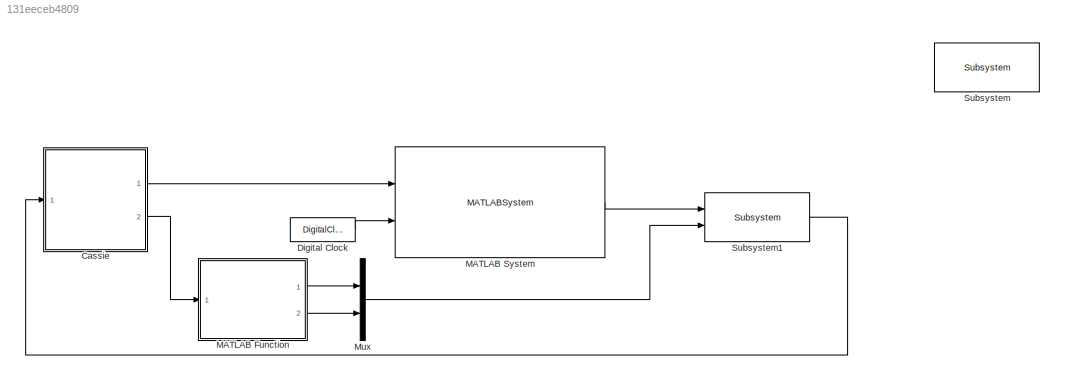
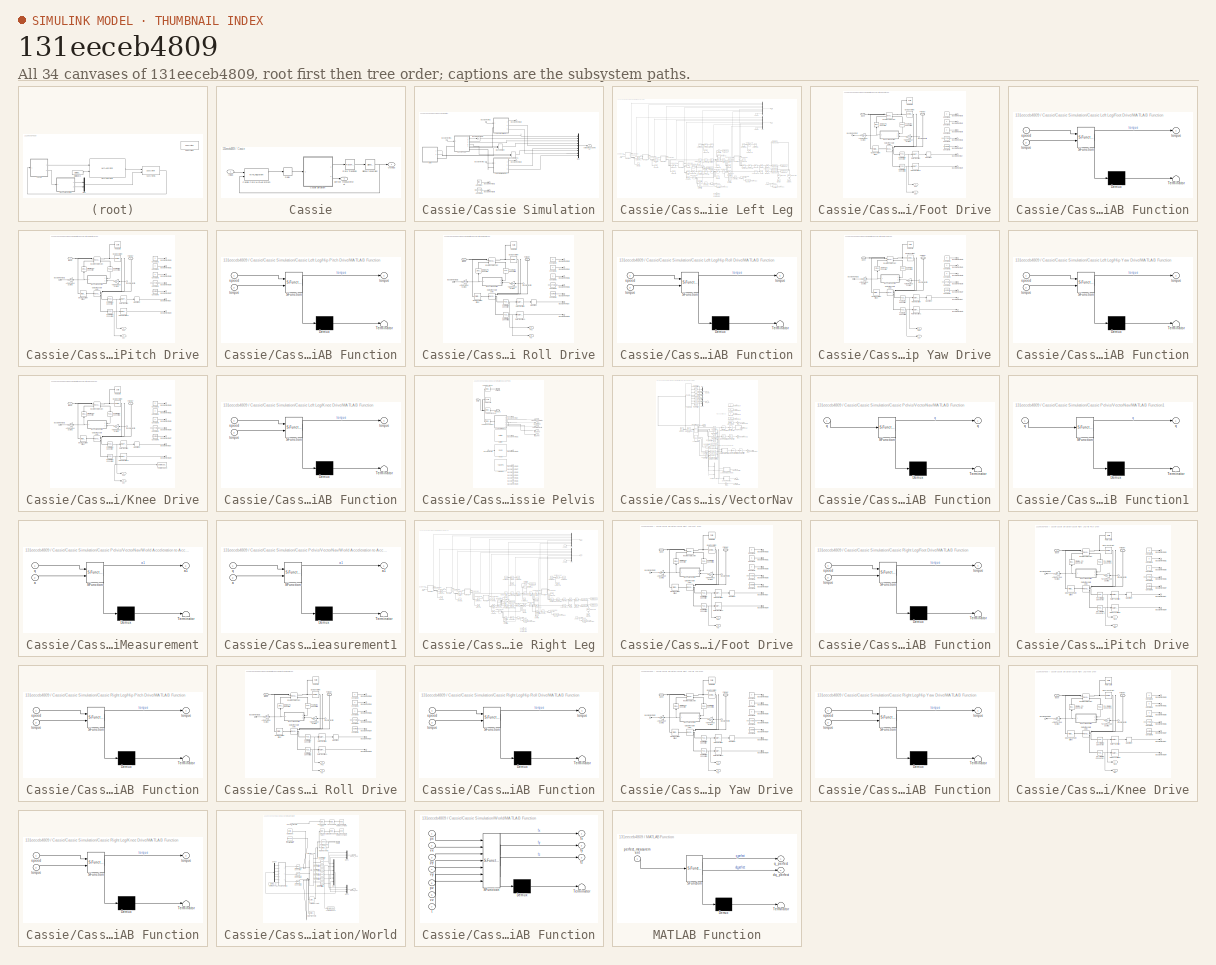
[diagram: thumbnail index - all 34 canvases of the model, root first then tree order]
MODEL slx_131eeceb4809
KIND model
CONFIG AbsTol = auto
CONFIG EnableMultiTasking = on
CONFIG FixedStep = 0.0005
CONFIG InitFcn = isSim = 1;\n\nPreFunctions.CustomInitFcn;\nPreFunctions.simulationInitFcn
CONFIG MaxStep = auto
CONFIG MinStep = auto
CONFIG RelTol = auto
CONFIG SampleTimeConstraint = Unconstrained
CONFIG Solver = ode45
CONFIG SolverName = ode45
CONFIG StartTime = 0
CONFIG StopTime = 20
BLOCK [SubSystem] Cassie
  AncestorBlock = CassieLibrary/Simulation/Cassie
  InitFcn = % Start clock at initialization (used for computing real time performance)\ninitTime = tic;\n\n% Import bus definitions\nCassieModule.importBuses;
  Ports = [1, 2]
  RequestExecContextInheritance = off
  StartFcn = % Store build time\nbuildTime = toc(initTime);
  StopFcn = % Store computation time\ncomputationTime = toc(initTime) - buildTime;\n\n% Get simulation time\nsimulationTime = get_param(bdroot, 'SimulationTime');\n\n% Compute real time performance\npercentRealTime = 100*simulationTime/computationTime;\n\n% Display\nfprintf('Build time: %0.2f seconds \n', buildTime);\nfprintf('Simulation time: %0.2f seconds \n', simulationTime);\nfprintf('Computation time: %0.2f seconds ...<+85ch>
  Variant = off
BLOCK [MATLABSystem] Cassie/Cassie Core MATLAB System
  MaskDisplay = disp('CassieCoreSim');
  MaskType = CassieCoreSim
  Ports = [2, 2]
  SimulateUsing = Code generation
  System = CassieCoreSim
BLOCK [SubSystem] Cassie/Cassie Simulation
  AncestorBlock = CassieLibrary/Simulation/Cassie Simulation
  Ports = [1, 2]
  RequestExecContextInheritance = off
  ShowPortLabels = none
  Variant = off
BLOCK [Inport] Cassie/Cassie Simulation/Bus Element In1
  IconDisplay = Port number
BLOCK [Inport] Cassie/Cassie Simulation/Bus Element In2
  IconDisplay = Port number
BLOCK [Inport] Cassie/Cassie Simulation/Bus Element In3
  IconDisplay = Port number
BLOCK [Outport] Cassie/Cassie Simulation/Bus Element Out1
  IconDisplay = Port number
BLOCK [Outport] Cassie/Cassie Simulation/Bus Element Out2
  IconDisplay = Port number
BLOCK [Outport] Cassie/Cassie Simulation/Bus Element Out3
  IconDisplay = Port number
BLOCK [Outport] Cassie/Cassie Simulation/Bus Element Out4
  IconDisplay = Port number
BLOCK [Outport] Cassie/Cassie Simulation/Bus Element Out5
  IconDisplay = Port number
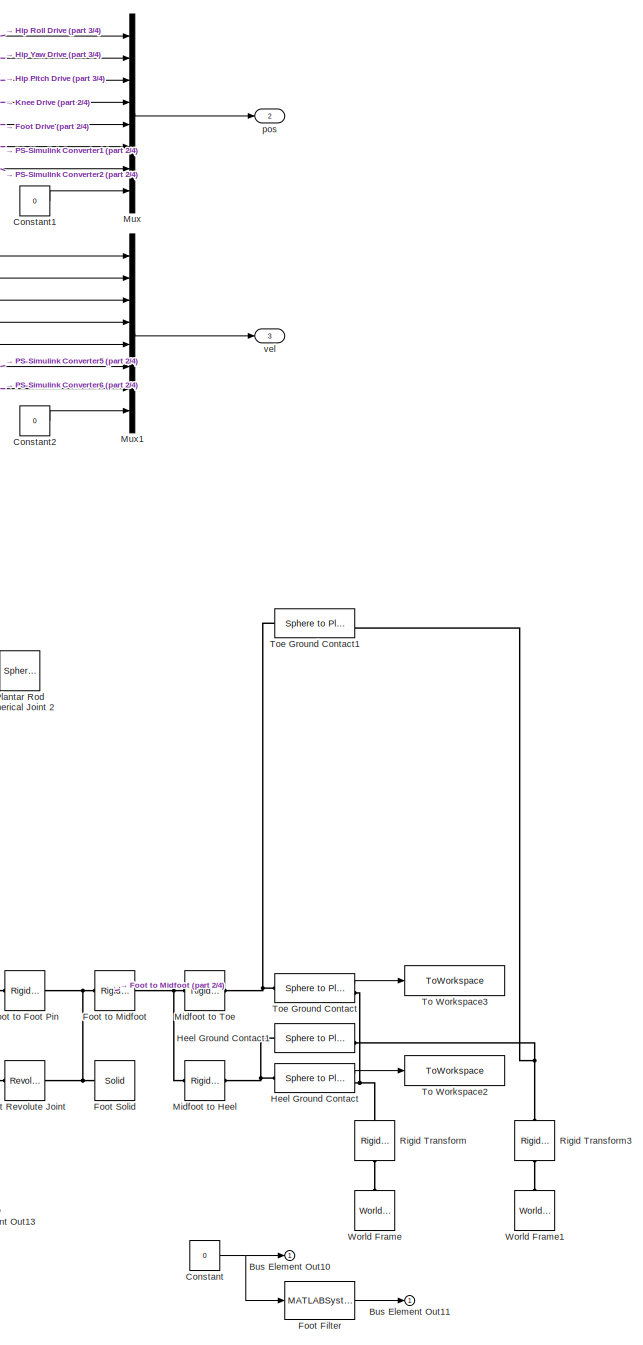
[diagram: Cassie/Cassie Simulation/Cassie Left Leg - part 1/4, right side, full height]
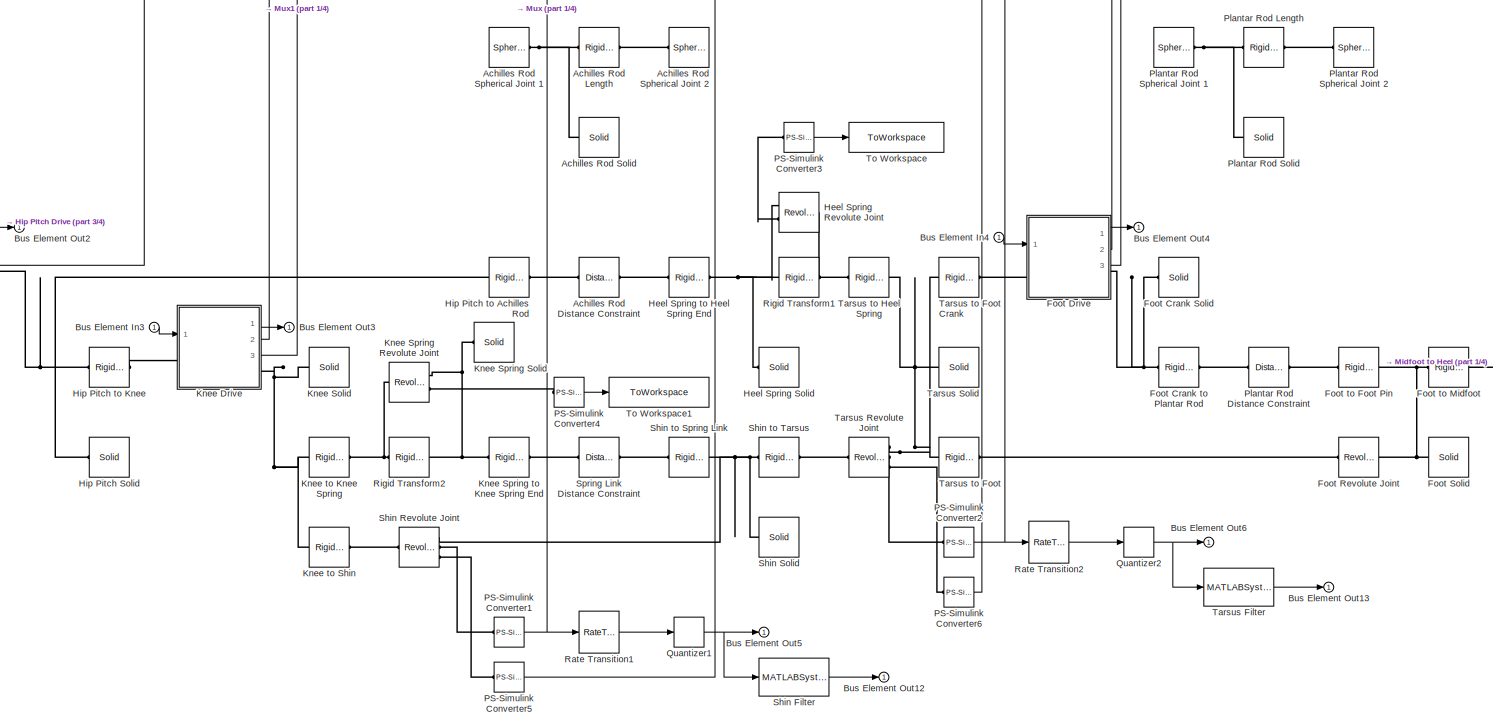
[diagram: Cassie/Cassie Simulation/Cassie Left Leg - part 2/4, bottom center region]
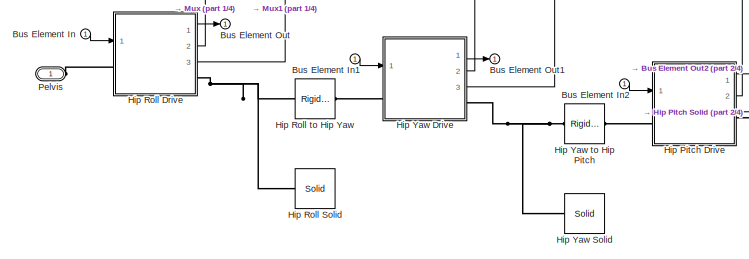
[diagram: Cassie/Cassie Simulation/Cassie Left Leg - part 3/4, middle left region]
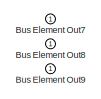
[diagram: Cassie/Cassie Simulation/Cassie Left Leg - part 4/4, bottom center region]
BLOCK [SubSystem] Cassie/Cassie Simulation/Cassie Left Leg
  AncestorBlock = CassieLibrary/Simulation/Cassie Leg
  Ports = [1, 3, 0, 0, 0, 1]
  RequestExecContextInheritance = off
  Variant = off
BLOCK [Reference] Cassie/Cassie Simulation/Cassie Left Leg/Achilles Rod Distance Constraint  REF=sm_lib/Constraints/Distance
Constraint
  Ports = [0, 0, 0, 0, 0, 1, 1]
  SourceBlock = sm_lib/Constraints/Distance\nConstraint
  SourceProductBaseCode = MS
  SourceProductName = Simscape Multibody
  SourceType = Distance\nConstraint
BLOCK [Reference] Cassie/Cassie Simulation/Cassie Left Leg/Achilles Rod Length  REF=sm_lib/Frames and
Transforms/Rigid
Transform
  Commented = on
  Ports = [0, 0, 0, 0, 0, 1, 1]
  SourceBlock = sm_lib/Frames and\nTransforms/Rigid\nTransform
  SourceProductBaseCode = MS
  SourceProductName = Simscape Multibody
  SourceType = Rigid\nTransform
BLOCK [Reference] Cassie/Cassie Simulation/Cassie Left Leg/Achilles Rod Solid  REF=sm_lib/Body Elements/Solid
  Commented = on
  Ports = [0, 0, 0, 0, 0, 0, 1]
  SourceBlock = sm_lib/Body Elements/Solid
  SourceProductBaseCode = MS
  SourceProductName = Simscape Multibody
  SourceType = Solid
BLOCK [Reference] Cassie/Cassie Simulation/Cassie Left Leg/Achilles Rod Spherical Joint 1  REF=sm_lib/Joints/Spherical
Joint
  Commented = on
  Ports = [0, 0, 0, 0, 0, 1, 1]
  SourceBlock = sm_lib/Joints/Spherical\nJoint
  SourceProductBaseCode = MS
  SourceProductName = Simscape Multibody
  SourceType = Spherical\nJoint
BLOCK [Reference] Cassie/Cassie Simulation/Cassie Left Leg/Achilles Rod Spherical Joint 2  REF=sm_lib/Joints/Spherical
Joint
  Commented = on
  Ports = [0, 0, 0, 0, 0, 1, 1]
  SourceBlock = sm_lib/Joints/Spherical\nJoint
  SourceProductBaseCode = MS
  SourceProductName = Simscape Multibody
  SourceType = Spherical\nJoint
BLOCK [Inport] Cassie/Cassie Simulation/Cassie Left Leg/Bus Element In
  IconDisplay = Port number
BLOCK [Inport] Cassie/Cassie Simulation/Cassie Left Leg/Bus Element In1
  IconDisplay = Port number
BLOCK [Inport] Cassie/Cassie Simulation/Cassie Left Leg/Bus Element In2
  IconDisplay = Port number
BLOCK [Inport] Cassie/Cassie Simulation/Cassie Left Leg/Bus Element In3
  IconDisplay = Port number
BLOCK [Inport] Cassie/Cassie Simulation/Cassie Left Leg/Bus Element In4
  IconDisplay = Port number
BLOCK [Outport] Cassie/Cassie Simulation/Cassie Left Leg/Bus Element Out
  IconDisplay = Port number
BLOCK [Outport] Cassie/Cassie Simulation/Cassie Left Leg/Bus Element Out1
  IconDisplay = Port number
BLOCK [Outport] Cassie/Cassie Simulation/Cassie Left Leg/Bus Element Out10
  IconDisplay = Port number
BLOCK [Outport] Cassie/Cassie Simulation/Cassie Left Leg/Bus Element Out11
  IconDisplay = Port number
BLOCK [Outport] Cassie/Cassie Simulation/Cassie Left Leg/Bus Element Out12
  IconDisplay = Port number
BLOCK [Outport] Cassie/Cassie Simulation/Cassie Left Leg/Bus Element Out13
  IconDisplay = Port number
BLOCK [Outport] Cassie/Cassie Simulation/Cassie Left Leg/Bus Element Out2
  IconDisplay = Port number
BLOCK [Outport] Cassie/Cassie Simulation/Cassie Left Leg/Bus Element Out3
  IconDisplay = Port number
BLOCK [Outport] Cassie/Cassie Simulation/Cassie Left Leg/Bus Element Out4
  IconDisplay = Port number
BLOCK [Outport] Cassie/Cassie Simulation/Cassie Left Leg/Bus Element Out5
  IconDisplay = Port number
BLOCK [Outport] Cassie/Cassie Simulation/Cassie Left Leg/Bus Element Out6
  IconDisplay = Port number
BLOCK [Outport] Cassie/Cassie Simulation/Cassie Left Leg/Bus Element Out7
  IconDisplay = Port number
BLOCK [Outport] Cassie/Cassie Simulation/Cassie Left Leg/Bus Element Out8
  IconDisplay = Port number
BLOCK [Outport] Cassie/Cassie Simulation/Cassie Left Leg/Bus Element Out9
  IconDisplay = Port number
BLOCK [Constant] Cassie/Cassie Simulation/Cassie Left Leg/Constant
  Value = 0
BLOCK [Constant] Cassie/Cassie Simulation/Cassie Left Leg/Constant1
  Value = 0
BLOCK [Constant] Cassie/Cassie Simulation/Cassie Left Leg/Constant2
  Value = 0
BLOCK [Reference] Cassie/Cassie Simulation/Cassie Left Leg/Foot Crank Solid  REF=sm_lib/Body Elements/Solid
  Ports = [0, 0, 0, 0, 0, 0, 1]
  SourceBlock = sm_lib/Body Elements/Solid
  SourceProductBaseCode = MS
  SourceProductName = Simscape Multibody
  SourceType = Solid
BLOCK [Reference] Cassie/Cassie Simulation/Cassie Left Leg/Foot Crank to Plantar Rod  REF=sm_lib/Frames and
Transforms/Rigid
Transform
  Ports = [0, 0, 0, 0, 0, 1, 1]
  SourceBlock = sm_lib/Frames and\nTransforms/Rigid\nTransform
  SourceProductBaseCode = MS
  SourceProductName = Simscape Multibody
  SourceType = Rigid\nTransform
BLOCK [SubSystem] Cassie/Cassie Simulation/Cassie Left Leg/Foot Drive
  AncestorBlock = ComponentLibrary/Simulation/Elmo Drive
  Ports = [1, 3, 0, 0, 0, 1, 1]
  RequestExecContextInheritance = off
  Variant = off
BLOCK [Gain] Cassie/Cassie Simulation/Cassie Left Leg/Foot Drive/Actual Torque Scaling
  Gain = -gearRatio
  OutDataTypeStr = Inherit: Inherit via internal rule
  ParamDataTypeStr = Inherit: Inherit via internal rule
  SaturateOnIntegerOverflow = off
BLOCK [PMIOPort] Cassie/Cassie Simulation/Cassie Left Leg/Foot Drive/Base
  Port = 1
  Side = Left
BLOCK [Inport] Cassie/Cassie Simulation/Cassie Left Leg/Foot Drive/Bus Element In
  IconDisplay = Port number
BLOCK [Outport] Cassie/Cassie Simulation/Cassie Left Leg/Foot Drive/Bus Element Out
  IconDisplay = Port number
BLOCK [Outport] Cassie/Cassie Simulation/Cassie Left Leg/Foot Drive/Bus Element Out1
  IconDisplay = Port number
BLOCK [Outport] Cassie/Cassie Simulation/Cassie Left Leg/Foot Drive/Bus Element Out2
  IconDisplay = Port number
BLOCK [Outport] Cassie/Cassie Simulation/Cassie Left Leg/Foot Drive/Bus Element Out3
  IconDisplay = Port number
BLOCK [Outport] Cassie/Cassie Simulation/Cassie Left Leg/Foot Drive/Bus Element Out4
  IconDisplay = Port number
BLOCK [Outport] Cassie/Cassie Simulation/Cassie Left Leg/Foot Drive/Bus Element Out5
  IconDisplay = Port number
BLOCK [Outport] Cassie/Cassie Simulation/Cassie Left Leg/Foot Drive/Bus Element Out6
  IconDisplay = Port number
BLOCK [Outport] Cassie/Cassie Simulation/Cassie Left Leg/Foot Drive/Bus Element Out7
  IconDisplay = Port number
BLOCK [Constant] Cassie/Cassie Simulation/Cassie Left Leg/Foot Drive/Constant1
  Value = 0
BLOCK [Constant] Cassie/Cassie Simulation/Cassie Left Leg/Foot Drive/Constant2
  OutDataTypeStr = uint16
  Value = 0
BLOCK [Constant] Cassie/Cassie Simulation/Cassie Left Leg/Foot Drive/Constant3
  Value = 0
BLOCK [Constant] Cassie/Cassie Simulation/Cassie Left Leg/Foot Drive/Constant4
  Value = peakTorque*gearRatio
BLOCK [Constant] Cassie/Cassie Simulation/Cassie Left Leg/Foot Drive/Constant5
  Value = gearRatio
BLOCK [PMIOPort] Cassie/Cassie Simulation/Cassie Left Leg/Foot Drive/Follower
  Port = 2
  Side = Right
BLOCK [Reference] Cassie/Cassie Simulation/Cassie Left Leg/Foot Drive/Gear Constraint  REF=sm_lib/Gears and
Couplings/Gears/Common Gear
Constraint
  Ports = [0, 0, 0, 0, 0, 1, 1]
  SourceBlock = sm_lib/Gears and\nCouplings/Gears/Common Gear\nConstraint
  SourceProductBaseCode = MS
  SourceProductName = Simscape Multibody
  SourceType = Common Gear\nConstraint
BLOCK [Reference] Cassie/Cassie Simulation/Cassie Left Leg/Foot Drive/Gear Constraint Offset  REF=sm_lib/Frames and
Transforms/Rigid
Transform
  Ports = [0, 0, 0, 0, 0, 1, 1]
  SourceBlock = sm_lib/Frames and\nTransforms/Rigid\nTransform
  SourceProductBaseCode = MS
  SourceProductName = Simscape Multibody
  SourceType = Rigid\nTransform
BLOCK [Reference] Cassie/Cassie Simulation/Cassie Left Leg/Foot Drive/Input Revolute Joint  REF=sm_lib/Joints/Revolute Joint
  Ports = [0, 0, 0, 0, 0, 2, 2]
  SourceBlock = sm_lib/Joints/Revolute Joint
  SourceProductBaseCode = MS
  SourceProductName = Simscape Multibody
  SourceType = Revolute Joint
BLOCK [SubSystem] Cassie/Cassie Simulation/Cassie Left Leg/Foot Drive/MATLAB Function
  ErrorFcn = Stateflow.Translate.translate
  PermitHierarchicalResolution = ExplicitOnly
  Ports = [2, 1]
  RequestExecContextInheritance = off
  SFBlockType = MATLAB Function
  TreatAsAtomicUnit = on
  Variant = off
BLOCK [Demux] Cassie/Cassie Simulation/Cassie Left Leg/Foot Drive/MATLAB Function/ Demux 
  Outputs = 1
  Ports = [1, 1]
BLOCK [S-Function] Cassie/Cassie Simulation/Cassie Left Leg/Foot Drive/MATLAB Function/ SFunction 
  EnableBusSupport = on
  FunctionName = sf_sfun
  Parameters = peakSpeed,peakTorque
  PortCounts = [2 2]
  Ports = [2, 2]
  SFcnIsStateOwnerBlock = off
  SFunctionDeploymentMode = off
  Tag = Stateflow S-Function FG_Simulator 8
BLOCK [Terminator] Cassie/Cassie Simulation/Cassie Left Leg/Foot Drive/MATLAB Function/ Terminator 
BLOCK [Inport] Cassie/Cassie Simulation/Cassie Left Leg/Foot Drive/MATLAB Function/speed
  IconDisplay = Port number
BLOCK [Outport] Cassie/Cassie Simulation/Cassie Left Leg/Foot Drive/MATLAB Function/torque
  IconDisplay = Port number
BLOCK [Inport] Cassie/Cassie Simulation/Cassie Left Leg/Foot Drive/MATLAB Function/torque 
  IconDisplay = Port number
  Port = 2
BLOCK [Reference] Cassie/Cassie Simulation/Cassie Left Leg/Foot Drive/Output Revolute Joint  REF=sm_lib/Joints/Revolute Joint
  Ports = [0, 0, 0, 0, 0, 1, 3]
  SourceBlock = sm_lib/Joints/Revolute Joint
  SourceProductBaseCode = MS
  SourceProductName = Simscape Multibody
  SourceType = Revolute Joint
BLOCK [Reference] Cassie/Cassie Simulation/Cassie Left Leg/Foot Drive/PS-Simulink Converter  REF=nesl_utility/PS-Simulink
Converter
  Ports = [0, 1, 0, 0, 0, 1]
  SourceBlock = nesl_utility/PS-Simulink\nConverter
  SourceProductBaseCode = SS
  SourceProductName = Simscape
  SourceType = PS-Simulink\nConverter
BLOCK [Reference] Cassie/Cassie Simulation/Cassie Left Leg/Foot Drive/PS-Simulink Converter1  REF=nesl_utility/PS-Simulink
Converter
  Ports = [0, 1, 0, 0, 0, 1]
  SourceBlock = nesl_utility/PS-Simulink\nConverter
  SourceProductBaseCode = SS
  SourceProductName = Simscape
  SourceType = PS-Simulink\nConverter
BLOCK [Reference] Cassie/Cassie Simulation/Cassie Left Leg/Foot Drive/PS-Simulink Converter2  REF=nesl_utility/PS-Simulink
Converter
  Ports = [0, 1, 0, 0, 0, 1]
  SourceBlock = nesl_utility/PS-Simulink\nConverter
  SourceProductBaseCode = SS
  SourceProductName = Simscape
  SourceType = PS-Simulink\nConverter
BLOCK [Outport] Cassie/Cassie Simulation/Cassie Left Leg/Foot Drive/Pos
  IconDisplay = Port number
  Port = 2
BLOCK [Quantizer] Cassie/Cassie Simulation/Cassie Left Leg/Foot Drive/Quantizer
  QuantizationInterval = (2*pi)/(encoderResolution*gearRatio)
BLOCK [RateTransition] Cassie/Cassie Simulation/Cassie Left Leg/Foot Drive/Rate Transition
  Deterministic = off
  InitialCondition = initialPosition
  OutPortSampleTimeOpt = Inherit
BLOCK [RateTransition] Cassie/Cassie Simulation/Cassie Left Leg/Foot Drive/Rate Transition1
  Deterministic = off
  InitialCondition = initialPosition
  OutPortSampleTimeOpt = Inherit
BLOCK [Reference] Cassie/Cassie Simulation/Cassie Left Leg/Foot Drive/Rotor Solid  REF=sm_lib/Body Elements/Solid
  Ports = [0, 0, 0, 0, 0, 0, 1]
  SourceBlock = sm_lib/Body Elements/Solid
  SourceProductBaseCode = MS
  SourceProductName = Simscape Multibody
  SourceType = Solid
BLOCK [Reference] Cassie/Cassie Simulation/Cassie Left Leg/Foot Drive/Simulink-PS Converter  REF=nesl_utility/Simulink-PS
Converter
  Ports = [1, 0, 0, 0, 0, 0, 1]
  SourceBlock = nesl_utility/Simulink-PS\nConverter
  SourceProductBaseCode = SS
  SourceProductName = Simscape
  SourceType = Simulink-PS\nConverter
BLOCK [Gain] Cassie/Cassie Simulation/Cassie Left Leg/Foot Drive/Target Torque Scaling
  Gain = -1/gearRatio
  OutDataTypeStr = Inherit: Inherit via internal rule
  ParamDataTypeStr = Inherit: Inherit via internal rule
  SaturateOnIntegerOverflow = off
BLOCK [Outport] Cassie/Cassie Simulation/Cassie Left Leg/Foot Drive/vel
  IconDisplay = Port number
  Port = 3
BLOCK [MATLABSystem] Cassie/Cassie Simulation/Cassie Left Leg/Foot Filter
  MaskDisplay = disp('Filter');
  MaskType = FilterSystem
  Ports = [1, 1]
  SimulateUsing = Code generation
  System = FilterSystem
  a = [1 -1.76575295625865 0.790448801800725]
  b = [12.3479227710395 12.3479227710395 -12.3479227710395 -12.3479227710395]
BLOCK [Reference] Cassie/Cassie Simulation/Cassie Left Leg/Foot Revolute Joint  REF=sm_lib/Joints/Revolute Joint
  Ports = [0, 0, 0, 0, 0, 1, 1]
  SourceBlock = sm_lib/Joints/Revolute Joint
  SourceProductBaseCode = MS
  SourceProductName = Simscape Multibody
  SourceType = Revolute Joint
BLOCK [Reference] Cassie/Cassie Simulation/Cassie Left Leg/Foot Solid  REF=sm_lib/Body Elements/Solid
  Ports = [0, 0, 0, 0, 0, 0, 1]
  SourceBlock = sm_lib/Body Elements/Solid
  SourceProductBaseCode = MS
  SourceProductName = Simscape Multibody
  SourceType = Solid
BLOCK [Reference] Cassie/Cassie Simulation/Cassie Left Leg/Foot to Foot Pin  REF=sm_lib/Frames and
Transforms/Rigid
Transform
  Ports = [0, 0, 0, 0, 0, 1, 1]
  SourceBlock = sm_lib/Frames and\nTransforms/Rigid\nTransform
  SourceProductBaseCode = MS
  SourceProductName = Simscape Multibody
  SourceType = Rigid\nTransform
BLOCK [Reference] Cassie/Cassie Simulation/Cassie Left Leg/Foot to Midfoot  REF=sm_lib/Frames and
Transforms/Rigid
Transform
  Ports = [0, 0, 0, 0, 0, 1, 1]
  SourceBlock = sm_lib/Frames and\nTransforms/Rigid\nTransform
  SourceProductBaseCode = MS
  SourceProductName = Simscape Multibody
  SourceType = Rigid\nTransform
BLOCK [Reference] Cassie/Cassie Simulation/Cassie Left Leg/Heel Ground Contact  REF=Contact_Forces_Lib/3D/Sphere to Plane Force
  Ports = [0, 1, 0, 0, 0, 1, 1]
  SourceBlock = Contact_Forces_Lib/3D/Sphere to Plane Force
  SourceProductName = Simscape Multibody Contact Forces Library
  SourceType = Sphere to Plane Force
BLOCK [Reference] Cassie/Cassie Simulation/Cassie Left Leg/Heel Ground Contact1  REF=Contact_Forces_Lib/3D/Sphere to Plane Force
  Commented = on
  Ports = [0, 1, 0, 0, 0, 1, 1]
  SourceBlock = Contact_Forces_Lib/3D/Sphere to Plane Force
  SourceProductName = Simscape Multibody Contact Forces Library
  SourceType = Sphere to Plane Force
BLOCK [Reference] Cassie/Cassie Simulation/Cassie Left Leg/Heel Spring Revolute Joint  REF=sm_lib/Joints/Revolute Joint
  Ports = [0, 0, 0, 0, 0, 1, 2]
  SourceBlock = sm_lib/Joints/Revolute Joint
  SourceProductBaseCode = MS
  SourceProductName = Simscape Multibody
  SourceType = Revolute Joint
BLOCK [Reference] Cassie/Cassie Simulation/Cassie Left Leg/Heel Spring Solid  REF=sm_lib/Body Elements/Solid
  Ports = [0, 0, 0, 0, 0, 0, 1]
  SourceBlock = sm_lib/Body Elements/Solid
  SourceProductBaseCode = MS
  SourceProductName = Simscape Multibody
  SourceType = Solid
BLOCK [Reference] Cassie/Cassie Simulation/Cassie Left Leg/Heel Spring to Heel Spring End  REF=sm_lib/Frames and
Transforms/Rigid
Transform
  Ports = [0, 0, 0, 0, 0, 1, 1]
  SourceBlock = sm_lib/Frames and\nTransforms/Rigid\nTransform
  SourceProductBaseCode = MS
  SourceProductName = Simscape Multibody
  SourceType = Rigid\nTransform
BLOCK [SubSystem] Cassie/Cassie Simulation/Cassie Left Leg/Hip Pitch Drive
  AncestorBlock = ComponentLibrary/Simulation/Elmo Drive
  Ports = [1, 3, 0, 0, 0, 1, 1]
  RequestExecContextInheritance = off
  Variant = off
BLOCK [Gain] Cassie/Cassie Simulation/Cassie Left Leg/Hip Pitch Drive/Actual Torque Scaling
  Gain = -gearRatio
  OutDataTypeStr = Inherit: Inherit via internal rule
  ParamDataTypeStr = Inherit: Inherit via internal rule
  SaturateOnIntegerOverflow = off
BLOCK [PMIOPort] Cassie/Cassie Simulation/Cassie Left Leg/Hip Pitch Drive/Base
  Port = 1
  Side = Left
BLOCK [Inport] Cassie/Cassie Simulation/Cassie Left Leg/Hip Pitch Drive/Bus Element In
  IconDisplay = Port number
BLOCK [Outport] Cassie/Cassie Simulation/Cassie Left Leg/Hip Pitch Drive/Bus Element Out
  IconDisplay = Port number
BLOCK [Outport] Cassie/Cassie Simulation/Cassie Left Leg/Hip Pitch Drive/Bus Element Out1
  IconDisplay = Port number
BLOCK [Outport] Cassie/Cassie Simulation/Cassie Left Leg/Hip Pitch Drive/Bus Element Out2
  IconDisplay = Port number
BLOCK [Outport] Cassie/Cassie Simulation/Cassie Left Leg/Hip Pitch Drive/Bus Element Out3
  IconDisplay = Port number
BLOCK [Outport] Cassie/Cassie Simulation/Cassie Left Leg/Hip Pitch Drive/Bus Element Out4
  IconDisplay = Port number
BLOCK [Outport] Cassie/Cassie Simulation/Cassie Left Leg/Hip Pitch Drive/Bus Element Out5
  IconDisplay = Port number
BLOCK [Outport] Cassie/Cassie Simulation/Cassie Left Leg/Hip Pitch Drive/Bus Element Out6
  IconDisplay = Port number
BLOCK [Outport] Cassie/Cassie Simulation/Cassie Left Leg/Hip Pitch Drive/Bus Element Out7
  IconDisplay = Port number
BLOCK [Constant] Cassie/Cassie Simulation/Cassie Left Leg/Hip Pitch Drive/Constant1
  Value = 0
BLOCK [Constant] Cassie/Cassie Simulation/Cassie Left Leg/Hip Pitch Drive/Constant2
  OutDataTypeStr = uint16
  Value = 0
BLOCK [Constant] Cassie/Cassie Simulation/Cassie Left Leg/Hip Pitch Drive/Constant3
  Value = 0
BLOCK [Constant] Cassie/Cassie Simulation/Cassie Left Leg/Hip Pitch Drive/Constant4
  Value = peakTorque*gearRatio
BLOCK [Constant] Cassie/Cassie Simulation/Cassie Left Leg/Hip Pitch Drive/Constant5
  Value = gearRatio
BLOCK [PMIOPort] Cassie/Cassie Simulation/Cassie Left Leg/Hip Pitch Drive/Follower
  Port = 2
  Side = Right
BLOCK [Reference] Cassie/Cassie Simulation/Cassie Left Leg/Hip Pitch Drive/Gear Constraint  REF=sm_lib/Gears and
Couplings/Gears/Common Gear
Constraint
  Ports = [0, 0, 0, 0, 0, 1, 1]
  SourceBlock = sm_lib/Gears and\nCouplings/Gears/Common Gear\nConstraint
  SourceProductBaseCode = MS
  SourceProductName = Simscape Multibody
  SourceType = Common Gear\nConstraint
BLOCK [Reference] Cassie/Cassie Simulation/Cassie Left Leg/Hip Pitch Drive/Gear Constraint Offset  REF=sm_lib/Frames and
Transforms/Rigid
Transform
  Ports = [0, 0, 0, 0, 0, 1, 1]
  SourceBlock = sm_lib/Frames and\nTransforms/Rigid\nTransform
  SourceProductBaseCode = MS
  SourceProductName = Simscape Multibody
  SourceType = Rigid\nTransform
BLOCK [Reference] Cassie/Cassie Simulation/Cassie Left Leg/Hip Pitch Drive/Input Revolute Joint  REF=sm_lib/Joints/Revolute Joint
  Ports = [0, 0, 0, 0, 0, 2, 2]
  SourceBlock = sm_lib/Joints/Revolute Joint
  SourceProductBaseCode = MS
  SourceProductName = Simscape Multibody
  SourceType = Revolute Joint
BLOCK [SubSystem] Cassie/Cassie Simulation/Cassie Left Leg/Hip Pitch Drive/MATLAB Function
  ErrorFcn = Stateflow.Translate.translate
  PermitHierarchicalResolution = ExplicitOnly
  Ports = [2, 1]
  RequestExecContextInheritance = off
  SFBlockType = MATLAB Function
  TreatAsAtomicUnit = on
  Variant = off
BLOCK [Demux] Cassie/Cassie Simulation/Cassie Left Leg/Hip Pitch Drive/MATLAB Function/ Demux 
  Outputs = 1
  Ports = [1, 1]
BLOCK [S-Function] Cassie/Cassie Simulation/Cassie Left Leg/Hip Pitch Drive/MATLAB Function/ SFunction 
  EnableBusSupport = on
  FunctionName = sf_sfun
  Parameters = peakSpeed,peakTorque
  PortCounts = [2 2]
  Ports = [2, 2]
  SFcnIsStateOwnerBlock = off
  SFunctionDeploymentMode = off
  Tag = Stateflow S-Function FG_Simulator 6
BLOCK [Terminator] Cassie/Cassie Simulation/Cassie Left Leg/Hip Pitch Drive/MATLAB Function/ Terminator 
BLOCK [Inport] Cassie/Cassie Simulation/Cassie Left Leg/Hip Pitch Drive/MATLAB Function/speed
  IconDisplay = Port number
BLOCK [Outport] Cassie/Cassie Simulation/Cassie Left Leg/Hip Pitch Drive/MATLAB Function/torque
  IconDisplay = Port number
BLOCK [Inport] Cassie/Cassie Simulation/Cassie Left Leg/Hip Pitch Drive/MATLAB Function/torque 
  IconDisplay = Port number
  Port = 2
BLOCK [Reference] Cassie/Cassie Simulation/Cassie Left Leg/Hip Pitch Drive/Output Revolute Joint  REF=sm_lib/Joints/Revolute Joint
  Ports = [0, 0, 0, 0, 0, 1, 3]
  SourceBlock = sm_lib/Joints/Revolute Joint
  SourceProductBaseCode = MS
  SourceProductName = Simscape Multibody
  SourceType = Revolute Joint
BLOCK [Reference] Cassie/Cassie Simulation/Cassie Left Leg/Hip Pitch Drive/PS-Simulink Converter  REF=nesl_utility/PS-Simulink
Converter
  Ports = [0, 1, 0, 0, 0, 1]
  SourceBlock = nesl_utility/PS-Simulink\nConverter
  SourceProductBaseCode = SS
  SourceProductName = Simscape
  SourceType = PS-Simulink\nConverter
BLOCK [Reference] Cassie/Cassie Simulation/Cassie Left Leg/Hip Pitch Drive/PS-Simulink Converter1  REF=nesl_utility/PS-Simulink
Converter
  Ports = [0, 1, 0, 0, 0, 1]
  SourceBlock = nesl_utility/PS-Simulink\nConverter
  SourceProductBaseCode = SS
  SourceProductName = Simscape
  SourceType = PS-Simulink\nConverter
BLOCK [Reference] Cassie/Cassie Simulation/Cassie Left Leg/Hip Pitch Drive/PS-Simulink Converter2  REF=nesl_utility/PS-Simulink
Converter
  Ports = [0, 1, 0, 0, 0, 1]
  SourceBlock = nesl_utility/PS-Simulink\nConverter
  SourceProductBaseCode = SS
  SourceProductName = Simscape
  SourceType = PS-Simulink\nConverter
BLOCK [Outport] Cassie/Cassie Simulation/Cassie Left Leg/Hip Pitch Drive/Pos
  IconDisplay = Port number
  Port = 2
BLOCK [Quantizer] Cassie/Cassie Simulation/Cassie Left Leg/Hip Pitch Drive/Quantizer
  QuantizationInterval = (2*pi)/(encoderResolution*gearRatio)
BLOCK [RateTransition] Cassie/Cassie Simulation/Cassie Left Leg/Hip Pitch Drive/Rate Transition
  Deterministic = off
  InitialCondition = initialPosition
  OutPortSampleTimeOpt = Inherit
BLOCK [RateTransition] Cassie/Cassie Simulation/Cassie Left Leg/Hip Pitch Drive/Rate Transition1
  Deterministic = off
  InitialCondition = initialPosition
  OutPortSampleTimeOpt = Inherit
BLOCK [Reference] Cassie/Cassie Simulation/Cassie Left Leg/Hip Pitch Drive/Rotor Solid  REF=sm_lib/Body Elements/Solid
  Ports = [0, 0, 0, 0, 0, 0, 1]
  SourceBlock = sm_lib/Body Elements/Solid
  SourceProductBaseCode = MS
  SourceProductName = Simscape Multibody
  SourceType = Solid
BLOCK [Reference] Cassie/Cassie Simulation/Cassie Left Leg/Hip Pitch Drive/Simulink-PS Converter  REF=nesl_utility/Simulink-PS
Converter
  Ports = [1, 0, 0, 0, 0, 0, 1]
  SourceBlock = nesl_utility/Simulink-PS\nConverter
  SourceProductBaseCode = SS
  SourceProductName = Simscape
  SourceType = Simulink-PS\nConverter
BLOCK [Gain] Cassie/Cassie Simulation/Cassie Left Leg/Hip Pitch Drive/Target Torque Scaling
  Gain = -1/gearRatio
  OutDataTypeStr = Inherit: Inherit via internal rule
  ParamDataTypeStr = Inherit: Inherit via internal rule
  SaturateOnIntegerOverflow = off
BLOCK [Outport] Cassie/Cassie Simulation/Cassie Left Leg/Hip Pitch Drive/vel
  IconDisplay = Port number
  Port = 3
BLOCK [Reference] Cassie/Cassie Simulation/Cassie Left Leg/Hip Pitch Solid  REF=sm_lib/Body Elements/Solid
  Ports = [0, 0, 0, 0, 0, 0, 1]
  SourceBlock = sm_lib/Body Elements/Solid
  SourceProductBaseCode = MS
  SourceProductName = Simscape Multibody
  SourceType = Solid
BLOCK [Reference] Cassie/Cassie Simulation/Cassie Left Leg/Hip Pitch to Achilles Rod  REF=sm_lib/Frames and
Transforms/Rigid
Transform
  Ports = [0, 0, 0, 0, 0, 1, 1]
  SourceBlock = sm_lib/Frames and\nTransforms/Rigid\nTransform
  SourceProductBaseCode = MS
  SourceProductName = Simscape Multibody
  SourceType = Rigid\nTransform
BLOCK [Reference] Cassie/Cassie Simulation/Cassie Left Leg/Hip Pitch to Knee  REF=sm_lib/Frames and
Transforms/Rigid
Transform
  Ports = [0, 0, 0, 0, 0, 1, 1]
  SourceBlock = sm_lib/Frames and\nTransforms/Rigid\nTransform
  SourceProductBaseCode = MS
  SourceProductName = Simscape Multibody
  SourceType = Rigid\nTransform
BLOCK [SubSystem] Cassie/Cassie Simulation/Cassie Left Leg/Hip Roll Drive
  AncestorBlock = ComponentLibrary/Simulation/Elmo Drive
  Ports = [1, 3, 0, 0, 0, 1, 1]
  RequestExecContextInheritance = off
  Variant = off
BLOCK [Gain] Cassie/Cassie Simulation/Cassie Left Leg/Hip Roll Drive/Actual Torque Scaling
  Gain = -gearRatio
  OutDataTypeStr = Inherit: Inherit via internal rule
  ParamDataTypeStr = Inherit: Inherit via internal rule
  SaturateOnIntegerOverflow = off
BLOCK [PMIOPort] Cassie/Cassie Simulation/Cassie Left Leg/Hip Roll Drive/Base
  Port = 1
  Side = Left
BLOCK [Inport] Cassie/Cassie Simulation/Cassie Left Leg/Hip Roll Drive/Bus Element In
  IconDisplay = Port number
BLOCK [Outport] Cassie/Cassie Simulation/Cassie Left Leg/Hip Roll Drive/Bus Element Out
  IconDisplay = Port number
BLOCK [Outport] Cassie/Cassie Simulation/Cassie Left Leg/Hip Roll Drive/Bus Element Out1
  IconDisplay = Port number
BLOCK [Outport] Cassie/Cassie Simulation/Cassie Left Leg/Hip Roll Drive/Bus Element Out2
  IconDisplay = Port number
BLOCK [Outport] Cassie/Cassie Simulation/Cassie Left Leg/Hip Roll Drive/Bus Element Out3
  IconDisplay = Port number
BLOCK [Outport] Cassie/Cassie Simulation/Cassie Left Leg/Hip Roll Drive/Bus Element Out4
  IconDisplay = Port number
BLOCK [Outport] Cassie/Cassie Simulation/Cassie Left Leg/Hip Roll Drive/Bus Element Out5
  IconDisplay = Port number
BLOCK [Outport] Cassie/Cassie Simulation/Cassie Left Leg/Hip Roll Drive/Bus Element Out6
  IconDisplay = Port number
BLOCK [Outport] Cassie/Cassie Simulation/Cassie Left Leg/Hip Roll Drive/Bus Element Out7
  IconDisplay = Port number
BLOCK [Constant] Cassie/Cassie Simulation/Cassie Left Leg/Hip Roll Drive/Constant1
  Value = 0
BLOCK [Constant] Cassie/Cassie Simulation/Cassie Left Leg/Hip Roll Drive/Constant2
  OutDataTypeStr = uint16
  Value = 0
BLOCK [Constant] Cassie/Cassie Simulation/Cassie Left Leg/Hip Roll Drive/Constant3
  Value = 0
BLOCK [Constant] Cassie/Cassie Simulation/Cassie Left Leg/Hip Roll Drive/Constant4
  Value = peakTorque*gearRatio
BLOCK [Constant] Cassie/Cassie Simulation/Cassie Left Leg/Hip Roll Drive/Constant5
  Value = gearRatio
BLOCK [PMIOPort] Cassie/Cassie Simulation/Cassie Left Leg/Hip Roll Drive/Follower
  Port = 2
  Side = Right
BLOCK [Reference] Cassie/Cassie Simulation/Cassie Left Leg/Hip Roll Drive/Gear Constraint  REF=sm_lib/Gears and
Couplings/Gears/Common Gear
Constraint
  Ports = [0, 0, 0, 0, 0, 1, 1]
  SourceBlock = sm_lib/Gears and\nCouplings/Gears/Common Gear\nConstraint
  SourceProductBaseCode = MS
  SourceProductName = Simscape Multibody
  SourceType = Common Gear\nConstraint
BLOCK [Reference] Cassie/Cassie Simulation/Cassie Left Leg/Hip Roll Drive/Gear Constraint Offset  REF=sm_lib/Frames and
Transforms/Rigid
Transform
  Ports = [0, 0, 0, 0, 0, 1, 1]
  SourceBlock = sm_lib/Frames and\nTransforms/Rigid\nTransform
  SourceProductBaseCode = MS
  SourceProductName = Simscape Multibody
  SourceType = Rigid\nTransform
BLOCK [Reference] Cassie/Cassie Simulation/Cassie Left Leg/Hip Roll Drive/Input Revolute Joint  REF=sm_lib/Joints/Revolute Joint
  Ports = [0, 0, 0, 0, 0, 2, 2]
  SourceBlock = sm_lib/Joints/Revolute Joint
  SourceProductBaseCode = MS
  SourceProductName = Simscape Multibody
  SourceType = Revolute Joint
BLOCK [SubSystem] Cassie/Cassie Simulation/Cassie Left Leg/Hip Roll Drive/MATLAB Function
  ErrorFcn = Stateflow.Translate.translate
  PermitHierarchicalResolution = ExplicitOnly
  Ports = [2, 1]
  RequestExecContextInheritance = off
  SFBlockType = MATLAB Function
  TreatAsAtomicUnit = on
  Variant = off
BLOCK [Demux] Cassie/Cassie Simulation/Cassie Left Leg/Hip Roll Drive/MATLAB Function/ Demux 
  Outputs = 1
  Ports = [1, 1]
BLOCK [S-Function] Cassie/Cassie Simulation/Cassie Left Leg/Hip Roll Drive/MATLAB Function/ SFunction 
  EnableBusSupport = on
  FunctionName = sf_sfun
  Parameters = peakSpeed,peakTorque
  PortCounts = [2 2]
  Ports = [2, 2]
  SFcnIsStateOwnerBlock = off
  SFunctionDeploymentMode = off
  Tag = Stateflow S-Function FG_Simulator 4
BLOCK [Terminator] Cassie/Cassie Simulation/Cassie Left Leg/Hip Roll Drive/MATLAB Function/ Terminator 
BLOCK [Inport] Cassie/Cassie Simulation/Cassie Left Leg/Hip Roll Drive/MATLAB Function/speed
  IconDisplay = Port number
BLOCK [Outport] Cassie/Cassie Simulation/Cassie Left Leg/Hip Roll Drive/MATLAB Function/torque
  IconDisplay = Port number
BLOCK [Inport] Cassie/Cassie Simulation/Cassie Left Leg/Hip Roll Drive/MATLAB Function/torque 
  IconDisplay = Port number
  Port = 2
BLOCK [Reference] Cassie/Cassie Simulation/Cassie Left Leg/Hip Roll Drive/Output Revolute Joint  REF=sm_lib/Joints/Revolute Joint
  Ports = [0, 0, 0, 0, 0, 1, 3]
  SourceBlock = sm_lib/Joints/Revolute Joint
  SourceProductBaseCode = MS
  SourceProductName = Simscape Multibody
  SourceType = Revolute Joint
BLOCK [Reference] Cassie/Cassie Simulation/Cassie Left Leg/Hip Roll Drive/PS-Simulink Converter  REF=nesl_utility/PS-Simulink
Converter
  Ports = [0, 1, 0, 0, 0, 1]
  SourceBlock = nesl_utility/PS-Simulink\nConverter
  SourceProductBaseCode = SS
  SourceProductName = Simscape
  SourceType = PS-Simulink\nConverter
BLOCK [Reference] Cassie/Cassie Simulation/Cassie Left Leg/Hip Roll Drive/PS-Simulink Converter1  REF=nesl_utility/PS-Simulink
Converter
  Ports = [0, 1, 0, 0, 0, 1]
  SourceBlock = nesl_utility/PS-Simulink\nConverter
  SourceProductBaseCode = SS
  SourceProductName = Simscape
  SourceType = PS-Simulink\nConverter
BLOCK [Reference] Cassie/Cassie Simulation/Cassie Left Leg/Hip Roll Drive/PS-Simulink Converter2  REF=nesl_utility/PS-Simulink
Converter
  Ports = [0, 1, 0, 0, 0, 1]
  SourceBlock = nesl_utility/PS-Simulink\nConverter
  SourceProductBaseCode = SS
  SourceProductName = Simscape
  SourceType = PS-Simulink\nConverter
BLOCK [Outport] Cassie/Cassie Simulation/Cassie Left Leg/Hip Roll Drive/Pos
  IconDisplay = Port number
  Port = 2
BLOCK [Quantizer] Cassie/Cassie Simulation/Cassie Left Leg/Hip Roll Drive/Quantizer
  QuantizationInterval = (2*pi)/(encoderResolution*gearRatio)
BLOCK [RateTransition] Cassie/Cassie Simulation/Cassie Left Leg/Hip Roll Drive/Rate Transition
  Deterministic = off
  InitialCondition = initialPosition
  OutPortSampleTimeOpt = Inherit
BLOCK [RateTransition] Cassie/Cassie Simulation/Cassie Left Leg/Hip Roll Drive/Rate Transition1
  Deterministic = off
  InitialCondition = initialPosition
  OutPortSampleTimeOpt = Inherit
BLOCK [Reference] Cassie/Cassie Simulation/Cassie Left Leg/Hip Roll Drive/Rotor Solid  REF=sm_lib/Body Elements/Solid
  Ports = [0, 0, 0, 0, 0, 0, 1]
  SourceBlock = sm_lib/Body Elements/Solid
  SourceProductBaseCode = MS
  SourceProductName = Simscape Multibody
  SourceType = Solid
BLOCK [Reference] Cassie/Cassie Simulation/Cassie Left Leg/Hip Roll Drive/Simulink-PS Converter  REF=nesl_utility/Simulink-PS
Converter
  Ports = [1, 0, 0, 0, 0, 0, 1]
  SourceBlock = nesl_utility/Simulink-PS\nConverter
  SourceProductBaseCode = SS
  SourceProductName = Simscape
  SourceType = Simulink-PS\nConverter
BLOCK [Gain] Cassie/Cassie Simulation/Cassie Left Leg/Hip Roll Drive/Target Torque Scaling
  Gain = -1/gearRatio
  OutDataTypeStr = Inherit: Inherit via internal rule
  ParamDataTypeStr = Inherit: Inherit via internal rule
  SaturateOnIntegerOverflow = off
BLOCK [Outport] Cassie/Cassie Simulation/Cassie Left Leg/Hip Roll Drive/vel
  IconDisplay = Port number
  Port = 3
BLOCK [Reference] Cassie/Cassie Simulation/Cassie Left Leg/Hip Roll Solid  REF=sm_lib/Body Elements/Solid
  Ports = [0, 0, 0, 0, 0, 0, 1]
  SourceBlock = sm_lib/Body Elements/Solid
  SourceProductBaseCode = MS
  SourceProductName = Simscape Multibody
  SourceType = Solid
BLOCK [Reference] Cassie/Cassie Simulation/Cassie Left Leg/Hip Roll to Hip Yaw  REF=sm_lib/Frames and
Transforms/Rigid
Transform
  Ports = [0, 0, 0, 0, 0, 1, 1]
  SourceBlock = sm_lib/Frames and\nTransforms/Rigid\nTransform
  SourceProductBaseCode = MS
  SourceProductName = Simscape Multibody
  SourceType = Rigid\nTransform
BLOCK [SubSystem] Cassie/Cassie Simulation/Cassie Left Leg/Hip Yaw Drive
  AncestorBlock = ComponentLibrary/Simulation/Elmo Drive
  Ports = [1, 3, 0, 0, 0, 1, 1]
  RequestExecContextInheritance = off
  Variant = off
BLOCK [Gain] Cassie/Cassie Simulation/Cassie Left Leg/Hip Yaw Drive/Actual Torque Scaling
  Gain = -gearRatio
  OutDataTypeStr = Inherit: Inherit via internal rule
  ParamDataTypeStr = Inherit: Inherit via internal rule
  SaturateOnIntegerOverflow = off
BLOCK [PMIOPort] Cassie/Cassie Simulation/Cassie Left Leg/Hip Yaw Drive/Base
  Port = 1
  Side = Left
BLOCK [Inport] Cassie/Cassie Simulation/Cassie Left Leg/Hip Yaw Drive/Bus Element In
  IconDisplay = Port number
BLOCK [Outport] Cassie/Cassie Simulation/Cassie Left Leg/Hip Yaw Drive/Bus Element Out
  IconDisplay = Port number
BLOCK [Outport] Cassie/Cassie Simulation/Cassie Left Leg/Hip Yaw Drive/Bus Element Out1
  IconDisplay = Port number
BLOCK [Outport] Cassie/Cassie Simulation/Cassie Left Leg/Hip Yaw Drive/Bus Element Out2
  IconDisplay = Port number
BLOCK [Outport] Cassie/Cassie Simulation/Cassie Left Leg/Hip Yaw Drive/Bus Element Out3
  IconDisplay = Port number
BLOCK [Outport] Cassie/Cassie Simulation/Cassie Left Leg/Hip Yaw Drive/Bus Element Out4
  IconDisplay = Port number
BLOCK [Outport] Cassie/Cassie Simulation/Cassie Left Leg/Hip Yaw Drive/Bus Element Out5
  IconDisplay = Port number
BLOCK [Outport] Cassie/Cassie Simulation/Cassie Left Leg/Hip Yaw Drive/Bus Element Out6
  IconDisplay = Port number
BLOCK [Outport] Cassie/Cassie Simulation/Cassie Left Leg/Hip Yaw Drive/Bus Element Out7
  IconDisplay = Port number
BLOCK [Constant] Cassie/Cassie Simulation/Cassie Left Leg/Hip Yaw Drive/Constant1
  Value = 0
BLOCK [Constant] Cassie/Cassie Simulation/Cassie Left Leg/Hip Yaw Drive/Constant2
  OutDataTypeStr = uint16
  Value = 0
BLOCK [Constant] Cassie/Cassie Simulation/Cassie Left Leg/Hip Yaw Drive/Constant3
  Value = 0
BLOCK [Constant] Cassie/Cassie Simulation/Cassie Left Leg/Hip Yaw Drive/Constant4
  Value = peakTorque*gearRatio
BLOCK [Constant] Cassie/Cassie Simulation/Cassie Left Leg/Hip Yaw Drive/Constant5
  Value = gearRatio
BLOCK [PMIOPort] Cassie/Cassie Simulation/Cassie Left Leg/Hip Yaw Drive/Follower
  Port = 2
  Side = Right
BLOCK [Reference] Cassie/Cassie Simulation/Cassie Left Leg/Hip Yaw Drive/Gear Constraint  REF=sm_lib/Gears and
Couplings/Gears/Common Gear
Constraint
  Ports = [0, 0, 0, 0, 0, 1, 1]
  SourceBlock = sm_lib/Gears and\nCouplings/Gears/Common Gear\nConstraint
  SourceProductBaseCode = MS
  SourceProductName = Simscape Multibody
  SourceType = Common Gear\nConstraint
BLOCK [Reference] Cassie/Cassie Simulation/Cassie Left Leg/Hip Yaw Drive/Gear Constraint Offset  REF=sm_lib/Frames and
Transforms/Rigid
Transform
  Ports = [0, 0, 0, 0, 0, 1, 1]
  SourceBlock = sm_lib/Frames and\nTransforms/Rigid\nTransform
  SourceProductBaseCode = MS
  SourceProductName = Simscape Multibody
  SourceType = Rigid\nTransform
BLOCK [Reference] Cassie/Cassie Simulation/Cassie Left Leg/Hip Yaw Drive/Input Revolute Joint  REF=sm_lib/Joints/Revolute Joint
  Ports = [0, 0, 0, 0, 0, 2, 2]
  SourceBlock = sm_lib/Joints/Revolute Joint
  SourceProductBaseCode = MS
  SourceProductName = Simscape Multibody
  SourceType = Revolute Joint
BLOCK [SubSystem] Cassie/Cassie Simulation/Cassie Left Leg/Hip Yaw Drive/MATLAB Function
  ErrorFcn = Stateflow.Translate.translate
  PermitHierarchicalResolution = ExplicitOnly
  Ports = [2, 1]
  RequestExecContextInheritance = off
  SFBlockType = MATLAB Function
  TreatAsAtomicUnit = on
  Variant = off
BLOCK [Demux] Cassie/Cassie Simulation/Cassie Left Leg/Hip Yaw Drive/MATLAB Function/ Demux 
  Outputs = 1
  Ports = [1, 1]
BLOCK [S-Function] Cassie/Cassie Simulation/Cassie Left Leg/Hip Yaw Drive/MATLAB Function/ SFunction 
  EnableBusSupport = on
  FunctionName = sf_sfun
  Parameters = peakSpeed,peakTorque
  PortCounts = [2 2]
  Ports = [2, 2]
  SFcnIsStateOwnerBlock = off
  SFunctionDeploymentMode = off
  Tag = Stateflow S-Function FG_Simulator 5
BLOCK [Terminator] Cassie/Cassie Simulation/Cassie Left Leg/Hip Yaw Drive/MATLAB Function/ Terminator 
BLOCK [Inport] Cassie/Cassie Simulation/Cassie Left Leg/Hip Yaw Drive/MATLAB Function/speed
  IconDisplay = Port number
BLOCK [Outport] Cassie/Cassie Simulation/Cassie Left Leg/Hip Yaw Drive/MATLAB Function/torque
  IconDisplay = Port number
BLOCK [Inport] Cassie/Cassie Simulation/Cassie Left Leg/Hip Yaw Drive/MATLAB Function/torque 
  IconDisplay = Port number
  Port = 2
BLOCK [Reference] Cassie/Cassie Simulation/Cassie Left Leg/Hip Yaw Drive/Output Revolute Joint  REF=sm_lib/Joints/Revolute Joint
  Ports = [0, 0, 0, 0, 0, 1, 3]
  SourceBlock = sm_lib/Joints/Revolute Joint
  SourceProductBaseCode = MS
  SourceProductName = Simscape Multibody
  SourceType = Revolute Joint
BLOCK [Reference] Cassie/Cassie Simulation/Cassie Left Leg/Hip Yaw Drive/PS-Simulink Converter  REF=nesl_utility/PS-Simulink
Converter
  Ports = [0, 1, 0, 0, 0, 1]
  SourceBlock = nesl_utility/PS-Simulink\nConverter
  SourceProductBaseCode = SS
  SourceProductName = Simscape
  SourceType = PS-Simulink\nConverter
BLOCK [Reference] Cassie/Cassie Simulation/Cassie Left Leg/Hip Yaw Drive/PS-Simulink Converter1  REF=nesl_utility/PS-Simulink
Converter
  Ports = [0, 1, 0, 0, 0, 1]
  SourceBlock = nesl_utility/PS-Simulink\nConverter
  SourceProductBaseCode = SS
  SourceProductName = Simscape
  SourceType = PS-Simulink\nConverter
BLOCK [Reference] Cassie/Cassie Simulation/Cassie Left Leg/Hip Yaw Drive/PS-Simulink Converter2  REF=nesl_utility/PS-Simulink
Converter
  Ports = [0, 1, 0, 0, 0, 1]
  SourceBlock = nesl_utility/PS-Simulink\nConverter
  SourceProductBaseCode = SS
  SourceProductName = Simscape
  SourceType = PS-Simulink\nConverter
BLOCK [Outport] Cassie/Cassie Simulation/Cassie Left Leg/Hip Yaw Drive/Pos
  IconDisplay = Port number
  Port = 2
BLOCK [Quantizer] Cassie/Cassie Simulation/Cassie Left Leg/Hip Yaw Drive/Quantizer
  QuantizationInterval = (2*pi)/(encoderResolution*gearRatio)
BLOCK [RateTransition] Cassie/Cassie Simulation/Cassie Left Leg/Hip Yaw Drive/Rate Transition
  Deterministic = off
  InitialCondition = initialPosition
  OutPortSampleTimeOpt = Inherit
BLOCK [RateTransition] Cassie/Cassie Simulation/Cassie Left Leg/Hip Yaw Drive/Rate Transition1
  Deterministic = off
  InitialCondition = initialPosition
  OutPortSampleTimeOpt = Inherit
BLOCK [Reference] Cassie/Cassie Simulation/Cassie Left Leg/Hip Yaw Drive/Rotor Solid  REF=sm_lib/Body Elements/Solid
  Ports = [0, 0, 0, 0, 0, 0, 1]
  SourceBlock = sm_lib/Body Elements/Solid
  SourceProductBaseCode = MS
  SourceProductName = Simscape Multibody
  SourceType = Solid
BLOCK [Reference] Cassie/Cassie Simulation/Cassie Left Leg/Hip Yaw Drive/Simulink-PS Converter  REF=nesl_utility/Simulink-PS
Converter
  Ports = [1, 0, 0, 0, 0, 0, 1]
  SourceBlock = nesl_utility/Simulink-PS\nConverter
  SourceProductBaseCode = SS
  SourceProductName = Simscape
  SourceType = Simulink-PS\nConverter
BLOCK [Gain] Cassie/Cassie Simulation/Cassie Left Leg/Hip Yaw Drive/Target Torque Scaling
  Gain = -1/gearRatio
  OutDataTypeStr = Inherit: Inherit via internal rule
  ParamDataTypeStr = Inherit: Inherit via internal rule
  SaturateOnIntegerOverflow = off
BLOCK [Outport] Cassie/Cassie Simulation/Cassie Left Leg/Hip Yaw Drive/vel
  IconDisplay = Port number
  Port = 3
BLOCK [Reference] Cassie/Cassie Simulation/Cassie Left Leg/Hip Yaw Solid  REF=sm_lib/Body Elements/Solid
  Ports = [0, 0, 0, 0, 0, 0, 1]
  SourceBlock = sm_lib/Body Elements/Solid
  SourceProductBaseCode = MS
  SourceProductName = Simscape Multibody
  SourceType = Solid
BLOCK [Reference] Cassie/Cassie Simulation/Cassie Left Leg/Hip Yaw to Hip Pitch  REF=sm_lib/Frames and
Transforms/Rigid
Transform
  Ports = [0, 0, 0, 0, 0, 1, 1]
  SourceBlock = sm_lib/Frames and\nTransforms/Rigid\nTransform
  SourceProductBaseCode = MS
  SourceProductName = Simscape Multibody
  SourceType = Rigid\nTransform
BLOCK [SubSystem] Cassie/Cassie Simulation/Cassie Left Leg/Knee Drive
  AncestorBlock = ComponentLibrary/Simulation/Elmo Drive
  Ports = [1, 3, 0, 0, 0, 1, 1]
  RequestExecContextInheritance = off
  Variant = off
BLOCK [Gain] Cassie/Cassie Simulation/Cassie Left Leg/Knee Drive/Actual Torque Scaling
  Gain = -gearRatio
  OutDataTypeStr = Inherit: Inherit via internal rule
  ParamDataTypeStr = Inherit: Inherit via internal rule
  SaturateOnIntegerOverflow = off
BLOCK [PMIOPort] Cassie/Cassie Simulation/Cassie Left Leg/Knee Drive/Base
  Port = 1
  Side = Left
BLOCK [Inport] Cassie/Cassie Simulation/Cassie Left Leg/Knee Drive/Bus Element In
  IconDisplay = Port number
BLOCK [Outport] Cassie/Cassie Simulation/Cassie Left Leg/Knee Drive/Bus Element Out
  IconDisplay = Port number
BLOCK [Outport] Cassie/Cassie Simulation/Cassie Left Leg/Knee Drive/Bus Element Out1
  IconDisplay = Port number
BLOCK [Outport] Cassie/Cassie Simulation/Cassie Left Leg/Knee Drive/Bus Element Out2
  IconDisplay = Port number
BLOCK [Outport] Cassie/Cassie Simulation/Cassie Left Leg/Knee Drive/Bus Element Out3
  IconDisplay = Port number
BLOCK [Outport] Cassie/Cassie Simulation/Cassie Left Leg/Knee Drive/Bus Element Out4
  IconDisplay = Port number
BLOCK [Outport] Cassie/Cassie Simulation/Cassie Left Leg/Knee Drive/Bus Element Out5
  IconDisplay = Port number
BLOCK [Outport] Cassie/Cassie Simulation/Cassie Left Leg/Knee Drive/Bus Element Out6
  IconDisplay = Port number
BLOCK [Outport] Cassie/Cassie Simulation/Cassie Left Leg/Knee Drive/Bus Element Out7
  IconDisplay = Port number
BLOCK [Constant] Cassie/Cassie Simulation/Cassie Left Leg/Knee Drive/Constant1
  Value = 0
BLOCK [Constant] Cassie/Cassie Simulation/Cassie Left Leg/Knee Drive/Constant2
  OutDataTypeStr = uint16
  Value = 0
BLOCK [Constant] Cassie/Cassie Simulation/Cassie Left Leg/Knee Drive/Constant3
  Value = 0
BLOCK [Constant] Cassie/Cassie Simulation/Cassie Left Leg/Knee Drive/Constant4
  Value = peakTorque*gearRatio
BLOCK [Constant] Cassie/Cassie Simulation/Cassie Left Leg/Knee Drive/Constant5
  Value = gearRatio
BLOCK [PMIOPort] Cassie/Cassie Simulation/Cassie Left Leg/Knee Drive/Follower
  Port = 2
  Side = Right
BLOCK [Reference] Cassie/Cassie Simulation/Cassie Left Leg/Knee Drive/Gear Constraint  REF=sm_lib/Gears and
Couplings/Gears/Common Gear
Constraint
  Ports = [0, 0, 0, 0, 0, 1, 1]
  SourceBlock = sm_lib/Gears and\nCouplings/Gears/Common Gear\nConstraint
  SourceProductBaseCode = MS
  SourceProductName = Simscape Multibody
  SourceType = Common Gear\nConstraint
BLOCK [Reference] Cassie/Cassie Simulation/Cassie Left Leg/Knee Drive/Gear Constraint Offset  REF=sm_lib/Frames and
Transforms/Rigid
Transform
  Ports = [0, 0, 0, 0, 0, 1, 1]
  SourceBlock = sm_lib/Frames and\nTransforms/Rigid\nTransform
  SourceProductBaseCode = MS
  SourceProductName = Simscape Multibody
  SourceType = Rigid\nTransform
BLOCK [Reference] Cassie/Cassie Simulation/Cassie Left Leg/Knee Drive/Input Revolute Joint  REF=sm_lib/Joints/Revolute Joint
  Ports = [0, 0, 0, 0, 0, 2, 2]
  SourceBlock = sm_lib/Joints/Revolute Joint
  SourceProductBaseCode = MS
  SourceProductName = Simscape Multibody
  SourceType = Revolute Joint
BLOCK [SubSystem] Cassie/Cassie Simulation/Cassie Left Leg/Knee Drive/MATLAB Function
  ErrorFcn = Stateflow.Translate.translate
  PermitHierarchicalResolution = ExplicitOnly
  Ports = [2, 1]
  RequestExecContextInheritance = off
  SFBlockType = MATLAB Function
  TreatAsAtomicUnit = on
  Variant = off
BLOCK [Demux] Cassie/Cassie Simulation/Cassie Left Leg/Knee Drive/MATLAB Function/ Demux 
  Outputs = 1
  Ports = [1, 1]
BLOCK [S-Function] Cassie/Cassie Simulation/Cassie Left Leg/Knee Drive/MATLAB Function/ SFunction 
  EnableBusSupport = on
  FunctionName = sf_sfun
  Parameters = peakSpeed,peakTorque
  PortCounts = [2 2]
  Ports = [2, 2]
  SFcnIsStateOwnerBlock = off
  SFunctionDeploymentMode = off
  Tag = Stateflow S-Function FG_Simulator 2
BLOCK [Terminator] Cassie/Cassie Simulation/Cassie Left Leg/Knee Drive/MATLAB Function/ Terminator 
BLOCK [Inport] Cassie/Cassie Simulation/Cassie Left Leg/Knee Drive/MATLAB Function/speed
  IconDisplay = Port number
BLOCK [Outport] Cassie/Cassie Simulation/Cassie Left Leg/Knee Drive/MATLAB Function/torque
  IconDisplay = Port number
BLOCK [Inport] Cassie/Cassie Simulation/Cassie Left Leg/Knee Drive/MATLAB Function/torque 
  IconDisplay = Port number
  Port = 2
BLOCK [Reference] Cassie/Cassie Simulation/Cassie Left Leg/Knee Drive/Output Revolute Joint  REF=sm_lib/Joints/Revolute Joint
  Ports = [0, 0, 0, 0, 0, 1, 3]
  SourceBlock = sm_lib/Joints/Revolute Joint
  SourceProductBaseCode = MS
  SourceProductName = Simscape Multibody
  SourceType = Revolute Joint
BLOCK [Reference] Cassie/Cassie Simulation/Cassie Left Leg/Knee Drive/PS-Simulink Converter  REF=nesl_utility/PS-Simulink
Converter
  Ports = [0, 1, 0, 0, 0, 1]
  SourceBlock = nesl_utility/PS-Simulink\nConverter
  SourceProductBaseCode = SS
  SourceProductName = Simscape
  SourceType = PS-Simulink\nConverter
BLOCK [Reference] Cassie/Cassie Simulation/Cassie Left Leg/Knee Drive/PS-Simulink Converter1  REF=nesl_utility/PS-Simulink
Converter
  Ports = [0, 1, 0, 0, 0, 1]
  SourceBlock = nesl_utility/PS-Simulink\nConverter
  SourceProductBaseCode = SS
  SourceProductName = Simscape
  SourceType = PS-Simulink\nConverter
BLOCK [Reference] Cassie/Cassie Simulation/Cassie Left Leg/Knee Drive/PS-Simulink Converter2  REF=nesl_utility/PS-Simulink
Converter
  Ports = [0, 1, 0, 0, 0, 1]
  SourceBlock = nesl_utility/PS-Simulink\nConverter
  SourceProductBaseCode = SS
  SourceProductName = Simscape
  SourceType = PS-Simulink\nConverter
BLOCK [Outport] Cassie/Cassie Simulation/Cassie Left Leg/Knee Drive/Pos
  IconDisplay = Port number
  Port = 2
BLOCK [Quantizer] Cassie/Cassie Simulation/Cassie Left Leg/Knee Drive/Quantizer
  QuantizationInterval = (2*pi)/(encoderResolution*gearRatio)
BLOCK [RateTransition] Cassie/Cassie Simulation/Cassie Left Leg/Knee Drive/Rate Transition
  Deterministic = off
  InitialCondition = initialPosition
  OutPortSampleTimeOpt = Inherit
BLOCK [RateTransition] Cassie/Cassie Simulation/Cassie Left Leg/Knee Drive/Rate Transition1
  Deterministic = off
  InitialCondition = initialPosition
  OutPortSampleTimeOpt = Inherit
BLOCK [Reference] Cassie/Cassie Simulation/Cassie Left Leg/Knee Drive/Rotor Solid  REF=sm_lib/Body Elements/Solid
  Ports = [0, 0, 0, 0, 0, 0, 1]
  SourceBlock = sm_lib/Body Elements/Solid
  SourceProductBaseCode = MS
  SourceProductName = Simscape Multibody
  SourceType = Solid
BLOCK [Reference] Cassie/Cassie Simulation/Cassie Left Leg/Knee Drive/Simulink-PS Converter  REF=nesl_utility/Simulink-PS
Converter
  Ports = [1, 0, 0, 0, 0, 0, 1]
  SourceBlock = nesl_utility/Simulink-PS\nConverter
  SourceProductBaseCode = SS
  SourceProductName = Simscape
  SourceType = Simulink-PS\nConverter
BLOCK [Gain] Cassie/Cassie Simulation/Cassie Left Leg/Knee Drive/Target Torque Scaling
  Gain = -1/gearRatio
  OutDataTypeStr = Inherit: Inherit via internal rule
  ParamDataTypeStr = Inherit: Inherit via internal rule
  SaturateOnIntegerOverflow = off
BLOCK [ToWorkspace] Cassie/Cassie Simulation/Cassie Left Leg/Knee Drive/To Workspace
  FixptAsFi = on
  MaxDataPoints = inf
  Ports = [1]
  SampleTime = -1
  Save2DSignal = 3-D array (concatenate along third dimension)
  SaveFormat = Timeseries
  VariableName = left_knee_motor
BLOCK [Outport] Cassie/Cassie Simulation/Cassie Left Leg/Knee Drive/vel
  IconDisplay = Port number
  Port = 3
BLOCK [Reference] Cassie/Cassie Simulation/Cassie Left Leg/Knee Solid  REF=sm_lib/Body Elements/Solid
  Ports = [0, 0, 0, 0, 0, 0, 1]
  SourceBlock = sm_lib/Body Elements/Solid
  SourceProductBaseCode = MS
  SourceProductName = Simscape Multibody
  SourceType = Solid
BLOCK [Reference] Cassie/Cassie Simulation/Cassie Left Leg/Knee Spring Revolute Joint  REF=sm_lib/Joints/Revolute Joint
  Ports = [0, 0, 0, 0, 0, 1, 2]
  SourceBlock = sm_lib/Joints/Revolute Joint
  SourceProductBaseCode = MS
  SourceProductName = Simscape Multibody
  SourceType = Revolute Joint
BLOCK [Reference] Cassie/Cassie Simulation/Cassie Left Leg/Knee Spring Solid  REF=sm_lib/Body Elements/Solid
  Ports = [0, 0, 0, 0, 0, 0, 1]
  SourceBlock = sm_lib/Body Elements/Solid
  SourceProductBaseCode = MS
  SourceProductName = Simscape Multibody
  SourceType = Solid
BLOCK [Reference] Cassie/Cassie Simulation/Cassie Left Leg/Knee Spring to Knee Spring End  REF=sm_lib/Frames and
Transforms/Rigid
Transform
  Ports = [0, 0, 0, 0, 0, 1, 1]
  SourceBlock = sm_lib/Frames and\nTransforms/Rigid\nTransform
  SourceProductBaseCode = MS
  SourceProductName = Simscape Multibody
  SourceType = Rigid\nTransform
BLOCK [Reference] Cassie/Cassie Simulation/Cassie Left Leg/Knee to Knee Spring  REF=sm_lib/Frames and
Transforms/Rigid
Transform
  Ports = [0, 0, 0, 0, 0, 1, 1]
  SourceBlock = sm_lib/Frames and\nTransforms/Rigid\nTransform
  SourceProductBaseCode = MS
  SourceProductName = Simscape Multibody
  SourceType = Rigid\nTransform
BLOCK [Reference] Cassie/Cassie Simulation/Cassie Left Leg/Knee to Shin  REF=sm_lib/Frames and
Transforms/Rigid
Transform
  Ports = [0, 0, 0, 0, 0, 1, 1]
  SourceBlock = sm_lib/Frames and\nTransforms/Rigid\nTransform
  SourceProductBaseCode = MS
  SourceProductName = Simscape Multibody
  SourceType = Rigid\nTransform
BLOCK [Reference] Cassie/Cassie Simulation/Cassie Left Leg/Midfoot to Heel  REF=sm_lib/Frames and
Transforms/Rigid
Transform
  Ports = [0, 0, 0, 0, 0, 1, 1]
  SourceBlock = sm_lib/Frames and\nTransforms/Rigid\nTransform
  SourceProductBaseCode = MS
  SourceProductName = Simscape Multibody
  SourceType = Rigid\nTransform
BLOCK [Reference] Cassie/Cassie Simulation/Cassie Left Leg/Midfoot to Toe  REF=sm_lib/Frames and
Transforms/Rigid
Transform
  Ports = [0, 0, 0, 0, 0, 1, 1]
  SourceBlock = sm_lib/Frames and\nTransforms/Rigid\nTransform
  SourceProductBaseCode = MS
  SourceProductName = Simscape Multibody
  SourceType = Rigid\nTransform
BLOCK [Mux] Cassie/Cassie Simulation/Cassie Left Leg/Mux
  DisplayOption = bar
  Inputs = 8
  Ports = [8, 1]
BLOCK [Mux] Cassie/Cassie Simulation/Cassie Left Leg/Mux1
  DisplayOption = bar
  Inputs = 8
  Ports = [8, 1]
BLOCK [Reference] Cassie/Cassie Simulation/Cassie Left Leg/PS-Simulink Converter1  REF=nesl_utility/PS-Simulink
Converter
  Ports = [0, 1, 0, 0, 0, 1]
  SourceBlock = nesl_utility/PS-Simulink\nConverter
  SourceProductBaseCode = SS
  SourceProductName = Simscape
  SourceType = PS-Simulink\nConverter
BLOCK [Reference] Cassie/Cassie Simulation/Cassie Left Leg/PS-Simulink Converter2  REF=nesl_utility/PS-Simulink
Converter
  Ports = [0, 1, 0, 0, 0, 1]
  SourceBlock = nesl_utility/PS-Simulink\nConverter
  SourceProductBaseCode = SS
  SourceProductName = Simscape
  SourceType = PS-Simulink\nConverter
BLOCK [Reference] Cassie/Cassie Simulation/Cassie Left Leg/PS-Simulink Converter3  REF=nesl_utility/PS-Simulink
Converter
  Ports = [0, 1, 0, 0, 0, 1]
  SourceBlock = nesl_utility/PS-Simulink\nConverter
  SourceProductBaseCode = SS
  SourceProductName = Simscape
  SourceType = PS-Simulink\nConverter
BLOCK [Reference] Cassie/Cassie Simulation/Cassie Left Leg/PS-Simulink Converter4  REF=nesl_utility/PS-Simulink
Converter
  Commented = on
  Ports = [0, 1, 0, 0, 0, 1]
  SourceBlock = nesl_utility/PS-Simulink\nConverter
  SourceProductBaseCode = SS
  SourceProductName = Simscape
  SourceType = PS-Simulink\nConverter
BLOCK [Reference] Cassie/Cassie Simulation/Cassie Left Leg/PS-Simulink Converter5  REF=nesl_utility/PS-Simulink
Converter
  Ports = [0, 1, 0, 0, 0, 1]
  SourceBlock = nesl_utility/PS-Simulink\nConverter
  SourceProductBaseCode = SS
  SourceProductName = Simscape
  SourceType = PS-Simulink\nConverter
BLOCK [Reference] Cassie/Cassie Simulation/Cassie Left Leg/PS-Simulink Converter6  REF=nesl_utility/PS-Simulink
Converter
  Ports = [0, 1, 0, 0, 0, 1]
  SourceBlock = nesl_utility/PS-Simulink\nConverter
  SourceProductBaseCode = SS
  SourceProductName = Simscape
  SourceType = PS-Simulink\nConverter
BLOCK [PMIOPort] Cassie/Cassie Simulation/Cassie Left Leg/Pelvis
  Port = 1
  Side = Left
BLOCK [Reference] Cassie/Cassie Simulation/Cassie Left Leg/Plantar Rod Distance Constraint  REF=sm_lib/Constraints/Distance
Constraint
  Ports = [0, 0, 0, 0, 0, 1, 1]
  SourceBlock = sm_lib/Constraints/Distance\nConstraint
  SourceProductBaseCode = MS
  SourceProductName = Simscape Multibody
  SourceType = Distance\nConstraint
BLOCK [Reference] Cassie/Cassie Simulation/Cassie Left Leg/Plantar Rod Length  REF=sm_lib/Frames and
Transforms/Rigid
Transform
  Commented = on
  Ports = [0, 0, 0, 0, 0, 1, 1]
  SourceBlock = sm_lib/Frames and\nTransforms/Rigid\nTransform
  SourceProductBaseCode = MS
  SourceProductName = Simscape Multibody
  SourceType = Rigid\nTransform
BLOCK [Reference] Cassie/Cassie Simulation/Cassie Left Leg/Plantar Rod Solid  REF=sm_lib/Body Elements/Solid
  Commented = on
  Ports = [0, 0, 0, 0, 0, 0, 1]
  SourceBlock = sm_lib/Body Elements/Solid
  SourceProductBaseCode = MS
  SourceProductName = Simscape Multibody
  SourceType = Solid
BLOCK [Reference] Cassie/Cassie Simulation/Cassie Left Leg/Plantar Rod Spherical Joint 1  REF=sm_lib/Joints/Spherical
Joint
  Commented = on
  Ports = [0, 0, 0, 0, 0, 1, 1]
  SourceBlock = sm_lib/Joints/Spherical\nJoint
  SourceProductBaseCode = MS
  SourceProductName = Simscape Multibody
  SourceType = Spherical\nJoint
BLOCK [Reference] Cassie/Cassie Simulation/Cassie Left Leg/Plantar Rod Spherical Joint 2  REF=sm_lib/Joints/Spherical
Joint
  Commented = on
  Ports = [0, 0, 0, 0, 0, 1, 1]
  SourceBlock = sm_lib/Joints/Spherical\nJoint
  SourceProductBaseCode = MS
  SourceProductName = Simscape Multibody
  SourceType = Spherical\nJoint
BLOCK [Quantizer] Cassie/Cassie Simulation/Cassie Left Leg/Quantizer1
  QuantizationInterval = (2*pi)/2^19
BLOCK [Quantizer] Cassie/Cassie Simulation/Cassie Left Leg/Quantizer2
  QuantizationInterval = (2*pi)/2^19
BLOCK [RateTransition] Cassie/Cassie Simulation/Cassie Left Leg/Rate Transition1
  Deterministic = off
  OutPortSampleTimeOpt = Inherit
BLOCK [RateTransition] Cassie/Cassie Simulation/Cassie Left Leg/Rate Transition2
  Deterministic = off
  OutPortSampleTimeOpt = Inherit
BLOCK [Reference] Cassie/Cassie Simulation/Cassie Left Leg/Rigid Transform  REF=sm_lib/Frames and
Transforms/Rigid
Transform
  Ports = [0, 0, 0, 0, 0, 1, 1]
  SourceBlock = sm_lib/Frames and\nTransforms/Rigid\nTransform
  SourceProductBaseCode = MS
  SourceProductName = Simscape Multibody
  SourceType = Rigid\nTransform
BLOCK [Reference] Cassie/Cassie Simulation/Cassie Left Leg/Rigid Transform1  REF=sm_lib/Frames and
Transforms/Rigid
Transform
  Commented = on
  Ports = [0, 0, 0, 0, 0, 1, 1]
  SourceBlock = sm_lib/Frames and\nTransforms/Rigid\nTransform
  SourceProductBaseCode = MS
  SourceProductName = Simscape Multibody
  SourceType = Rigid\nTransform
BLOCK [Reference] Cassie/Cassie Simulation/Cassie Left Leg/Rigid Transform2  REF=sm_lib/Frames and
Transforms/Rigid
Transform
  Commented = on
  Ports = [0, 0, 0, 0, 0, 1, 1]
  SourceBlock = sm_lib/Frames and\nTransforms/Rigid\nTransform
  SourceProductBaseCode = MS
  SourceProductName = Simscape Multibody
  SourceType = Rigid\nTransform
BLOCK [Reference] Cassie/Cassie Simulation/Cassie Left Leg/Rigid Transform3  REF=sm_lib/Frames and
Transforms/Rigid
Transform
  Commented = on
  Ports = [0, 0, 0, 0, 0, 1, 1]
  SourceBlock = sm_lib/Frames and\nTransforms/Rigid\nTransform
  SourceProductBaseCode = MS
  SourceProductName = Simscape Multibody
  SourceType = Rigid\nTransform
BLOCK [MATLABSystem] Cassie/Cassie Simulation/Cassie Left Leg/Shin Filter
  MaskDisplay = disp('Filter');
  MaskType = FilterSystem
  Ports = [1, 1]
  SimulateUsing = Code generation
  System = FilterSystem
  a = [1 -1.76575295625865 0.790448801800725]
  b = [12.3479227710395 12.3479227710395 -12.3479227710395 -12.3479227710395]
BLOCK [Reference] Cassie/Cassie Simulation/Cassie Left Leg/Shin Revolute Joint  REF=sm_lib/Joints/Revolute Joint
  Ports = [0, 0, 0, 0, 0, 1, 3]
  SourceBlock = sm_lib/Joints/Revolute Joint
  SourceProductBaseCode = MS
  SourceProductName = Simscape Multibody
  SourceType = Revolute Joint
BLOCK [Reference] Cassie/Cassie Simulation/Cassie Left Leg/Shin Solid  REF=sm_lib/Body Elements/Solid
  Ports = [0, 0, 0, 0, 0, 0, 1]
  SourceBlock = sm_lib/Body Elements/Solid
  SourceProductBaseCode = MS
  SourceProductName = Simscape Multibody
  SourceType = Solid
BLOCK [Reference] Cassie/Cassie Simulation/Cassie Left Leg/Shin to Spring Link  REF=sm_lib/Frames and
Transforms/Rigid
Transform
  Ports = [0, 0, 0, 0, 0, 1, 1]
  SourceBlock = sm_lib/Frames and\nTransforms/Rigid\nTransform
  SourceProductBaseCode = MS
  SourceProductName = Simscape Multibody
  SourceType = Rigid\nTransform
BLOCK [Reference] Cassie/Cassie Simulation/Cassie Left Leg/Shin to Tarsus  REF=sm_lib/Frames and
Transforms/Rigid
Transform
  Ports = [0, 0, 0, 0, 0, 1, 1]
  SourceBlock = sm_lib/Frames and\nTransforms/Rigid\nTransform
  SourceProductBaseCode = MS
  SourceProductName = Simscape Multibody
  SourceType = Rigid\nTransform
BLOCK [Reference] Cassie/Cassie Simulation/Cassie Left Leg/Spring Link Distance Constraint  REF=sm_lib/Constraints/Distance
Constraint
  Ports = [0, 0, 0, 0, 0, 1, 1]
  SourceBlock = sm_lib/Constraints/Distance\nConstraint
  SourceProductBaseCode = MS
  SourceProductName = Simscape Multibody
  SourceType = Distance\nConstraint
BLOCK [MATLABSystem] Cassie/Cassie Simulation/Cassie Left Leg/Tarsus Filter
  MaskDisplay = disp('Filter');
  MaskType = FilterSystem
  Ports = [1, 1]
  SimulateUsing = Code generation
  System = FilterSystem
  a = [1 -1.76575295625865 0.790448801800725]
  b = [12.3479227710395 12.3479227710395 -12.3479227710395 -12.3479227710395]
BLOCK [Reference] Cassie/Cassie Simulation/Cassie Left Leg/Tarsus Revolute Joint  REF=sm_lib/Joints/Revolute Joint
  Ports = [0, 0, 0, 0, 0, 1, 3]
  SourceBlock = sm_lib/Joints/Revolute Joint
  SourceProductBaseCode = MS
  SourceProductName = Simscape Multibody
  SourceType = Revolute Joint
BLOCK [Reference] Cassie/Cassie Simulation/Cassie Left Leg/Tarsus Solid  REF=sm_lib/Body Elements/Solid
  Ports = [0, 0, 0, 0, 0, 0, 1]
  SourceBlock = sm_lib/Body Elements/Solid
  SourceProductBaseCode = MS
  SourceProductName = Simscape Multibody
  SourceType = Solid
BLOCK [Reference] Cassie/Cassie Simulation/Cassie Left Leg/Tarsus to Foot  REF=sm_lib/Frames and
Transforms/Rigid
Transform
  Ports = [0, 0, 0, 0, 0, 1, 1]
  SourceBlock = sm_lib/Frames and\nTransforms/Rigid\nTransform
  SourceProductBaseCode = MS
  SourceProductName = Simscape Multibody
  SourceType = Rigid\nTransform
BLOCK [Reference] Cassie/Cassie Simulation/Cassie Left Leg/Tarsus to Foot Crank  REF=sm_lib/Frames and
Transforms/Rigid
Transform
  Ports = [0, 0, 0, 0, 0, 1, 1]
  SourceBlock = sm_lib/Frames and\nTransforms/Rigid\nTransform
  SourceProductBaseCode = MS
  SourceProductName = Simscape Multibody
  SourceType = Rigid\nTransform
BLOCK [Reference] Cassie/Cassie Simulation/Cassie Left Leg/Tarsus to Heel Spring  REF=sm_lib/Frames and
Transforms/Rigid
Transform
  Ports = [0, 0, 0, 0, 0, 1, 1]
  SourceBlock = sm_lib/Frames and\nTransforms/Rigid\nTransform
  SourceProductBaseCode = MS
  SourceProductName = Simscape Multibody
  SourceType = Rigid\nTransform
BLOCK [ToWorkspace] Cassie/Cassie Simulation/Cassie Left Leg/To Workspace
  FixptAsFi = on
  MaxDataPoints = inf
  Ports = [1]
  SampleTime = -1
  Save2DSignal = 3-D array (concatenate along third dimension)
  SaveFormat = Timeseries
  VariableName = Left_heel_spring_p
BLOCK [ToWorkspace] Cassie/Cassie Simulation/Cassie Left Leg/To Workspace1
  Commented = on
  FixptAsFi = on
  MaxDataPoints = inf
  Ports = [1]
  SampleTime = -1
  Save2DSignal = 3-D array (concatenate along third dimension)
  SaveFormat = Timeseries
  VariableName = Left_knee_spring_p
BLOCK [ToWorkspace] Cassie/Cassie Simulation/Cassie Left Leg/To Workspace2
  FixptAsFi = on
  MaxDataPoints = inf
  Ports = [1]
  SampleTime = -1
  Save2DSignal = 3-D array (concatenate along third dimension)
  SaveFormat = Timeseries
  VariableName = left_toe_back_force
BLOCK [ToWorkspace] Cassie/Cassie Simulation/Cassie Left Leg/To Workspace3
  FixptAsFi = on
  MaxDataPoints = inf
  Ports = [1]
  SampleTime = -1
  Save2DSignal = 3-D array (concatenate along third dimension)
  SaveFormat = Timeseries
  VariableName = left_toe_front_force
BLOCK [Reference] Cassie/Cassie Simulation/Cassie Left Leg/Toe Ground Contact  REF=Contact_Forces_Lib/3D/Sphere to Plane Force
  Ports = [0, 1, 0, 0, 0, 1, 1]
  SourceBlock = Contact_Forces_Lib/3D/Sphere to Plane Force
  SourceProductName = Simscape Multibody Contact Forces Library
  SourceType = Sphere to Plane Force
BLOCK [Reference] Cassie/Cassie Simulation/Cassie Left Leg/Toe Ground Contact1  REF=Contact_Forces_Lib/3D/Sphere to Plane Force
  Commented = on
  Ports = [0, 1, 0, 0, 0, 1, 1]
  SourceBlock = Contact_Forces_Lib/3D/Sphere to Plane Force
  SourceProductName = Simscape Multibody Contact Forces Library
  SourceType = Sphere to Plane Force
BLOCK [Reference] Cassie/Cassie Simulation/Cassie Left Leg/World Frame  REF=sm_lib/Frames and
Transforms/World Frame
  Ports = [0, 0, 0, 0, 0, 0, 1]
  SourceBlock = sm_lib/Frames and\nTransforms/World Frame
  SourceProductBaseCode = MS
  SourceProductName = Simscape Multibody
  SourceType = World Frame
BLOCK [Reference] Cassie/Cassie Simulation/Cassie Left Leg/World Frame1  REF=sm_lib/Frames and
Transforms/World Frame
  Commented = on
  Ports = [0, 0, 0, 0, 0, 0, 1]
  SourceBlock = sm_lib/Frames and\nTransforms/World Frame
  SourceProductBaseCode = MS
  SourceProductName = Simscape Multibody
  SourceType = World Frame
BLOCK [Outport] Cassie/Cassie Simulation/Cassie Left Leg/pos
  IconDisplay = Port number
  Port = 2
BLOCK [Outport] Cassie/Cassie Simulation/Cassie Left Leg/vel
  IconDisplay = Port number
  Port = 3
BLOCK [SubSystem] Cassie/Cassie Simulation/Cassie Pelvis
  AncestorBlock = CassieLibrary/Simulation/Cassie Pelvis
  Ports = [1, 6, 0, 0, 0, 1, 2]
  RequestExecContextInheritance = off
  Variant = off
BLOCK [Outport] Cassie/Cassie Simulation/Cassie Pelvis/AngularVelocity
  IconDisplay = Port number
  Port = 4
BLOCK [Reference] Cassie/Cassie Simulation/Cassie Pelvis/Battery  REF=ComponentLibrary/Simulation/Battery
  Ports = [0, 1]
  SourceBlock = ComponentLibrary/Simulation/Battery
BLOCK [Inport] Cassie/Cassie Simulation/Cassie Pelvis/Bus Element In
  IconDisplay = Port number
BLOCK [Outport] Cassie/Cassie Simulation/Cassie Pelvis/Bus Element Out
  IconDisplay = Port number
BLOCK [Outport] Cassie/Cassie Simulation/Cassie Pelvis/Bus Element Out1
  IconDisplay = Port number
BLOCK [Outport] Cassie/Cassie Simulation/Cassie Pelvis/Bus Element Out2
  IconDisplay = Port number
BLOCK [Outport] Cassie/Cassie Simulation/Cassie Pelvis/Bus Element Out3
  IconDisplay = Port number
BLOCK [Outport] Cassie/Cassie Simulation/Cassie Pelvis/Bus Element Out4
  IconDisplay = Port number
BLOCK [Outport] Cassie/Cassie Simulation/Cassie Pelvis/Bus Element Out5
  IconDisplay = Port number
BLOCK [Outport] Cassie/Cassie Simulation/Cassie Pelvis/Bus Element Out6
  IconDisplay = Port number
BLOCK [Outport] Cassie/Cassie Simulation/Cassie Pelvis/Bus Element Out7
  IconDisplay = Port number
BLOCK [Outport] Cassie/Cassie Simulation/Cassie Pelvis/Bus Element Out8
  IconDisplay = Port number
BLOCK [Outport] Cassie/Cassie Simulation/Cassie Pelvis/Bus Element Out9
  IconDisplay = Port number
BLOCK [Outport] Cassie/Cassie Simulation/Cassie Pelvis/IMU_pos
  IconDisplay = Port number
  Port = 5
BLOCK [Outport] Cassie/Cassie Simulation/Cassie Pelvis/IMU_vel
  IconDisplay = Port number
  Port = 6
BLOCK [PMIOPort] Cassie/Cassie Simulation/Cassie Pelvis/Left Leg
  Port = 1
  Side = Right
BLOCK [Outport] Cassie/Cassie Simulation/Cassie Pelvis/LinearAccelerator
  IconDisplay = Port number
  Port = 2
BLOCK [Reference] Cassie/Cassie Simulation/Cassie Pelvis/Pelvis Solid  REF=sm_lib/Body Elements/Solid
  Ports = [0, 0, 0, 0, 0, 0, 1]
  SourceBlock = sm_lib/Body Elements/Solid
  SourceProductBaseCode = MS
  SourceProductName = Simscape Multibody
  SourceType = Solid
BLOCK [Reference] Cassie/Cassie Simulation/Cassie Pelvis/Pelvis to Left Leg  REF=sm_lib/Frames and
Transforms/Rigid
Transform
  Ports = [0, 0, 0, 0, 0, 1, 1]
  SourceBlock = sm_lib/Frames and\nTransforms/Rigid\nTransform
  SourceProductBaseCode = MS
  SourceProductName = Simscape Multibody
  SourceType = Rigid\nTransform
BLOCK [Reference] Cassie/Cassie Simulation/Cassie Pelvis/Pelvis to Right Leg  REF=sm_lib/Frames and
Transforms/Rigid
Transform
  Ports = [0, 0, 0, 0, 0, 1, 1]
  SourceBlock = sm_lib/Frames and\nTransforms/Rigid\nTransform
  SourceProductBaseCode = MS
  SourceProductName = Simscape Multibody
  SourceType = Rigid\nTransform
BLOCK [Reference] Cassie/Cassie Simulation/Cassie Pelvis/Pelvis to VectorNav  REF=sm_lib/Frames and
Transforms/Rigid
Transform
  Ports = [0, 0, 0, 0, 0, 1, 1]
  SourceBlock = sm_lib/Frames and\nTransforms/Rigid\nTransform
  SourceProductBaseCode = MS
  SourceProductName = Simscape Multibody
  SourceType = Rigid\nTransform
BLOCK [Outport] Cassie/Cassie Simulation/Cassie Pelvis/Quaternion
  IconDisplay = Port number
  Port = 3
BLOCK [Reference] Cassie/Cassie Simulation/Cassie Pelvis/Radio  REF=ComponentLibrary/Simulation/Radio
  Ports = [1, 1]
  SourceBlock = ComponentLibrary/Simulation/Radio
BLOCK [PMIOPort] Cassie/Cassie Simulation/Cassie Pelvis/Right Leg
  Port = 2
  Side = Right
BLOCK [Reference] Cassie/Cassie Simulation/Cassie Pelvis/Target PC  REF=ComponentLibrary/Simulation/Target PC
  Ports = [0, 1]
  SourceBlock = ComponentLibrary/Simulation/Target PC
BLOCK [SubSystem] Cassie/Cassie Simulation/Cassie Pelvis/VectorNav
  AncestorBlock = ComponentLibrary/Simulation/VectorNav
  Ports = [0, 6, 0, 0, 0, 1]
  RequestExecContextInheritance = off
  Variant = off
BLOCK [Reference] Cassie/Cassie Simulation/Cassie Pelvis/VectorNav/Accelerometer  REF=sm_lib/Frames and
Transforms/Transform
Sensor
  Ports = [0, 0, 0, 0, 0, 1, 4]
  SourceBlock = sm_lib/Frames and\nTransforms/Transform\nSensor
  SourceProductBaseCode = MS
  SourceProductName = Simscape Multibody
  SourceType = Transform\nSensor
BLOCK [Reference] Cassie/Cassie Simulation/Cassie Pelvis/VectorNav/Accelerometer1  REF=sm_lib/Frames and
Transforms/Transform
Sensor
  Ports = [0, 0, 0, 0, 0, 1, 7]
  SourceBlock = sm_lib/Frames and\nTransforms/Transform\nSensor
  SourceProductBaseCode = MS
  SourceProductName = Simscape Multibody
  SourceType = Transform\nSensor
BLOCK [RateTransition] Cassie/Cassie Simulation/Cassie Pelvis/VectorNav/Angular Velocity EtherCAT Rate Transition
  Deterministic = off
  OutPortSampleTimeOpt = Inherit
BLOCK [Concatenate] Cassie/Cassie Simulation/Cassie Pelvis/VectorNav/Angular Velocity Vector Concatenate
  NumInputs = 3
  Ports = [3, 1]
BLOCK [RateTransition] Cassie/Cassie Simulation/Cassie Pelvis/VectorNav/Angular Velocity VectorNav Rate Transition
  Deterministic = off
  OutPortSampleTime = VectorNavModule.sampleTime
BLOCK [Outport] Cassie/Cassie Simulation/Cassie Pelvis/VectorNav/AngularVelocity
  IconDisplay = Port number
  Port = 4
BLOCK [Outport] Cassie/Cassie Simulation/Cassie Pelvis/VectorNav/Bus Element Out
  IconDisplay = Port number
BLOCK [Outport] Cassie/Cassie Simulation/Cassie Pelvis/VectorNav/Bus Element Out1
  IconDisplay = Port number
BLOCK [Outport] Cassie/Cassie Simulation/Cassie Pelvis/VectorNav/Bus Element Out2
  IconDisplay = Port number
BLOCK [Outport] Cassie/Cassie Simulation/Cassie Pelvis/VectorNav/Bus Element Out3
  IconDisplay = Port number
BLOCK [Outport] Cassie/Cassie Simulation/Cassie Pelvis/VectorNav/Bus Element Out4
  IconDisplay = Port number
BLOCK [Outport] Cassie/Cassie Simulation/Cassie Pelvis/VectorNav/Bus Element Out5
  IconDisplay = Port number
BLOCK [Outport] Cassie/Cassie Simulation/Cassie Pelvis/VectorNav/Bus Element Out6
  IconDisplay = Port number
BLOCK [Outport] Cassie/Cassie Simulation/Cassie Pelvis/VectorNav/Bus Element Out7
  IconDisplay = Port number
BLOCK [Constant] Cassie/Cassie Simulation/Cassie Pelvis/VectorNav/Data Good
  OutDataTypeStr = boolean
  Value = 0
BLOCK [Gain] Cassie/Cassie Simulation/Cassie Pelvis/VectorNav/Gain
  Gain = postRotationMatrix
  Multiplication = Matrix(K*u)
  OutDataTypeStr = Inherit: Inherit via internal rule
  ParamDataTypeStr = Inherit: Inherit via internal rule
  SaturateOnIntegerOverflow = off
BLOCK [Gain] Cassie/Cassie Simulation/Cassie Pelvis/VectorNav/Gain1
  Gain = postRotationMatrix
  Multiplication = Matrix(K*u)
  OutDataTypeStr = Inherit: Inherit via internal rule
  ParamDataTypeStr = Inherit: Inherit via internal rule
  SaturateOnIntegerOverflow = off
BLOCK [Gain] Cassie/Cassie Simulation/Cassie Pelvis/VectorNav/Gain2
  Gain = postRotationMatrix
  Multiplication = Matrix(K*u)
  OutDataTypeStr = Inherit: Inherit via internal rule
  ParamDataTypeStr = Inherit: Inherit via internal rule
  SaturateOnIntegerOverflow = off
BLOCK [Gain] Cassie/Cassie Simulation/Cassie Pelvis/VectorNav/Gain3
  Gain = postRotationMatrix
  Multiplication = Matrix(K*u)
  OutDataTypeStr = Inherit: Inherit via internal rule
  ParamDataTypeStr = Inherit: Inherit via internal rule
  SaturateOnIntegerOverflow = off
BLOCK [Outport] Cassie/Cassie Simulation/Cassie Pelvis/VectorNav/IMU_pos
  IconDisplay = Port number
  Port = 5
BLOCK [Outport] Cassie/Cassie Simulation/Cassie Pelvis/VectorNav/IMU_vel
  IconDisplay = Port number
  Port = 6
BLOCK [RateTransition] Cassie/Cassie Simulation/Cassie Pelvis/VectorNav/Linear Acceleration EtherCAT Rate Transition
  Deterministic = off
  InitialCondition = [0; 0; 0]
  OutPortSampleTimeOpt = Inherit
BLOCK [Concatenate] Cassie/Cassie Simulation/Cassie Pelvis/VectorNav/Linear Acceleration Vector Concatenate
  NumInputs = 3
  Ports = [3, 1]
BLOCK [RateTransition] Cassie/Cassie Simulation/Cassie Pelvis/VectorNav/Linear Acceleration VectorNav Rate Transition
  Deterministic = off
  InitialCondition = [0; 0; 0]
  OutPortSampleTime = VectorNavModule.sampleTime
BLOCK [Outport] Cassie/Cassie Simulation/Cassie Pelvis/VectorNav/LinearAccelerator
  IconDisplay = Port number
  Port = 2
BLOCK [SubSystem] Cassie/Cassie Simulation/Cassie Pelvis/VectorNav/MATLAB Function
  ErrorFcn = Stateflow.Translate.translate
  PermitHierarchicalResolution = ExplicitOnly
  Ports = [1, 1]
  RequestExecContextInheritance = off
  SFBlockType = MATLAB Function
  TreatAsAtomicUnit = on
  Variant = off
BLOCK [Demux] Cassie/Cassie Simulation/Cassie Pelvis/VectorNav/MATLAB Function/ Demux 
  Outputs = 1
  Ports = [1, 1]
BLOCK [S-Function] Cassie/Cassie Simulation/Cassie Pelvis/VectorNav/MATLAB Function/ SFunction 
  EnableBusSupport = on
  FunctionName = sf_sfun
  Parameters = postRotationMatrix,preRotationMatrix
  PortCounts = [1 2]
  Ports = [1, 2]
  SFcnIsStateOwnerBlock = off
  SFunctionDeploymentMode = off
  Tag = Stateflow S-Function FG_Simulator 7
BLOCK [Terminator] Cassie/Cassie Simulation/Cassie Pelvis/VectorNav/MATLAB Function/ Terminator 
BLOCK [Outport] Cassie/Cassie Simulation/Cassie Pelvis/VectorNav/MATLAB Function/q
  IconDisplay = Port number
BLOCK [Inport] Cassie/Cassie Simulation/Cassie Pelvis/VectorNav/MATLAB Function/q 
  IconDisplay = Port number
BLOCK [SubSystem] Cassie/Cassie Simulation/Cassie Pelvis/VectorNav/MATLAB Function1
  ErrorFcn = Stateflow.Translate.translate
  PermitHierarchicalResolution = ExplicitOnly
  Ports = [1, 1]
  RequestExecContextInheritance = off
  SFBlockType = MATLAB Function
  TreatAsAtomicUnit = on
  Variant = off
BLOCK [Demux] Cassie/Cassie Simulation/Cassie Pelvis/VectorNav/MATLAB Function1/ Demux 
  Outputs = 1
  Ports = [1, 1]
BLOCK [S-Function] Cassie/Cassie Simulation/Cassie Pelvis/VectorNav/MATLAB Function1/ SFunction 
  EnableBusSupport = on
  FunctionName = sf_sfun
  Parameters = postRotationMatrix,preRotationMatrix
  PortCounts = [1 2]
  Ports = [1, 2]
  SFcnIsStateOwnerBlock = off
  SFunctionDeploymentMode = off
  Tag = Stateflow S-Function FG_Simulator 16
BLOCK [Terminator] Cassie/Cassie Simulation/Cassie Pelvis/VectorNav/MATLAB Function1/ Terminator 
BLOCK [Outport] Cassie/Cassie Simulation/Cassie Pelvis/VectorNav/MATLAB Function1/q
  IconDisplay = Port number
BLOCK [Inport] Cassie/Cassie Simulation/Cassie Pelvis/VectorNav/MATLAB Function1/q 
  IconDisplay = Port number
BLOCK [MATLABSystem] Cassie/Cassie Simulation/Cassie Pelvis/VectorNav/MATLAB System
  MaskDisplay = disp('Filter');
  MaskType = FilterSystem
  Ports = [1, 1]
  SimulateUsing = Code generation
  System = FilterSystem
  a = [1 -0.8]
  b = 0.2
BLOCK [Reference] Cassie/Cassie Simulation/Cassie Pelvis/VectorNav/MATLAB System1  REF=ComponentLibrary/Simulation/VectorNav/MATLAB System
  Ports = [1, 1]
  SourceBlock = ComponentLibrary/Simulation/VectorNav/MATLAB System
  SourceType = FilterSystem
BLOCK [Reference] Cassie/Cassie Simulation/Cassie Pelvis/VectorNav/MATLAB System2  REF=ComponentLibrary/Simulation/VectorNav/MATLAB System
  Ports = [1, 1]
  SourceBlock = ComponentLibrary/Simulation/VectorNav/MATLAB System
  SourceType = FilterSystem
BLOCK [Constant] Cassie/Cassie Simulation/Cassie Pelvis/VectorNav/Magnetic Field
  Value = [0; 0; 0]
BLOCK [Mux] Cassie/Cassie Simulation/Cassie Pelvis/VectorNav/Mux
  DisplayOption = bar
  Inputs = 3
  Ports = [3, 1]
BLOCK [Mux] Cassie/Cassie Simulation/Cassie Pelvis/VectorNav/Mux1
  DisplayOption = bar
  Inputs = 3
  Ports = [3, 1]
BLOCK [RateTransition] Cassie/Cassie Simulation/Cassie Pelvis/VectorNav/Orientation EtherCAT Rate Transition
  Deterministic = off
  InitialCondition = [0; 0; 0; 1]
  OutPortSampleTimeOpt = Inherit
BLOCK [RateTransition] Cassie/Cassie Simulation/Cassie Pelvis/VectorNav/Orientation VectorNav Rate Transition
  Deterministic = off
  InitialCondition = [0; 0; 0; 1]
  OutPortSampleTime = VectorNavModule.sampleTime
BLOCK [PMIOPort] Cassie/Cassie Simulation/Cassie Pelvis/VectorNav/Pelvis
  Port = 1
  Side = Left
BLOCK [Constant] Cassie/Cassie Simulation/Cassie Pelvis/VectorNav/Pressure
  Value = 0
BLOCK [Reference] Cassie/Cassie Simulation/Cassie Pelvis/VectorNav/Q PS-Simulink Converter  REF=nesl_utility/PS-Simulink
Converter
  Ports = [0, 1, 0, 0, 0, 1]
  SourceBlock = nesl_utility/PS-Simulink\nConverter
  SourceProductBaseCode = SS
  SourceProductName = Simscape
  SourceType = PS-Simulink\nConverter
BLOCK [Reference] Cassie/Cassie Simulation/Cassie Pelvis/VectorNav/Q PS-Simulink Converter1  REF=nesl_utility/PS-Simulink
Converter
  Ports = [0, 1, 0, 0, 0, 1]
  SourceBlock = nesl_utility/PS-Simulink\nConverter
  SourceProductBaseCode = SS
  SourceProductName = Simscape
  SourceType = PS-Simulink\nConverter
BLOCK [Reference] Cassie/Cassie Simulation/Cassie Pelvis/VectorNav/Q PS-Simulink Converter2  REF=nesl_utility/PS-Simulink
Converter
  Ports = [0, 1, 0, 0, 0, 1]
  SourceBlock = nesl_utility/PS-Simulink\nConverter
  SourceProductBaseCode = SS
  SourceProductName = Simscape
  SourceType = PS-Simulink\nConverter
BLOCK [Reference] Cassie/Cassie Simulation/Cassie Pelvis/VectorNav/Q PS-Simulink Converter3  REF=nesl_utility/PS-Simulink
Converter
  Ports = [0, 1, 0, 0, 0, 1]
  SourceBlock = nesl_utility/PS-Simulink\nConverter
  SourceProductBaseCode = SS
  SourceProductName = Simscape
  SourceType = PS-Simulink\nConverter
BLOCK [Reference] Cassie/Cassie Simulation/Cassie Pelvis/VectorNav/Q PS-Simulink Converter4  REF=nesl_utility/PS-Simulink
Converter
  Ports = [0, 1, 0, 0, 0, 1]
  SourceBlock = nesl_utility/PS-Simulink\nConverter
  SourceProductBaseCode = SS
  SourceProductName = Simscape
  SourceType = PS-Simulink\nConverter
BLOCK [Reference] Cassie/Cassie Simulation/Cassie Pelvis/VectorNav/Q PS-Simulink Converter5  REF=nesl_utility/PS-Simulink
Converter
  Ports = [0, 1, 0, 0, 0, 1]
  SourceBlock = nesl_utility/PS-Simulink\nConverter
  SourceProductBaseCode = SS
  SourceProductName = Simscape
  SourceType = PS-Simulink\nConverter
BLOCK [Reference] Cassie/Cassie Simulation/Cassie Pelvis/VectorNav/Q PS-Simulink Converter6  REF=nesl_utility/PS-Simulink
Converter
  Ports = [0, 1, 0, 0, 0, 1]
  SourceBlock = nesl_utility/PS-Simulink\nConverter
  SourceProductBaseCode = SS
  SourceProductName = Simscape
  SourceType = PS-Simulink\nConverter
BLOCK [Outport] Cassie/Cassie Simulation/Cassie Pelvis/VectorNav/Quaternion
  IconDisplay = Port number
  Port = 3
BLOCK [Constant] Cassie/Cassie Simulation/Cassie Pelvis/VectorNav/Temperature
  Value = 25
BLOCK [Reference] Cassie/Cassie Simulation/Cassie Pelvis/VectorNav/Transform Sensor  REF=sm_lib/Frames and
Transforms/Transform
Sensor
  Ports = [0, 0, 0, 0, 0, 1, 5]
  SourceBlock = sm_lib/Frames and\nTransforms/Transform\nSensor
  SourceProductBaseCode = MS
  SourceProductName = Simscape Multibody
  SourceType = Transform\nSensor
BLOCK [Constant] Cassie/Cassie Simulation/Cassie Pelvis/VectorNav/VPE Status
  OutDataTypeStr = uint16
  Value = 0
BLOCK [Concatenate] Cassie/Cassie Simulation/Cassie Pelvis/VectorNav/Vector Concatenate
  NumInputs = 3
  Ports = [3, 1]
BLOCK [SubSystem] Cassie/Cassie Simulation/Cassie Pelvis/VectorNav/World Acceleration to Accelerometer Measurement
  ErrorFcn = Stateflow.Translate.translate
  PermitHierarchicalResolution = ExplicitOnly
  Ports = [2, 1]
  RequestExecContextInheritance = off
  SFBlockType = MATLAB Function
  TreatAsAtomicUnit = on
  Variant = off
BLOCK [Demux] Cassie/Cassie Simulation/Cassie Pelvis/VectorNav/World Acceleration to Accelerometer Measurement/ Demux 
  Outputs = 1
  Ports = [1, 1]
BLOCK [S-Function] Cassie/Cassie Simulation/Cassie Pelvis/VectorNav/World Acceleration to Accelerometer Measurement/ SFunction 
  EnableBusSupport = on
  FunctionName = sf_sfun
  PortCounts = [2 2]
  Ports = [2, 2]
  SFcnIsStateOwnerBlock = off
  SFunctionDeploymentMode = off
  Tag = Stateflow S-Function FG_Simulator 10
BLOCK [Terminator] Cassie/Cassie Simulation/Cassie Pelvis/VectorNav/World Acceleration to Accelerometer Measurement/ Terminator 
BLOCK [Inport] Cassie/Cassie Simulation/Cassie Pelvis/VectorNav/World Acceleration to Accelerometer Measurement/a
  IconDisplay = Port number
  Port = 2
BLOCK [Outport] Cassie/Cassie Simulation/Cassie Pelvis/VectorNav/World Acceleration to Accelerometer Measurement/a1
  IconDisplay = Port number
BLOCK [Inport] Cassie/Cassie Simulation/Cassie Pelvis/VectorNav/World Acceleration to Accelerometer Measurement/q
  IconDisplay = Port number
BLOCK [SubSystem] Cassie/Cassie Simulation/Cassie Pelvis/VectorNav/World Acceleration to Accelerometer Measurement1
  ErrorFcn = Stateflow.Translate.translate
  PermitHierarchicalResolution = ExplicitOnly
  Ports = [2, 1]
  RequestExecContextInheritance = off
  SFBlockType = MATLAB Function
  TreatAsAtomicUnit = on
  Variant = off
BLOCK [Demux] Cassie/Cassie Simulation/Cassie Pelvis/VectorNav/World Acceleration to Accelerometer Measurement1/ Demux 
  Outputs = 1
  Ports = [1, 1]
BLOCK [S-Function] Cassie/Cassie Simulation/Cassie Pelvis/VectorNav/World Acceleration to Accelerometer Measurement1/ SFunction 
  EnableBusSupport = on
  FunctionName = sf_sfun
  PortCounts = [2 2]
  Ports = [2, 2]
  SFcnIsStateOwnerBlock = off
  SFunctionDeploymentMode = off
  Tag = Stateflow S-Function FG_Simulator 3
BLOCK [Terminator] Cassie/Cassie Simulation/Cassie Pelvis/VectorNav/World Acceleration to Accelerometer Measurement1/ Terminator 
BLOCK [Inport] Cassie/Cassie Simulation/Cassie Pelvis/VectorNav/World Acceleration to Accelerometer Measurement1/a
  IconDisplay = Port number
  Port = 2
BLOCK [Outport] Cassie/Cassie Simulation/Cassie Pelvis/VectorNav/World Acceleration to Accelerometer Measurement1/a1
  IconDisplay = Port number
BLOCK [Inport] Cassie/Cassie Simulation/Cassie Pelvis/VectorNav/World Acceleration to Accelerometer Measurement1/q
  IconDisplay = Port number
BLOCK [Reference] Cassie/Cassie Simulation/Cassie Pelvis/VectorNav/World Frame  REF=sm_lib/Frames and
Transforms/World Frame
  Ports = [0, 0, 0, 0, 0, 0, 1]
  SourceBlock = sm_lib/Frames and\nTransforms/World Frame
  SourceProductBaseCode = MS
  SourceProductName = Simscape Multibody
  SourceType = World Frame
BLOCK [Reference] Cassie/Cassie Simulation/Cassie Pelvis/VectorNav/World To North-East-Down  REF=sm_lib/Frames and
Transforms/Rigid
Transform
  Ports = [0, 0, 0, 0, 0, 1, 1]
  SourceBlock = sm_lib/Frames and\nTransforms/Rigid\nTransform
  SourceProductBaseCode = MS
  SourceProductName = Simscape Multibody
  SourceType = Rigid\nTransform
BLOCK [Reference] Cassie/Cassie Simulation/Cassie Pelvis/VectorNav/ax PS-Simulink Converter  REF=nesl_utility/PS-Simulink
Converter
  Ports = [0, 1, 0, 0, 0, 1]
  SourceBlock = nesl_utility/PS-Simulink\nConverter
  SourceProductBaseCode = SS
  SourceProductName = Simscape
  SourceType = PS-Simulink\nConverter
BLOCK [Reference] Cassie/Cassie Simulation/Cassie Pelvis/VectorNav/ay PS-Simulink Converter  REF=nesl_utility/PS-Simulink
Converter
  Ports = [0, 1, 0, 0, 0, 1]
  SourceBlock = nesl_utility/PS-Simulink\nConverter
  SourceProductBaseCode = SS
  SourceProductName = Simscape
  SourceType = PS-Simulink\nConverter
BLOCK [Reference] Cassie/Cassie Simulation/Cassie Pelvis/VectorNav/az PS-Simulink Converter  REF=nesl_utility/PS-Simulink
Converter
  Ports = [0, 1, 0, 0, 0, 1]
  SourceBlock = nesl_utility/PS-Simulink\nConverter
  SourceProductBaseCode = SS
  SourceProductName = Simscape
  SourceType = PS-Simulink\nConverter
BLOCK [Reference] Cassie/Cassie Simulation/Cassie Pelvis/VectorNav/wx PS-Simulink Converter  REF=nesl_utility/PS-Simulink
Converter
  Ports = [0, 1, 0, 0, 0, 1]
  SourceBlock = nesl_utility/PS-Simulink\nConverter
  SourceProductBaseCode = SS
  SourceProductName = Simscape
  SourceType = PS-Simulink\nConverter
BLOCK [Reference] Cassie/Cassie Simulation/Cassie Pelvis/VectorNav/wy PS-Simulink Converter  REF=nesl_utility/PS-Simulink
Converter
  Ports = [0, 1, 0, 0, 0, 1]
  SourceBlock = nesl_utility/PS-Simulink\nConverter
  SourceProductBaseCode = SS
  SourceProductName = Simscape
  SourceType = PS-Simulink\nConverter
BLOCK [Reference] Cassie/Cassie Simulation/Cassie Pelvis/VectorNav/wz PS-Simulink Converter  REF=nesl_utility/PS-Simulink
Converter
  Ports = [0, 1, 0, 0, 0, 1]
  SourceBlock = nesl_utility/PS-Simulink\nConverter
  SourceProductBaseCode = SS
  SourceProductName = Simscape
  SourceType = PS-Simulink\nConverter
BLOCK [PMIOPort] Cassie/Cassie Simulation/Cassie Pelvis/World
  Port = 3
  Side = Left
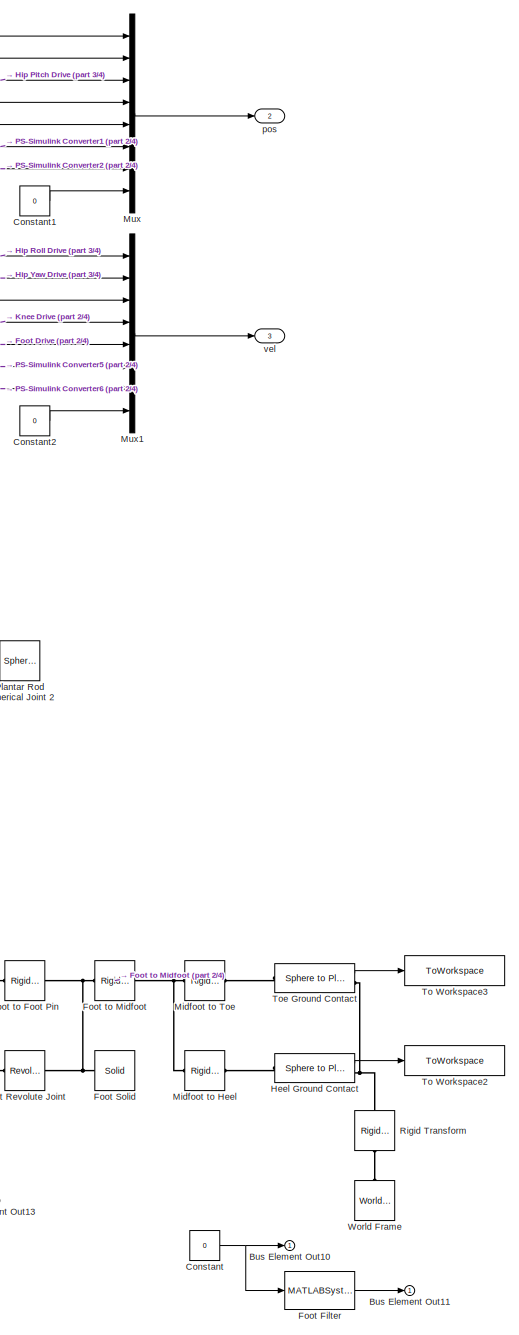
[diagram: Cassie/Cassie Simulation/Cassie Right Leg - part 1/4, right side, full height]
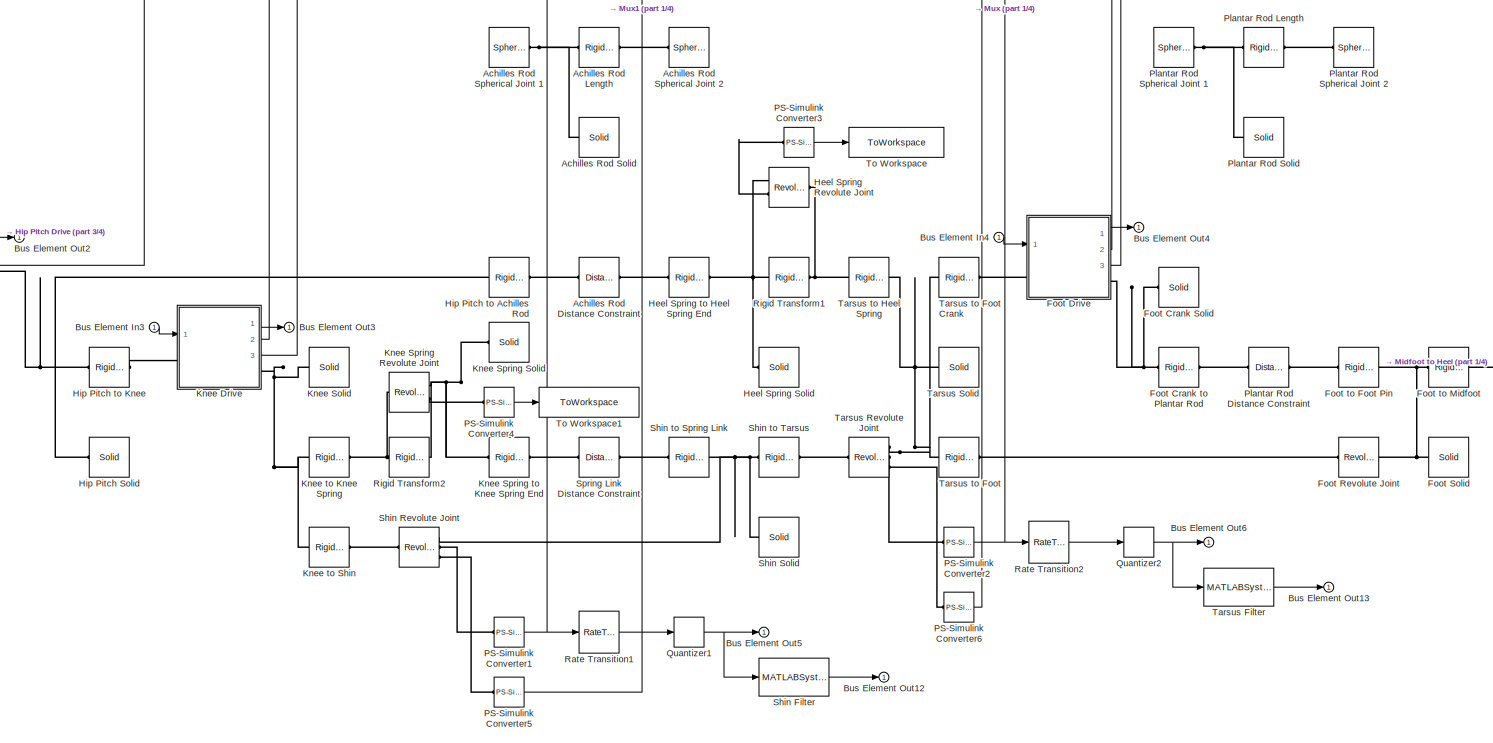
[diagram: Cassie/Cassie Simulation/Cassie Right Leg - part 2/4, bottom center region]
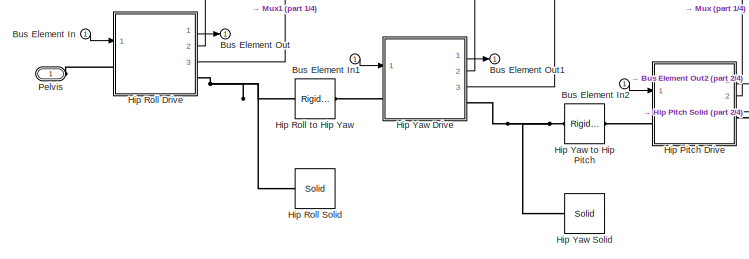
[diagram: Cassie/Cassie Simulation/Cassie Right Leg - part 3/4, middle left region]
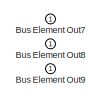
[diagram: Cassie/Cassie Simulation/Cassie Right Leg - part 4/4, bottom center region]
BLOCK [SubSystem] Cassie/Cassie Simulation/Cassie Right Leg
  AncestorBlock = CassieLibrary/Simulation/Cassie Leg
  Ports = [1, 3, 0, 0, 0, 1]
  RequestExecContextInheritance = off
  Variant = off
BLOCK [Reference] Cassie/Cassie Simulation/Cassie Right Leg/Achilles Rod Distance Constraint  REF=sm_lib/Constraints/Distance
Constraint
  Ports = [0, 0, 0, 0, 0, 1, 1]
  SourceBlock = sm_lib/Constraints/Distance\nConstraint
  SourceProductBaseCode = MS
  SourceProductName = Simscape Multibody
  SourceType = Distance\nConstraint
BLOCK [Reference] Cassie/Cassie Simulation/Cassie Right Leg/Achilles Rod Length  REF=sm_lib/Frames and
Transforms/Rigid
Transform
  Commented = on
  Ports = [0, 0, 0, 0, 0, 1, 1]
  SourceBlock = sm_lib/Frames and\nTransforms/Rigid\nTransform
  SourceProductBaseCode = MS
  SourceProductName = Simscape Multibody
  SourceType = Rigid\nTransform
BLOCK [Reference] Cassie/Cassie Simulation/Cassie Right Leg/Achilles Rod Solid  REF=sm_lib/Body Elements/Solid
  Commented = on
  Ports = [0, 0, 0, 0, 0, 0, 1]
  SourceBlock = sm_lib/Body Elements/Solid
  SourceProductBaseCode = MS
  SourceProductName = Simscape Multibody
  SourceType = Solid
BLOCK [Reference] Cassie/Cassie Simulation/Cassie Right Leg/Achilles Rod Spherical Joint 1  REF=sm_lib/Joints/Spherical
Joint
  Commented = on
  Ports = [0, 0, 0, 0, 0, 1, 1]
  SourceBlock = sm_lib/Joints/Spherical\nJoint
  SourceProductBaseCode = MS
  SourceProductName = Simscape Multibody
  SourceType = Spherical\nJoint
BLOCK [Reference] Cassie/Cassie Simulation/Cassie Right Leg/Achilles Rod Spherical Joint 2  REF=sm_lib/Joints/Spherical
Joint
  Commented = on
  Ports = [0, 0, 0, 0, 0, 1, 1]
  SourceBlock = sm_lib/Joints/Spherical\nJoint
  SourceProductBaseCode = MS
  SourceProductName = Simscape Multibody
  SourceType = Spherical\nJoint
BLOCK [Inport] Cassie/Cassie Simulation/Cassie Right Leg/Bus Element In
  IconDisplay = Port number
BLOCK [Inport] Cassie/Cassie Simulation/Cassie Right Leg/Bus Element In1
  IconDisplay = Port number
BLOCK [Inport] Cassie/Cassie Simulation/Cassie Right Leg/Bus Element In2
  IconDisplay = Port number
BLOCK [Inport] Cassie/Cassie Simulation/Cassie Right Leg/Bus Element In3
  IconDisplay = Port number
BLOCK [Inport] Cassie/Cassie Simulation/Cassie Right Leg/Bus Element In4
  IconDisplay = Port number
BLOCK [Outport] Cassie/Cassie Simulation/Cassie Right Leg/Bus Element Out
  IconDisplay = Port number
BLOCK [Outport] Cassie/Cassie Simulation/Cassie Right Leg/Bus Element Out1
  IconDisplay = Port number
BLOCK [Outport] Cassie/Cassie Simulation/Cassie Right Leg/Bus Element Out10
  IconDisplay = Port number
BLOCK [Outport] Cassie/Cassie Simulation/Cassie Right Leg/Bus Element Out11
  IconDisplay = Port number
BLOCK [Outport] Cassie/Cassie Simulation/Cassie Right Leg/Bus Element Out12
  IconDisplay = Port number
BLOCK [Outport] Cassie/Cassie Simulation/Cassie Right Leg/Bus Element Out13
  IconDisplay = Port number
BLOCK [Outport] Cassie/Cassie Simulation/Cassie Right Leg/Bus Element Out2
  IconDisplay = Port number
BLOCK [Outport] Cassie/Cassie Simulation/Cassie Right Leg/Bus Element Out3
  IconDisplay = Port number
BLOCK [Outport] Cassie/Cassie Simulation/Cassie Right Leg/Bus Element Out4
  IconDisplay = Port number
BLOCK [Outport] Cassie/Cassie Simulation/Cassie Right Leg/Bus Element Out5
  IconDisplay = Port number
BLOCK [Outport] Cassie/Cassie Simulation/Cassie Right Leg/Bus Element Out6
  IconDisplay = Port number
BLOCK [Outport] Cassie/Cassie Simulation/Cassie Right Leg/Bus Element Out7
  IconDisplay = Port number
BLOCK [Outport] Cassie/Cassie Simulation/Cassie Right Leg/Bus Element Out8
  IconDisplay = Port number
BLOCK [Outport] Cassie/Cassie Simulation/Cassie Right Leg/Bus Element Out9
  IconDisplay = Port number
BLOCK [Constant] Cassie/Cassie Simulation/Cassie Right Leg/Constant
  Value = 0
BLOCK [Constant] Cassie/Cassie Simulation/Cassie Right Leg/Constant1
  Value = 0
BLOCK [Constant] Cassie/Cassie Simulation/Cassie Right Leg/Constant2
  Value = 0
BLOCK [Reference] Cassie/Cassie Simulation/Cassie Right Leg/Foot Crank Solid  REF=sm_lib/Body Elements/Solid
  Ports = [0, 0, 0, 0, 0, 0, 1]
  SourceBlock = sm_lib/Body Elements/Solid
  SourceProductBaseCode = MS
  SourceProductName = Simscape Multibody
  SourceType = Solid
BLOCK [Reference] Cassie/Cassie Simulation/Cassie Right Leg/Foot Crank to Plantar Rod  REF=sm_lib/Frames and
Transforms/Rigid
Transform
  Ports = [0, 0, 0, 0, 0, 1, 1]
  SourceBlock = sm_lib/Frames and\nTransforms/Rigid\nTransform
  SourceProductBaseCode = MS
  SourceProductName = Simscape Multibody
  SourceType = Rigid\nTransform
BLOCK [SubSystem] Cassie/Cassie Simulation/Cassie Right Leg/Foot Drive
  AncestorBlock = ComponentLibrary/Simulation/Elmo Drive
  Ports = [1, 3, 0, 0, 0, 1, 1]
  RequestExecContextInheritance = off
  Variant = off
BLOCK [Gain] Cassie/Cassie Simulation/Cassie Right Leg/Foot Drive/Actual Torque Scaling
  Gain = -gearRatio
  OutDataTypeStr = Inherit: Inherit via internal rule
  ParamDataTypeStr = Inherit: Inherit via internal rule
  SaturateOnIntegerOverflow = off
BLOCK [PMIOPort] Cassie/Cassie Simulation/Cassie Right Leg/Foot Drive/Base
  Port = 1
  Side = Left
BLOCK [Inport] Cassie/Cassie Simulation/Cassie Right Leg/Foot Drive/Bus Element In
  IconDisplay = Port number
BLOCK [Outport] Cassie/Cassie Simulation/Cassie Right Leg/Foot Drive/Bus Element Out
  IconDisplay = Port number
BLOCK [Outport] Cassie/Cassie Simulation/Cassie Right Leg/Foot Drive/Bus Element Out1
  IconDisplay = Port number
BLOCK [Outport] Cassie/Cassie Simulation/Cassie Right Leg/Foot Drive/Bus Element Out2
  IconDisplay = Port number
BLOCK [Outport] Cassie/Cassie Simulation/Cassie Right Leg/Foot Drive/Bus Element Out3
  IconDisplay = Port number
BLOCK [Outport] Cassie/Cassie Simulation/Cassie Right Leg/Foot Drive/Bus Element Out4
  IconDisplay = Port number
BLOCK [Outport] Cassie/Cassie Simulation/Cassie Right Leg/Foot Drive/Bus Element Out5
  IconDisplay = Port number
BLOCK [Outport] Cassie/Cassie Simulation/Cassie Right Leg/Foot Drive/Bus Element Out6
  IconDisplay = Port number
BLOCK [Outport] Cassie/Cassie Simulation/Cassie Right Leg/Foot Drive/Bus Element Out7
  IconDisplay = Port number
BLOCK [Constant] Cassie/Cassie Simulation/Cassie Right Leg/Foot Drive/Constant1
  Value = 0
BLOCK [Constant] Cassie/Cassie Simulation/Cassie Right Leg/Foot Drive/Constant2
  OutDataTypeStr = uint16
  Value = 0
BLOCK [Constant] Cassie/Cassie Simulation/Cassie Right Leg/Foot Drive/Constant3
  Value = 0
BLOCK [Constant] Cassie/Cassie Simulation/Cassie Right Leg/Foot Drive/Constant4
  Value = peakTorque*gearRatio
BLOCK [Constant] Cassie/Cassie Simulation/Cassie Right Leg/Foot Drive/Constant5
  Value = gearRatio
BLOCK [PMIOPort] Cassie/Cassie Simulation/Cassie Right Leg/Foot Drive/Follower
  Port = 2
  Side = Right
BLOCK [Reference] Cassie/Cassie Simulation/Cassie Right Leg/Foot Drive/Gear Constraint  REF=sm_lib/Gears and
Couplings/Gears/Common Gear
Constraint
  Ports = [0, 0, 0, 0, 0, 1, 1]
  SourceBlock = sm_lib/Gears and\nCouplings/Gears/Common Gear\nConstraint
  SourceProductBaseCode = MS
  SourceProductName = Simscape Multibody
  SourceType = Common Gear\nConstraint
BLOCK [Reference] Cassie/Cassie Simulation/Cassie Right Leg/Foot Drive/Gear Constraint Offset  REF=sm_lib/Frames and
Transforms/Rigid
Transform
  Ports = [0, 0, 0, 0, 0, 1, 1]
  SourceBlock = sm_lib/Frames and\nTransforms/Rigid\nTransform
  SourceProductBaseCode = MS
  SourceProductName = Simscape Multibody
  SourceType = Rigid\nTransform
BLOCK [Reference] Cassie/Cassie Simulation/Cassie Right Leg/Foot Drive/Input Revolute Joint  REF=sm_lib/Joints/Revolute Joint
  Ports = [0, 0, 0, 0, 0, 2, 2]
  SourceBlock = sm_lib/Joints/Revolute Joint
  SourceProductBaseCode = MS
  SourceProductName = Simscape Multibody
  SourceType = Revolute Joint
BLOCK [SubSystem] Cassie/Cassie Simulation/Cassie Right Leg/Foot Drive/MATLAB Function
  ErrorFcn = Stateflow.Translate.translate
  PermitHierarchicalResolution = ExplicitOnly
  Ports = [2, 1]
  RequestExecContextInheritance = off
  SFBlockType = MATLAB Function
  TreatAsAtomicUnit = on
  Variant = off
BLOCK [Demux] Cassie/Cassie Simulation/Cassie Right Leg/Foot Drive/MATLAB Function/ Demux 
  Outputs = 1
  Ports = [1, 1]
BLOCK [S-Function] Cassie/Cassie Simulation/Cassie Right Leg/Foot Drive/MATLAB Function/ SFunction 
  EnableBusSupport = on
  FunctionName = sf_sfun
  Parameters = peakSpeed,peakTorque
  PortCounts = [2 2]
  Ports = [2, 2]
  SFcnIsStateOwnerBlock = off
  SFunctionDeploymentMode = off
  Tag = Stateflow S-Function FG_Simulator 14
BLOCK [Terminator] Cassie/Cassie Simulation/Cassie Right Leg/Foot Drive/MATLAB Function/ Terminator 
BLOCK [Inport] Cassie/Cassie Simulation/Cassie Right Leg/Foot Drive/MATLAB Function/speed
  IconDisplay = Port number
BLOCK [Outport] Cassie/Cassie Simulation/Cassie Right Leg/Foot Drive/MATLAB Function/torque
  IconDisplay = Port number
BLOCK [Inport] Cassie/Cassie Simulation/Cassie Right Leg/Foot Drive/MATLAB Function/torque 
  IconDisplay = Port number
  Port = 2
BLOCK [Reference] Cassie/Cassie Simulation/Cassie Right Leg/Foot Drive/Output Revolute Joint  REF=sm_lib/Joints/Revolute Joint
  Ports = [0, 0, 0, 0, 0, 1, 3]
  SourceBlock = sm_lib/Joints/Revolute Joint
  SourceProductBaseCode = MS
  SourceProductName = Simscape Multibody
  SourceType = Revolute Joint
BLOCK [Reference] Cassie/Cassie Simulation/Cassie Right Leg/Foot Drive/PS-Simulink Converter  REF=nesl_utility/PS-Simulink
Converter
  Ports = [0, 1, 0, 0, 0, 1]
  SourceBlock = nesl_utility/PS-Simulink\nConverter
  SourceProductBaseCode = SS
  SourceProductName = Simscape
  SourceType = PS-Simulink\nConverter
BLOCK [Reference] Cassie/Cassie Simulation/Cassie Right Leg/Foot Drive/PS-Simulink Converter1  REF=nesl_utility/PS-Simulink
Converter
  Ports = [0, 1, 0, 0, 0, 1]
  SourceBlock = nesl_utility/PS-Simulink\nConverter
  SourceProductBaseCode = SS
  SourceProductName = Simscape
  SourceType = PS-Simulink\nConverter
BLOCK [Reference] Cassie/Cassie Simulation/Cassie Right Leg/Foot Drive/PS-Simulink Converter2  REF=nesl_utility/PS-Simulink
Converter
  Ports = [0, 1, 0, 0, 0, 1]
  SourceBlock = nesl_utility/PS-Simulink\nConverter
  SourceProductBaseCode = SS
  SourceProductName = Simscape
  SourceType = PS-Simulink\nConverter
BLOCK [Outport] Cassie/Cassie Simulation/Cassie Right Leg/Foot Drive/Pos
  IconDisplay = Port number
  Port = 2
BLOCK [Quantizer] Cassie/Cassie Simulation/Cassie Right Leg/Foot Drive/Quantizer
  QuantizationInterval = (2*pi)/(encoderResolution*gearRatio)
BLOCK [RateTransition] Cassie/Cassie Simulation/Cassie Right Leg/Foot Drive/Rate Transition
  Deterministic = off
  InitialCondition = initialPosition
  OutPortSampleTimeOpt = Inherit
BLOCK [RateTransition] Cassie/Cassie Simulation/Cassie Right Leg/Foot Drive/Rate Transition1
  Deterministic = off
  InitialCondition = initialPosition
  OutPortSampleTimeOpt = Inherit
BLOCK [Reference] Cassie/Cassie Simulation/Cassie Right Leg/Foot Drive/Rotor Solid  REF=sm_lib/Body Elements/Solid
  Ports = [0, 0, 0, 0, 0, 0, 1]
  SourceBlock = sm_lib/Body Elements/Solid
  SourceProductBaseCode = MS
  SourceProductName = Simscape Multibody
  SourceType = Solid
BLOCK [Reference] Cassie/Cassie Simulation/Cassie Right Leg/Foot Drive/Simulink-PS Converter  REF=nesl_utility/Simulink-PS
Converter
  Ports = [1, 0, 0, 0, 0, 0, 1]
  SourceBlock = nesl_utility/Simulink-PS\nConverter
  SourceProductBaseCode = SS
  SourceProductName = Simscape
  SourceType = Simulink-PS\nConverter
BLOCK [Gain] Cassie/Cassie Simulation/Cassie Right Leg/Foot Drive/Target Torque Scaling
  Gain = -1/gearRatio
  OutDataTypeStr = Inherit: Inherit via internal rule
  ParamDataTypeStr = Inherit: Inherit via internal rule
  SaturateOnIntegerOverflow = off
BLOCK [Outport] Cassie/Cassie Simulation/Cassie Right Leg/Foot Drive/vel
  IconDisplay = Port number
  Port = 3
BLOCK [MATLABSystem] Cassie/Cassie Simulation/Cassie Right Leg/Foot Filter
  MaskDisplay = disp('Filter');
  MaskType = FilterSystem
  Ports = [1, 1]
  SimulateUsing = Code generation
  System = FilterSystem
  a = [1 -1.76575295625865 0.790448801800725]
  b = [12.3479227710395 12.3479227710395 -12.3479227710395 -12.3479227710395]
BLOCK [Reference] Cassie/Cassie Simulation/Cassie Right Leg/Foot Revolute Joint  REF=sm_lib/Joints/Revolute Joint
  Ports = [0, 0, 0, 0, 0, 1, 1]
  SourceBlock = sm_lib/Joints/Revolute Joint
  SourceProductBaseCode = MS
  SourceProductName = Simscape Multibody
  SourceType = Revolute Joint
BLOCK [Reference] Cassie/Cassie Simulation/Cassie Right Leg/Foot Solid  REF=sm_lib/Body Elements/Solid
  Ports = [0, 0, 0, 0, 0, 0, 1]
  SourceBlock = sm_lib/Body Elements/Solid
  SourceProductBaseCode = MS
  SourceProductName = Simscape Multibody
  SourceType = Solid
BLOCK [Reference] Cassie/Cassie Simulation/Cassie Right Leg/Foot to Foot Pin  REF=sm_lib/Frames and
Transforms/Rigid
Transform
  Ports = [0, 0, 0, 0, 0, 1, 1]
  SourceBlock = sm_lib/Frames and\nTransforms/Rigid\nTransform
  SourceProductBaseCode = MS
  SourceProductName = Simscape Multibody
  SourceType = Rigid\nTransform
BLOCK [Reference] Cassie/Cassie Simulation/Cassie Right Leg/Foot to Midfoot  REF=sm_lib/Frames and
Transforms/Rigid
Transform
  Ports = [0, 0, 0, 0, 0, 1, 1]
  SourceBlock = sm_lib/Frames and\nTransforms/Rigid\nTransform
  SourceProductBaseCode = MS
  SourceProductName = Simscape Multibody
  SourceType = Rigid\nTransform
BLOCK [Reference] Cassie/Cassie Simulation/Cassie Right Leg/Heel Ground Contact  REF=Contact_Forces_Lib/3D/Sphere to Plane Force
  Ports = [0, 1, 0, 0, 0, 1, 1]
  SourceBlock = Contact_Forces_Lib/3D/Sphere to Plane Force
  SourceProductName = Simscape Multibody Contact Forces Library
  SourceType = Sphere to Plane Force
BLOCK [Reference] Cassie/Cassie Simulation/Cassie Right Leg/Heel Spring Revolute Joint  REF=sm_lib/Joints/Revolute Joint
  Ports = [0, 0, 0, 0, 0, 1, 2]
  SourceBlock = sm_lib/Joints/Revolute Joint
  SourceProductBaseCode = MS
  SourceProductName = Simscape Multibody
  SourceType = Revolute Joint
BLOCK [Reference] Cassie/Cassie Simulation/Cassie Right Leg/Heel Spring Solid  REF=sm_lib/Body Elements/Solid
  Ports = [0, 0, 0, 0, 0, 0, 1]
  SourceBlock = sm_lib/Body Elements/Solid
  SourceProductBaseCode = MS
  SourceProductName = Simscape Multibody
  SourceType = Solid
BLOCK [Reference] Cassie/Cassie Simulation/Cassie Right Leg/Heel Spring to Heel Spring End  REF=sm_lib/Frames and
Transforms/Rigid
Transform
  Ports = [0, 0, 0, 0, 0, 1, 1]
  SourceBlock = sm_lib/Frames and\nTransforms/Rigid\nTransform
  SourceProductBaseCode = MS
  SourceProductName = Simscape Multibody
  SourceType = Rigid\nTransform
BLOCK [SubSystem] Cassie/Cassie Simulation/Cassie Right Leg/Hip Pitch Drive
  AncestorBlock = ComponentLibrary/Simulation/Elmo Drive
  Ports = [1, 3, 0, 0, 0, 1, 1]
  RequestExecContextInheritance = off
  Variant = off
BLOCK [Gain] Cassie/Cassie Simulation/Cassie Right Leg/Hip Pitch Drive/Actual Torque Scaling
  Gain = -gearRatio
  OutDataTypeStr = Inherit: Inherit via internal rule
  ParamDataTypeStr = Inherit: Inherit via internal rule
  SaturateOnIntegerOverflow = off
BLOCK [PMIOPort] Cassie/Cassie Simulation/Cassie Right Leg/Hip Pitch Drive/Base
  Port = 1
  Side = Left
BLOCK [Inport] Cassie/Cassie Simulation/Cassie Right Leg/Hip Pitch Drive/Bus Element In
  IconDisplay = Port number
BLOCK [Outport] Cassie/Cassie Simulation/Cassie Right Leg/Hip Pitch Drive/Bus Element Out
  IconDisplay = Port number
BLOCK [Outport] Cassie/Cassie Simulation/Cassie Right Leg/Hip Pitch Drive/Bus Element Out1
  IconDisplay = Port number
BLOCK [Outport] Cassie/Cassie Simulation/Cassie Right Leg/Hip Pitch Drive/Bus Element Out2
  IconDisplay = Port number
BLOCK [Outport] Cassie/Cassie Simulation/Cassie Right Leg/Hip Pitch Drive/Bus Element Out3
  IconDisplay = Port number
BLOCK [Outport] Cassie/Cassie Simulation/Cassie Right Leg/Hip Pitch Drive/Bus Element Out4
  IconDisplay = Port number
BLOCK [Outport] Cassie/Cassie Simulation/Cassie Right Leg/Hip Pitch Drive/Bus Element Out5
  IconDisplay = Port number
BLOCK [Outport] Cassie/Cassie Simulation/Cassie Right Leg/Hip Pitch Drive/Bus Element Out6
  IconDisplay = Port number
BLOCK [Outport] Cassie/Cassie Simulation/Cassie Right Leg/Hip Pitch Drive/Bus Element Out7
  IconDisplay = Port number
BLOCK [Constant] Cassie/Cassie Simulation/Cassie Right Leg/Hip Pitch Drive/Constant1
  Value = 0
BLOCK [Constant] Cassie/Cassie Simulation/Cassie Right Leg/Hip Pitch Drive/Constant2
  OutDataTypeStr = uint16
  Value = 0
BLOCK [Constant] Cassie/Cassie Simulation/Cassie Right Leg/Hip Pitch Drive/Constant3
  Value = 0
BLOCK [Constant] Cassie/Cassie Simulation/Cassie Right Leg/Hip Pitch Drive/Constant4
  Value = peakTorque*gearRatio
BLOCK [Constant] Cassie/Cassie Simulation/Cassie Right Leg/Hip Pitch Drive/Constant5
  Value = gearRatio
BLOCK [PMIOPort] Cassie/Cassie Simulation/Cassie Right Leg/Hip Pitch Drive/Follower
  Port = 2
  Side = Right
BLOCK [Reference] Cassie/Cassie Simulation/Cassie Right Leg/Hip Pitch Drive/Gear Constraint  REF=sm_lib/Gears and
Couplings/Gears/Common Gear
Constraint
  Ports = [0, 0, 0, 0, 0, 1, 1]
  SourceBlock = sm_lib/Gears and\nCouplings/Gears/Common Gear\nConstraint
  SourceProductBaseCode = MS
  SourceProductName = Simscape Multibody
  SourceType = Common Gear\nConstraint
BLOCK [Reference] Cassie/Cassie Simulation/Cassie Right Leg/Hip Pitch Drive/Gear Constraint Offset  REF=sm_lib/Frames and
Transforms/Rigid
Transform
  Ports = [0, 0, 0, 0, 0, 1, 1]
  SourceBlock = sm_lib/Frames and\nTransforms/Rigid\nTransform
  SourceProductBaseCode = MS
  SourceProductName = Simscape Multibody
  SourceType = Rigid\nTransform
BLOCK [Reference] Cassie/Cassie Simulation/Cassie Right Leg/Hip Pitch Drive/Input Revolute Joint  REF=sm_lib/Joints/Revolute Joint
  Ports = [0, 0, 0, 0, 0, 2, 2]
  SourceBlock = sm_lib/Joints/Revolute Joint
  SourceProductBaseCode = MS
  SourceProductName = Simscape Multibody
  SourceType = Revolute Joint
BLOCK [SubSystem] Cassie/Cassie Simulation/Cassie Right Leg/Hip Pitch Drive/MATLAB Function
  ErrorFcn = Stateflow.Translate.translate
  PermitHierarchicalResolution = ExplicitOnly
  Ports = [2, 1]
  RequestExecContextInheritance = off
  SFBlockType = MATLAB Function
  TreatAsAtomicUnit = on
  Variant = off
BLOCK [Demux] Cassie/Cassie Simulation/Cassie Right Leg/Hip Pitch Drive/MATLAB Function/ Demux 
  Outputs = 1
  Ports = [1, 1]
BLOCK [S-Function] Cassie/Cassie Simulation/Cassie Right Leg/Hip Pitch Drive/MATLAB Function/ SFunction 
  EnableBusSupport = on
  FunctionName = sf_sfun
  Parameters = peakSpeed,peakTorque
  PortCounts = [2 2]
  Ports = [2, 2]
  SFcnIsStateOwnerBlock = off
  SFunctionDeploymentMode = off
  Tag = Stateflow S-Function FG_Simulator 12
BLOCK [Terminator] Cassie/Cassie Simulation/Cassie Right Leg/Hip Pitch Drive/MATLAB Function/ Terminator 
BLOCK [Inport] Cassie/Cassie Simulation/Cassie Right Leg/Hip Pitch Drive/MATLAB Function/speed
  IconDisplay = Port number
BLOCK [Outport] Cassie/Cassie Simulation/Cassie Right Leg/Hip Pitch Drive/MATLAB Function/torque
  IconDisplay = Port number
BLOCK [Inport] Cassie/Cassie Simulation/Cassie Right Leg/Hip Pitch Drive/MATLAB Function/torque 
  IconDisplay = Port number
  Port = 2
BLOCK [Reference] Cassie/Cassie Simulation/Cassie Right Leg/Hip Pitch Drive/Output Revolute Joint  REF=sm_lib/Joints/Revolute Joint
  Ports = [0, 0, 0, 0, 0, 1, 3]
  SourceBlock = sm_lib/Joints/Revolute Joint
  SourceProductBaseCode = MS
  SourceProductName = Simscape Multibody
  SourceType = Revolute Joint
BLOCK [Reference] Cassie/Cassie Simulation/Cassie Right Leg/Hip Pitch Drive/PS-Simulink Converter  REF=nesl_utility/PS-Simulink
Converter
  Ports = [0, 1, 0, 0, 0, 1]
  SourceBlock = nesl_utility/PS-Simulink\nConverter
  SourceProductBaseCode = SS
  SourceProductName = Simscape
  SourceType = PS-Simulink\nConverter
BLOCK [Reference] Cassie/Cassie Simulation/Cassie Right Leg/Hip Pitch Drive/PS-Simulink Converter1  REF=nesl_utility/PS-Simulink
Converter
  Ports = [0, 1, 0, 0, 0, 1]
  SourceBlock = nesl_utility/PS-Simulink\nConverter
  SourceProductBaseCode = SS
  SourceProductName = Simscape
  SourceType = PS-Simulink\nConverter
BLOCK [Reference] Cassie/Cassie Simulation/Cassie Right Leg/Hip Pitch Drive/PS-Simulink Converter2  REF=nesl_utility/PS-Simulink
Converter
  Ports = [0, 1, 0, 0, 0, 1]
  SourceBlock = nesl_utility/PS-Simulink\nConverter
  SourceProductBaseCode = SS
  SourceProductName = Simscape
  SourceType = PS-Simulink\nConverter
BLOCK [Outport] Cassie/Cassie Simulation/Cassie Right Leg/Hip Pitch Drive/Pos
  IconDisplay = Port number
  Port = 2
BLOCK [Quantizer] Cassie/Cassie Simulation/Cassie Right Leg/Hip Pitch Drive/Quantizer
  QuantizationInterval = (2*pi)/(encoderResolution*gearRatio)
BLOCK [RateTransition] Cassie/Cassie Simulation/Cassie Right Leg/Hip Pitch Drive/Rate Transition
  Deterministic = off
  InitialCondition = initialPosition
  OutPortSampleTimeOpt = Inherit
BLOCK [RateTransition] Cassie/Cassie Simulation/Cassie Right Leg/Hip Pitch Drive/Rate Transition1
  Deterministic = off
  InitialCondition = initialPosition
  OutPortSampleTimeOpt = Inherit
BLOCK [Reference] Cassie/Cassie Simulation/Cassie Right Leg/Hip Pitch Drive/Rotor Solid  REF=sm_lib/Body Elements/Solid
  Ports = [0, 0, 0, 0, 0, 0, 1]
  SourceBlock = sm_lib/Body Elements/Solid
  SourceProductBaseCode = MS
  SourceProductName = Simscape Multibody
  SourceType = Solid
BLOCK [Reference] Cassie/Cassie Simulation/Cassie Right Leg/Hip Pitch Drive/Simulink-PS Converter  REF=nesl_utility/Simulink-PS
Converter
  Ports = [1, 0, 0, 0, 0, 0, 1]
  SourceBlock = nesl_utility/Simulink-PS\nConverter
  SourceProductBaseCode = SS
  SourceProductName = Simscape
  SourceType = Simulink-PS\nConverter
BLOCK [Gain] Cassie/Cassie Simulation/Cassie Right Leg/Hip Pitch Drive/Target Torque Scaling
  Gain = -1/gearRatio
  OutDataTypeStr = Inherit: Inherit via internal rule
  ParamDataTypeStr = Inherit: Inherit via internal rule
  SaturateOnIntegerOverflow = off
BLOCK [Outport] Cassie/Cassie Simulation/Cassie Right Leg/Hip Pitch Drive/vel
  IconDisplay = Port number
  Port = 3
BLOCK [Reference] Cassie/Cassie Simulation/Cassie Right Leg/Hip Pitch Solid  REF=sm_lib/Body Elements/Solid
  Ports = [0, 0, 0, 0, 0, 0, 1]
  SourceBlock = sm_lib/Body Elements/Solid
  SourceProductBaseCode = MS
  SourceProductName = Simscape Multibody
  SourceType = Solid
BLOCK [Reference] Cassie/Cassie Simulation/Cassie Right Leg/Hip Pitch to Achilles Rod  REF=sm_lib/Frames and
Transforms/Rigid
Transform
  Ports = [0, 0, 0, 0, 0, 1, 1]
  SourceBlock = sm_lib/Frames and\nTransforms/Rigid\nTransform
  SourceProductBaseCode = MS
  SourceProductName = Simscape Multibody
  SourceType = Rigid\nTransform
BLOCK [Reference] Cassie/Cassie Simulation/Cassie Right Leg/Hip Pitch to Knee  REF=sm_lib/Frames and
Transforms/Rigid
Transform
  Ports = [0, 0, 0, 0, 0, 1, 1]
  SourceBlock = sm_lib/Frames and\nTransforms/Rigid\nTransform
  SourceProductBaseCode = MS
  SourceProductName = Simscape Multibody
  SourceType = Rigid\nTransform
BLOCK [SubSystem] Cassie/Cassie Simulation/Cassie Right Leg/Hip Roll Drive
  AncestorBlock = ComponentLibrary/Simulation/Elmo Drive
  Ports = [1, 3, 0, 0, 0, 1, 1]
  RequestExecContextInheritance = off
  Variant = off
BLOCK [Gain] Cassie/Cassie Simulation/Cassie Right Leg/Hip Roll Drive/Actual Torque Scaling
  Gain = -gearRatio
  OutDataTypeStr = Inherit: Inherit via internal rule
  ParamDataTypeStr = Inherit: Inherit via internal rule
  SaturateOnIntegerOverflow = off
BLOCK [PMIOPort] Cassie/Cassie Simulation/Cassie Right Leg/Hip Roll Drive/Base
  Port = 1
  Side = Left
BLOCK [Inport] Cassie/Cassie Simulation/Cassie Right Leg/Hip Roll Drive/Bus Element In
  IconDisplay = Port number
BLOCK [Outport] Cassie/Cassie Simulation/Cassie Right Leg/Hip Roll Drive/Bus Element Out
  IconDisplay = Port number
BLOCK [Outport] Cassie/Cassie Simulation/Cassie Right Leg/Hip Roll Drive/Bus Element Out1
  IconDisplay = Port number
BLOCK [Outport] Cassie/Cassie Simulation/Cassie Right Leg/Hip Roll Drive/Bus Element Out2
  IconDisplay = Port number
BLOCK [Outport] Cassie/Cassie Simulation/Cassie Right Leg/Hip Roll Drive/Bus Element Out3
  IconDisplay = Port number
BLOCK [Outport] Cassie/Cassie Simulation/Cassie Right Leg/Hip Roll Drive/Bus Element Out4
  IconDisplay = Port number
BLOCK [Outport] Cassie/Cassie Simulation/Cassie Right Leg/Hip Roll Drive/Bus Element Out5
  IconDisplay = Port number
BLOCK [Outport] Cassie/Cassie Simulation/Cassie Right Leg/Hip Roll Drive/Bus Element Out6
  IconDisplay = Port number
BLOCK [Outport] Cassie/Cassie Simulation/Cassie Right Leg/Hip Roll Drive/Bus Element Out7
  IconDisplay = Port number
BLOCK [Constant] Cassie/Cassie Simulation/Cassie Right Leg/Hip Roll Drive/Constant1
  Value = 0
BLOCK [Constant] Cassie/Cassie Simulation/Cassie Right Leg/Hip Roll Drive/Constant2
  OutDataTypeStr = uint16
  Value = 0
BLOCK [Constant] Cassie/Cassie Simulation/Cassie Right Leg/Hip Roll Drive/Constant3
  Value = 0
BLOCK [Constant] Cassie/Cassie Simulation/Cassie Right Leg/Hip Roll Drive/Constant4
  Value = peakTorque*gearRatio
BLOCK [Constant] Cassie/Cassie Simulation/Cassie Right Leg/Hip Roll Drive/Constant5
  Value = gearRatio
BLOCK [PMIOPort] Cassie/Cassie Simulation/Cassie Right Leg/Hip Roll Drive/Follower
  Port = 2
  Side = Right
BLOCK [Reference] Cassie/Cassie Simulation/Cassie Right Leg/Hip Roll Drive/Gear Constraint  REF=sm_lib/Gears and
Couplings/Gears/Common Gear
Constraint
  Ports = [0, 0, 0, 0, 0, 1, 1]
  SourceBlock = sm_lib/Gears and\nCouplings/Gears/Common Gear\nConstraint
  SourceProductBaseCode = MS
  SourceProductName = Simscape Multibody
  SourceType = Common Gear\nConstraint
BLOCK [Reference] Cassie/Cassie Simulation/Cassie Right Leg/Hip Roll Drive/Gear Constraint Offset  REF=sm_lib/Frames and
Transforms/Rigid
Transform
  Ports = [0, 0, 0, 0, 0, 1, 1]
  SourceBlock = sm_lib/Frames and\nTransforms/Rigid\nTransform
  SourceProductBaseCode = MS
  SourceProductName = Simscape Multibody
  SourceType = Rigid\nTransform
BLOCK [Reference] Cassie/Cassie Simulation/Cassie Right Leg/Hip Roll Drive/Input Revolute Joint  REF=sm_lib/Joints/Revolute Joint
  Ports = [0, 0, 0, 0, 0, 2, 2]
  SourceBlock = sm_lib/Joints/Revolute Joint
  SourceProductBaseCode = MS
  SourceProductName = Simscape Multibody
  SourceType = Revolute Joint
BLOCK [SubSystem] Cassie/Cassie Simulation/Cassie Right Leg/Hip Roll Drive/MATLAB Function
  ErrorFcn = Stateflow.Translate.translate
  PermitHierarchicalResolution = ExplicitOnly
  Ports = [2, 1]
  RequestExecContextInheritance = off
  SFBlockType = MATLAB Function
  TreatAsAtomicUnit = on
  Variant = off
BLOCK [Demux] Cassie/Cassie Simulation/Cassie Right Leg/Hip Roll Drive/MATLAB Function/ Demux 
  Outputs = 1
  Ports = [1, 1]
BLOCK [S-Function] Cassie/Cassie Simulation/Cassie Right Leg/Hip Roll Drive/MATLAB Function/ SFunction 
  EnableBusSupport = on
  FunctionName = sf_sfun
  Parameters = peakSpeed,peakTorque
  PortCounts = [2 2]
  Ports = [2, 2]
  SFcnIsStateOwnerBlock = off
  SFunctionDeploymentMode = off
  Tag = Stateflow S-Function FG_Simulator 9
BLOCK [Terminator] Cassie/Cassie Simulation/Cassie Right Leg/Hip Roll Drive/MATLAB Function/ Terminator 
BLOCK [Inport] Cassie/Cassie Simulation/Cassie Right Leg/Hip Roll Drive/MATLAB Function/speed
  IconDisplay = Port number
BLOCK [Outport] Cassie/Cassie Simulation/Cassie Right Leg/Hip Roll Drive/MATLAB Function/torque
  IconDisplay = Port number
BLOCK [Inport] Cassie/Cassie Simulation/Cassie Right Leg/Hip Roll Drive/MATLAB Function/torque 
  IconDisplay = Port number
  Port = 2
BLOCK [Reference] Cassie/Cassie Simulation/Cassie Right Leg/Hip Roll Drive/Output Revolute Joint  REF=sm_lib/Joints/Revolute Joint
  Ports = [0, 0, 0, 0, 0, 1, 3]
  SourceBlock = sm_lib/Joints/Revolute Joint
  SourceProductBaseCode = MS
  SourceProductName = Simscape Multibody
  SourceType = Revolute Joint
BLOCK [Reference] Cassie/Cassie Simulation/Cassie Right Leg/Hip Roll Drive/PS-Simulink Converter  REF=nesl_utility/PS-Simulink
Converter
  Ports = [0, 1, 0, 0, 0, 1]
  SourceBlock = nesl_utility/PS-Simulink\nConverter
  SourceProductBaseCode = SS
  SourceProductName = Simscape
  SourceType = PS-Simulink\nConverter
BLOCK [Reference] Cassie/Cassie Simulation/Cassie Right Leg/Hip Roll Drive/PS-Simulink Converter1  REF=nesl_utility/PS-Simulink
Converter
  Ports = [0, 1, 0, 0, 0, 1]
  SourceBlock = nesl_utility/PS-Simulink\nConverter
  SourceProductBaseCode = SS
  SourceProductName = Simscape
  SourceType = PS-Simulink\nConverter
BLOCK [Reference] Cassie/Cassie Simulation/Cassie Right Leg/Hip Roll Drive/PS-Simulink Converter2  REF=nesl_utility/PS-Simulink
Converter
  Ports = [0, 1, 0, 0, 0, 1]
  SourceBlock = nesl_utility/PS-Simulink\nConverter
  SourceProductBaseCode = SS
  SourceProductName = Simscape
  SourceType = PS-Simulink\nConverter
BLOCK [Outport] Cassie/Cassie Simulation/Cassie Right Leg/Hip Roll Drive/Pos
  IconDisplay = Port number
  Port = 2
BLOCK [Quantizer] Cassie/Cassie Simulation/Cassie Right Leg/Hip Roll Drive/Quantizer
  QuantizationInterval = (2*pi)/(encoderResolution*gearRatio)
BLOCK [RateTransition] Cassie/Cassie Simulation/Cassie Right Leg/Hip Roll Drive/Rate Transition
  Deterministic = off
  InitialCondition = initialPosition
  OutPortSampleTimeOpt = Inherit
BLOCK [RateTransition] Cassie/Cassie Simulation/Cassie Right Leg/Hip Roll Drive/Rate Transition1
  Deterministic = off
  InitialCondition = initialPosition
  OutPortSampleTimeOpt = Inherit
BLOCK [Reference] Cassie/Cassie Simulation/Cassie Right Leg/Hip Roll Drive/Rotor Solid  REF=sm_lib/Body Elements/Solid
  Ports = [0, 0, 0, 0, 0, 0, 1]
  SourceBlock = sm_lib/Body Elements/Solid
  SourceProductBaseCode = MS
  SourceProductName = Simscape Multibody
  SourceType = Solid
BLOCK [Reference] Cassie/Cassie Simulation/Cassie Right Leg/Hip Roll Drive/Simulink-PS Converter  REF=nesl_utility/Simulink-PS
Converter
  Ports = [1, 0, 0, 0, 0, 0, 1]
  SourceBlock = nesl_utility/Simulink-PS\nConverter
  SourceProductBaseCode = SS
  SourceProductName = Simscape
  SourceType = Simulink-PS\nConverter
BLOCK [Gain] Cassie/Cassie Simulation/Cassie Right Leg/Hip Roll Drive/Target Torque Scaling
  Gain = -1/gearRatio
  OutDataTypeStr = Inherit: Inherit via internal rule
  ParamDataTypeStr = Inherit: Inherit via internal rule
  SaturateOnIntegerOverflow = off
BLOCK [Outport] Cassie/Cassie Simulation/Cassie Right Leg/Hip Roll Drive/vel
  IconDisplay = Port number
  Port = 3
BLOCK [Reference] Cassie/Cassie Simulation/Cassie Right Leg/Hip Roll Solid  REF=sm_lib/Body Elements/Solid
  Ports = [0, 0, 0, 0, 0, 0, 1]
  SourceBlock = sm_lib/Body Elements/Solid
  SourceProductBaseCode = MS
  SourceProductName = Simscape Multibody
  SourceType = Solid
BLOCK [Reference] Cassie/Cassie Simulation/Cassie Right Leg/Hip Roll to Hip Yaw  REF=sm_lib/Frames and
Transforms/Rigid
Transform
  Ports = [0, 0, 0, 0, 0, 1, 1]
  SourceBlock = sm_lib/Frames and\nTransforms/Rigid\nTransform
  SourceProductBaseCode = MS
  SourceProductName = Simscape Multibody
  SourceType = Rigid\nTransform
BLOCK [SubSystem] Cassie/Cassie Simulation/Cassie Right Leg/Hip Yaw Drive
  AncestorBlock = ComponentLibrary/Simulation/Elmo Drive
  Ports = [1, 3, 0, 0, 0, 1, 1]
  RequestExecContextInheritance = off
  Variant = off
BLOCK [Gain] Cassie/Cassie Simulation/Cassie Right Leg/Hip Yaw Drive/Actual Torque Scaling
  Gain = -gearRatio
  OutDataTypeStr = Inherit: Inherit via internal rule
  ParamDataTypeStr = Inherit: Inherit via internal rule
  SaturateOnIntegerOverflow = off
BLOCK [PMIOPort] Cassie/Cassie Simulation/Cassie Right Leg/Hip Yaw Drive/Base
  Port = 1
  Side = Left
BLOCK [Inport] Cassie/Cassie Simulation/Cassie Right Leg/Hip Yaw Drive/Bus Element In
  IconDisplay = Port number
BLOCK [Outport] Cassie/Cassie Simulation/Cassie Right Leg/Hip Yaw Drive/Bus Element Out
  IconDisplay = Port number
BLOCK [Outport] Cassie/Cassie Simulation/Cassie Right Leg/Hip Yaw Drive/Bus Element Out1
  IconDisplay = Port number
BLOCK [Outport] Cassie/Cassie Simulation/Cassie Right Leg/Hip Yaw Drive/Bus Element Out2
  IconDisplay = Port number
BLOCK [Outport] Cassie/Cassie Simulation/Cassie Right Leg/Hip Yaw Drive/Bus Element Out3
  IconDisplay = Port number
BLOCK [Outport] Cassie/Cassie Simulation/Cassie Right Leg/Hip Yaw Drive/Bus Element Out4
  IconDisplay = Port number
BLOCK [Outport] Cassie/Cassie Simulation/Cassie Right Leg/Hip Yaw Drive/Bus Element Out5
  IconDisplay = Port number
BLOCK [Outport] Cassie/Cassie Simulation/Cassie Right Leg/Hip Yaw Drive/Bus Element Out6
  IconDisplay = Port number
BLOCK [Outport] Cassie/Cassie Simulation/Cassie Right Leg/Hip Yaw Drive/Bus Element Out7
  IconDisplay = Port number
BLOCK [Constant] Cassie/Cassie Simulation/Cassie Right Leg/Hip Yaw Drive/Constant1
  Value = 0
BLOCK [Constant] Cassie/Cassie Simulation/Cassie Right Leg/Hip Yaw Drive/Constant2
  OutDataTypeStr = uint16
  Value = 0
BLOCK [Constant] Cassie/Cassie Simulation/Cassie Right Leg/Hip Yaw Drive/Constant3
  Value = 0
BLOCK [Constant] Cassie/Cassie Simulation/Cassie Right Leg/Hip Yaw Drive/Constant4
  Value = peakTorque*gearRatio
BLOCK [Constant] Cassie/Cassie Simulation/Cassie Right Leg/Hip Yaw Drive/Constant5
  Value = gearRatio
BLOCK [PMIOPort] Cassie/Cassie Simulation/Cassie Right Leg/Hip Yaw Drive/Follower
  Port = 2
  Side = Right
BLOCK [Reference] Cassie/Cassie Simulation/Cassie Right Leg/Hip Yaw Drive/Gear Constraint  REF=sm_lib/Gears and
Couplings/Gears/Common Gear
Constraint
  Ports = [0, 0, 0, 0, 0, 1, 1]
  SourceBlock = sm_lib/Gears and\nCouplings/Gears/Common Gear\nConstraint
  SourceProductBaseCode = MS
  SourceProductName = Simscape Multibody
  SourceType = Common Gear\nConstraint
BLOCK [Reference] Cassie/Cassie Simulation/Cassie Right Leg/Hip Yaw Drive/Gear Constraint Offset  REF=sm_lib/Frames and
Transforms/Rigid
Transform
  Ports = [0, 0, 0, 0, 0, 1, 1]
  SourceBlock = sm_lib/Frames and\nTransforms/Rigid\nTransform
  SourceProductBaseCode = MS
  SourceProductName = Simscape Multibody
  SourceType = Rigid\nTransform
BLOCK [Reference] Cassie/Cassie Simulation/Cassie Right Leg/Hip Yaw Drive/Input Revolute Joint  REF=sm_lib/Joints/Revolute Joint
  Ports = [0, 0, 0, 0, 0, 2, 2]
  SourceBlock = sm_lib/Joints/Revolute Joint
  SourceProductBaseCode = MS
  SourceProductName = Simscape Multibody
  SourceType = Revolute Joint
BLOCK [SubSystem] Cassie/Cassie Simulation/Cassie Right Leg/Hip Yaw Drive/MATLAB Function
  ErrorFcn = Stateflow.Translate.translate
  PermitHierarchicalResolution = ExplicitOnly
  Ports = [2, 1]
  RequestExecContextInheritance = off
  SFBlockType = MATLAB Function
  TreatAsAtomicUnit = on
  Variant = off
BLOCK [Demux] Cassie/Cassie Simulation/Cassie Right Leg/Hip Yaw Drive/MATLAB Function/ Demux 
  Outputs = 1
  Ports = [1, 1]
BLOCK [S-Function] Cassie/Cassie Simulation/Cassie Right Leg/Hip Yaw Drive/MATLAB Function/ SFunction 
  EnableBusSupport = on
  FunctionName = sf_sfun
  Parameters = peakSpeed,peakTorque
  PortCounts = [2 2]
  Ports = [2, 2]
  SFcnIsStateOwnerBlock = off
  SFunctionDeploymentMode = off
  Tag = Stateflow S-Function FG_Simulator 11
BLOCK [Terminator] Cassie/Cassie Simulation/Cassie Right Leg/Hip Yaw Drive/MATLAB Function/ Terminator 
BLOCK [Inport] Cassie/Cassie Simulation/Cassie Right Leg/Hip Yaw Drive/MATLAB Function/speed
  IconDisplay = Port number
BLOCK [Outport] Cassie/Cassie Simulation/Cassie Right Leg/Hip Yaw Drive/MATLAB Function/torque
  IconDisplay = Port number
BLOCK [Inport] Cassie/Cassie Simulation/Cassie Right Leg/Hip Yaw Drive/MATLAB Function/torque 
  IconDisplay = Port number
  Port = 2
BLOCK [Reference] Cassie/Cassie Simulation/Cassie Right Leg/Hip Yaw Drive/Output Revolute Joint  REF=sm_lib/Joints/Revolute Joint
  Ports = [0, 0, 0, 0, 0, 1, 3]
  SourceBlock = sm_lib/Joints/Revolute Joint
  SourceProductBaseCode = MS
  SourceProductName = Simscape Multibody
  SourceType = Revolute Joint
BLOCK [Reference] Cassie/Cassie Simulation/Cassie Right Leg/Hip Yaw Drive/PS-Simulink Converter  REF=nesl_utility/PS-Simulink
Converter
  Ports = [0, 1, 0, 0, 0, 1]
  SourceBlock = nesl_utility/PS-Simulink\nConverter
  SourceProductBaseCode = SS
  SourceProductName = Simscape
  SourceType = PS-Simulink\nConverter
BLOCK [Reference] Cassie/Cassie Simulation/Cassie Right Leg/Hip Yaw Drive/PS-Simulink Converter1  REF=nesl_utility/PS-Simulink
Converter
  Ports = [0, 1, 0, 0, 0, 1]
  SourceBlock = nesl_utility/PS-Simulink\nConverter
  SourceProductBaseCode = SS
  SourceProductName = Simscape
  SourceType = PS-Simulink\nConverter
BLOCK [Reference] Cassie/Cassie Simulation/Cassie Right Leg/Hip Yaw Drive/PS-Simulink Converter2  REF=nesl_utility/PS-Simulink
Converter
  Ports = [0, 1, 0, 0, 0, 1]
  SourceBlock = nesl_utility/PS-Simulink\nConverter
  SourceProductBaseCode = SS
  SourceProductName = Simscape
  SourceType = PS-Simulink\nConverter
BLOCK [Outport] Cassie/Cassie Simulation/Cassie Right Leg/Hip Yaw Drive/Pos
  IconDisplay = Port number
  Port = 2
BLOCK [Quantizer] Cassie/Cassie Simulation/Cassie Right Leg/Hip Yaw Drive/Quantizer
  QuantizationInterval = (2*pi)/(encoderResolution*gearRatio)
BLOCK [RateTransition] Cassie/Cassie Simulation/Cassie Right Leg/Hip Yaw Drive/Rate Transition
  Deterministic = off
  InitialCondition = initialPosition
  OutPortSampleTimeOpt = Inherit
BLOCK [RateTransition] Cassie/Cassie Simulation/Cassie Right Leg/Hip Yaw Drive/Rate Transition1
  Deterministic = off
  InitialCondition = initialPosition
  OutPortSampleTimeOpt = Inherit
BLOCK [Reference] Cassie/Cassie Simulation/Cassie Right Leg/Hip Yaw Drive/Rotor Solid  REF=sm_lib/Body Elements/Solid
  Ports = [0, 0, 0, 0, 0, 0, 1]
  SourceBlock = sm_lib/Body Elements/Solid
  SourceProductBaseCode = MS
  SourceProductName = Simscape Multibody
  SourceType = Solid
BLOCK [Reference] Cassie/Cassie Simulation/Cassie Right Leg/Hip Yaw Drive/Simulink-PS Converter  REF=nesl_utility/Simulink-PS
Converter
  Ports = [1, 0, 0, 0, 0, 0, 1]
  SourceBlock = nesl_utility/Simulink-PS\nConverter
  SourceProductBaseCode = SS
  SourceProductName = Simscape
  SourceType = Simulink-PS\nConverter
BLOCK [Gain] Cassie/Cassie Simulation/Cassie Right Leg/Hip Yaw Drive/Target Torque Scaling
  Gain = -1/gearRatio
  OutDataTypeStr = Inherit: Inherit via internal rule
  ParamDataTypeStr = Inherit: Inherit via internal rule
  SaturateOnIntegerOverflow = off
BLOCK [Outport] Cassie/Cassie Simulation/Cassie Right Leg/Hip Yaw Drive/vel
  IconDisplay = Port number
  Port = 3
BLOCK [Reference] Cassie/Cassie Simulation/Cassie Right Leg/Hip Yaw Solid  REF=sm_lib/Body Elements/Solid
  Ports = [0, 0, 0, 0, 0, 0, 1]
  SourceBlock = sm_lib/Body Elements/Solid
  SourceProductBaseCode = MS
  SourceProductName = Simscape Multibody
  SourceType = Solid
BLOCK [Reference] Cassie/Cassie Simulation/Cassie Right Leg/Hip Yaw to Hip Pitch  REF=sm_lib/Frames and
Transforms/Rigid
Transform
  Ports = [0, 0, 0, 0, 0, 1, 1]
  SourceBlock = sm_lib/Frames and\nTransforms/Rigid\nTransform
  SourceProductBaseCode = MS
  SourceProductName = Simscape Multibody
  SourceType = Rigid\nTransform
BLOCK [SubSystem] Cassie/Cassie Simulation/Cassie Right Leg/Knee Drive
  AncestorBlock = ComponentLibrary/Simulation/Elmo Drive
  Ports = [1, 3, 0, 0, 0, 1, 1]
  RequestExecContextInheritance = off
  Variant = off
BLOCK [Gain] Cassie/Cassie Simulation/Cassie Right Leg/Knee Drive/Actual Torque Scaling
  Gain = -gearRatio
  OutDataTypeStr = Inherit: Inherit via internal rule
  ParamDataTypeStr = Inherit: Inherit via internal rule
  SaturateOnIntegerOverflow = off
BLOCK [PMIOPort] Cassie/Cassie Simulation/Cassie Right Leg/Knee Drive/Base
  Port = 1
  Side = Left
BLOCK [Inport] Cassie/Cassie Simulation/Cassie Right Leg/Knee Drive/Bus Element In
  IconDisplay = Port number
BLOCK [Outport] Cassie/Cassie Simulation/Cassie Right Leg/Knee Drive/Bus Element Out
  IconDisplay = Port number
BLOCK [Outport] Cassie/Cassie Simulation/Cassie Right Leg/Knee Drive/Bus Element Out1
  IconDisplay = Port number
BLOCK [Outport] Cassie/Cassie Simulation/Cassie Right Leg/Knee Drive/Bus Element Out2
  IconDisplay = Port number
BLOCK [Outport] Cassie/Cassie Simulation/Cassie Right Leg/Knee Drive/Bus Element Out3
  IconDisplay = Port number
BLOCK [Outport] Cassie/Cassie Simulation/Cassie Right Leg/Knee Drive/Bus Element Out4
  IconDisplay = Port number
BLOCK [Outport] Cassie/Cassie Simulation/Cassie Right Leg/Knee Drive/Bus Element Out5
  IconDisplay = Port number
BLOCK [Outport] Cassie/Cassie Simulation/Cassie Right Leg/Knee Drive/Bus Element Out6
  IconDisplay = Port number
BLOCK [Outport] Cassie/Cassie Simulation/Cassie Right Leg/Knee Drive/Bus Element Out7
  IconDisplay = Port number
BLOCK [Constant] Cassie/Cassie Simulation/Cassie Right Leg/Knee Drive/Constant1
  Value = 0
BLOCK [Constant] Cassie/Cassie Simulation/Cassie Right Leg/Knee Drive/Constant2
  OutDataTypeStr = uint16
  Value = 0
BLOCK [Constant] Cassie/Cassie Simulation/Cassie Right Leg/Knee Drive/Constant3
  Value = 0
BLOCK [Constant] Cassie/Cassie Simulation/Cassie Right Leg/Knee Drive/Constant4
  Value = peakTorque*gearRatio
BLOCK [Constant] Cassie/Cassie Simulation/Cassie Right Leg/Knee Drive/Constant5
  Value = gearRatio
BLOCK [PMIOPort] Cassie/Cassie Simulation/Cassie Right Leg/Knee Drive/Follower
  Port = 2
  Side = Right
BLOCK [Reference] Cassie/Cassie Simulation/Cassie Right Leg/Knee Drive/Gear Constraint  REF=sm_lib/Gears and
Couplings/Gears/Common Gear
Constraint
  Ports = [0, 0, 0, 0, 0, 1, 1]
  SourceBlock = sm_lib/Gears and\nCouplings/Gears/Common Gear\nConstraint
  SourceProductBaseCode = MS
  SourceProductName = Simscape Multibody
  SourceType = Common Gear\nConstraint
BLOCK [Reference] Cassie/Cassie Simulation/Cassie Right Leg/Knee Drive/Gear Constraint Offset  REF=sm_lib/Frames and
Transforms/Rigid
Transform
  Ports = [0, 0, 0, 0, 0, 1, 1]
  SourceBlock = sm_lib/Frames and\nTransforms/Rigid\nTransform
  SourceProductBaseCode = MS
  SourceProductName = Simscape Multibody
  SourceType = Rigid\nTransform
BLOCK [Reference] Cassie/Cassie Simulation/Cassie Right Leg/Knee Drive/Input Revolute Joint  REF=sm_lib/Joints/Revolute Joint
  Ports = [0, 0, 0, 0, 0, 2, 2]
  SourceBlock = sm_lib/Joints/Revolute Joint
  SourceProductBaseCode = MS
  SourceProductName = Simscape Multibody
  SourceType = Revolute Joint
BLOCK [SubSystem] Cassie/Cassie Simulation/Cassie Right Leg/Knee Drive/MATLAB Function
  ErrorFcn = Stateflow.Translate.translate
  PermitHierarchicalResolution = ExplicitOnly
  Ports = [2, 1]
  RequestExecContextInheritance = off
  SFBlockType = MATLAB Function
  TreatAsAtomicUnit = on
  Variant = off
BLOCK [Demux] Cassie/Cassie Simulation/Cassie Right Leg/Knee Drive/MATLAB Function/ Demux 
  Outputs = 1
  Ports = [1, 1]
BLOCK [S-Function] Cassie/Cassie Simulation/Cassie Right Leg/Knee Drive/MATLAB Function/ SFunction 
  EnableBusSupport = on
  FunctionName = sf_sfun
  Parameters = peakSpeed,peakTorque
  PortCounts = [2 2]
  Ports = [2, 2]
  SFcnIsStateOwnerBlock = off
  SFunctionDeploymentMode = off
  Tag = Stateflow S-Function FG_Simulator 13
BLOCK [Terminator] Cassie/Cassie Simulation/Cassie Right Leg/Knee Drive/MATLAB Function/ Terminator 
BLOCK [Inport] Cassie/Cassie Simulation/Cassie Right Leg/Knee Drive/MATLAB Function/speed
  IconDisplay = Port number
BLOCK [Outport] Cassie/Cassie Simulation/Cassie Right Leg/Knee Drive/MATLAB Function/torque
  IconDisplay = Port number
BLOCK [Inport] Cassie/Cassie Simulation/Cassie Right Leg/Knee Drive/MATLAB Function/torque 
  IconDisplay = Port number
  Port = 2
BLOCK [Reference] Cassie/Cassie Simulation/Cassie Right Leg/Knee Drive/Output Revolute Joint  REF=sm_lib/Joints/Revolute Joint
  Ports = [0, 0, 0, 0, 0, 1, 3]
  SourceBlock = sm_lib/Joints/Revolute Joint
  SourceProductBaseCode = MS
  SourceProductName = Simscape Multibody
  SourceType = Revolute Joint
BLOCK [Reference] Cassie/Cassie Simulation/Cassie Right Leg/Knee Drive/PS-Simulink Converter  REF=nesl_utility/PS-Simulink
Converter
  Ports = [0, 1, 0, 0, 0, 1]
  SourceBlock = nesl_utility/PS-Simulink\nConverter
  SourceProductBaseCode = SS
  SourceProductName = Simscape
  SourceType = PS-Simulink\nConverter
BLOCK [Reference] Cassie/Cassie Simulation/Cassie Right Leg/Knee Drive/PS-Simulink Converter1  REF=nesl_utility/PS-Simulink
Converter
  Ports = [0, 1, 0, 0, 0, 1]
  SourceBlock = nesl_utility/PS-Simulink\nConverter
  SourceProductBaseCode = SS
  SourceProductName = Simscape
  SourceType = PS-Simulink\nConverter
BLOCK [Reference] Cassie/Cassie Simulation/Cassie Right Leg/Knee Drive/PS-Simulink Converter2  REF=nesl_utility/PS-Simulink
Converter
  Ports = [0, 1, 0, 0, 0, 1]
  SourceBlock = nesl_utility/PS-Simulink\nConverter
  SourceProductBaseCode = SS
  SourceProductName = Simscape
  SourceType = PS-Simulink\nConverter
BLOCK [Outport] Cassie/Cassie Simulation/Cassie Right Leg/Knee Drive/Pos
  IconDisplay = Port number
  Port = 2
BLOCK [Quantizer] Cassie/Cassie Simulation/Cassie Right Leg/Knee Drive/Quantizer
  QuantizationInterval = (2*pi)/(encoderResolution*gearRatio)
BLOCK [RateTransition] Cassie/Cassie Simulation/Cassie Right Leg/Knee Drive/Rate Transition
  Deterministic = off
  InitialCondition = initialPosition
  OutPortSampleTimeOpt = Inherit
BLOCK [RateTransition] Cassie/Cassie Simulation/Cassie Right Leg/Knee Drive/Rate Transition1
  Deterministic = off
  InitialCondition = initialPosition
  OutPortSampleTimeOpt = Inherit
BLOCK [Reference] Cassie/Cassie Simulation/Cassie Right Leg/Knee Drive/Rotor Solid  REF=sm_lib/Body Elements/Solid
  Ports = [0, 0, 0, 0, 0, 0, 1]
  SourceBlock = sm_lib/Body Elements/Solid
  SourceProductBaseCode = MS
  SourceProductName = Simscape Multibody
  SourceType = Solid
BLOCK [Reference] Cassie/Cassie Simulation/Cassie Right Leg/Knee Drive/Simulink-PS Converter  REF=nesl_utility/Simulink-PS
Converter
  Ports = [1, 0, 0, 0, 0, 0, 1]
  SourceBlock = nesl_utility/Simulink-PS\nConverter
  SourceProductBaseCode = SS
  SourceProductName = Simscape
  SourceType = Simulink-PS\nConverter
BLOCK [Gain] Cassie/Cassie Simulation/Cassie Right Leg/Knee Drive/Target Torque Scaling
  Gain = -1/gearRatio
  OutDataTypeStr = Inherit: Inherit via internal rule
  ParamDataTypeStr = Inherit: Inherit via internal rule
  SaturateOnIntegerOverflow = off
BLOCK [Outport] Cassie/Cassie Simulation/Cassie Right Leg/Knee Drive/vel
  IconDisplay = Port number
  Port = 3
BLOCK [Reference] Cassie/Cassie Simulation/Cassie Right Leg/Knee Solid  REF=sm_lib/Body Elements/Solid
  Ports = [0, 0, 0, 0, 0, 0, 1]
  SourceBlock = sm_lib/Body Elements/Solid
  SourceProductBaseCode = MS
  SourceProductName = Simscape Multibody
  SourceType = Solid
BLOCK [Reference] Cassie/Cassie Simulation/Cassie Right Leg/Knee Spring Revolute Joint  REF=sm_lib/Joints/Revolute Joint
  Ports = [0, 0, 0, 0, 0, 1, 2]
  SourceBlock = sm_lib/Joints/Revolute Joint
  SourceProductBaseCode = MS
  SourceProductName = Simscape Multibody
  SourceType = Revolute Joint
BLOCK [Reference] Cassie/Cassie Simulation/Cassie Right Leg/Knee Spring Solid  REF=sm_lib/Body Elements/Solid
  Ports = [0, 0, 0, 0, 0, 0, 1]
  SourceBlock = sm_lib/Body Elements/Solid
  SourceProductBaseCode = MS
  SourceProductName = Simscape Multibody
  SourceType = Solid
BLOCK [Reference] Cassie/Cassie Simulation/Cassie Right Leg/Knee Spring to Knee Spring End  REF=sm_lib/Frames and
Transforms/Rigid
Transform
  Ports = [0, 0, 0, 0, 0, 1, 1]
  SourceBlock = sm_lib/Frames and\nTransforms/Rigid\nTransform
  SourceProductBaseCode = MS
  SourceProductName = Simscape Multibody
  SourceType = Rigid\nTransform
BLOCK [Reference] Cassie/Cassie Simulation/Cassie Right Leg/Knee to Knee Spring  REF=sm_lib/Frames and
Transforms/Rigid
Transform
  Ports = [0, 0, 0, 0, 0, 1, 1]
  SourceBlock = sm_lib/Frames and\nTransforms/Rigid\nTransform
  SourceProductBaseCode = MS
  SourceProductName = Simscape Multibody
  SourceType = Rigid\nTransform
BLOCK [Reference] Cassie/Cassie Simulation/Cassie Right Leg/Knee to Shin  REF=sm_lib/Frames and
Transforms/Rigid
Transform
  Ports = [0, 0, 0, 0, 0, 1, 1]
  SourceBlock = sm_lib/Frames and\nTransforms/Rigid\nTransform
  SourceProductBaseCode = MS
  SourceProductName = Simscape Multibody
  SourceType = Rigid\nTransform
BLOCK [Reference] Cassie/Cassie Simulation/Cassie Right Leg/Midfoot to Heel  REF=sm_lib/Frames and
Transforms/Rigid
Transform
  Ports = [0, 0, 0, 0, 0, 1, 1]
  SourceBlock = sm_lib/Frames and\nTransforms/Rigid\nTransform
  SourceProductBaseCode = MS
  SourceProductName = Simscape Multibody
  SourceType = Rigid\nTransform
BLOCK [Reference] Cassie/Cassie Simulation/Cassie Right Leg/Midfoot to Toe  REF=sm_lib/Frames and
Transforms/Rigid
Transform
  Ports = [0, 0, 0, 0, 0, 1, 1]
  SourceBlock = sm_lib/Frames and\nTransforms/Rigid\nTransform
  SourceProductBaseCode = MS
  SourceProductName = Simscape Multibody
  SourceType = Rigid\nTransform
BLOCK [Mux] Cassie/Cassie Simulation/Cassie Right Leg/Mux
  DisplayOption = bar
  Inputs = 8
  Ports = [8, 1]
BLOCK [Mux] Cassie/Cassie Simulation/Cassie Right Leg/Mux1
  DisplayOption = bar
  Inputs = 8
  Ports = [8, 1]
BLOCK [Reference] Cassie/Cassie Simulation/Cassie Right Leg/PS-Simulink Converter1  REF=nesl_utility/PS-Simulink
Converter
  Ports = [0, 1, 0, 0, 0, 1]
  SourceBlock = nesl_utility/PS-Simulink\nConverter
  SourceProductBaseCode = SS
  SourceProductName = Simscape
  SourceType = PS-Simulink\nConverter
BLOCK [Reference] Cassie/Cassie Simulation/Cassie Right Leg/PS-Simulink Converter2  REF=nesl_utility/PS-Simulink
Converter
  Ports = [0, 1, 0, 0, 0, 1]
  SourceBlock = nesl_utility/PS-Simulink\nConverter
  SourceProductBaseCode = SS
  SourceProductName = Simscape
  SourceType = PS-Simulink\nConverter
BLOCK [Reference] Cassie/Cassie Simulation/Cassie Right Leg/PS-Simulink Converter3  REF=nesl_utility/PS-Simulink
Converter
  Ports = [0, 1, 0, 0, 0, 1]
  SourceBlock = nesl_utility/PS-Simulink\nConverter
  SourceProductBaseCode = SS
  SourceProductName = Simscape
  SourceType = PS-Simulink\nConverter
BLOCK [Reference] Cassie/Cassie Simulation/Cassie Right Leg/PS-Simulink Converter4  REF=nesl_utility/PS-Simulink
Converter
  Ports = [0, 1, 0, 0, 0, 1]
  SourceBlock = nesl_utility/PS-Simulink\nConverter
  SourceProductBaseCode = SS
  SourceProductName = Simscape
  SourceType = PS-Simulink\nConverter
BLOCK [Reference] Cassie/Cassie Simulation/Cassie Right Leg/PS-Simulink Converter5  REF=nesl_utility/PS-Simulink
Converter
  Ports = [0, 1, 0, 0, 0, 1]
  SourceBlock = nesl_utility/PS-Simulink\nConverter
  SourceProductBaseCode = SS
  SourceProductName = Simscape
  SourceType = PS-Simulink\nConverter
BLOCK [Reference] Cassie/Cassie Simulation/Cassie Right Leg/PS-Simulink Converter6  REF=nesl_utility/PS-Simulink
Converter
  Ports = [0, 1, 0, 0, 0, 1]
  SourceBlock = nesl_utility/PS-Simulink\nConverter
  SourceProductBaseCode = SS
  SourceProductName = Simscape
  SourceType = PS-Simulink\nConverter
BLOCK [PMIOPort] Cassie/Cassie Simulation/Cassie Right Leg/Pelvis
  Port = 1
  Side = Left
BLOCK [Reference] Cassie/Cassie Simulation/Cassie Right Leg/Plantar Rod Distance Constraint  REF=sm_lib/Constraints/Distance
Constraint
  Ports = [0, 0, 0, 0, 0, 1, 1]
  SourceBlock = sm_lib/Constraints/Distance\nConstraint
  SourceProductBaseCode = MS
  SourceProductName = Simscape Multibody
  SourceType = Distance\nConstraint
BLOCK [Reference] Cassie/Cassie Simulation/Cassie Right Leg/Plantar Rod Length  REF=sm_lib/Frames and
Transforms/Rigid
Transform
  Commented = on
  Ports = [0, 0, 0, 0, 0, 1, 1]
  SourceBlock = sm_lib/Frames and\nTransforms/Rigid\nTransform
  SourceProductBaseCode = MS
  SourceProductName = Simscape Multibody
  SourceType = Rigid\nTransform
BLOCK [Reference] Cassie/Cassie Simulation/Cassie Right Leg/Plantar Rod Solid  REF=sm_lib/Body Elements/Solid
  Commented = on
  Ports = [0, 0, 0, 0, 0, 0, 1]
  SourceBlock = sm_lib/Body Elements/Solid
  SourceProductBaseCode = MS
  SourceProductName = Simscape Multibody
  SourceType = Solid
BLOCK [Reference] Cassie/Cassie Simulation/Cassie Right Leg/Plantar Rod Spherical Joint 1  REF=sm_lib/Joints/Spherical
Joint
  Commented = on
  Ports = [0, 0, 0, 0, 0, 1, 1]
  SourceBlock = sm_lib/Joints/Spherical\nJoint
  SourceProductBaseCode = MS
  SourceProductName = Simscape Multibody
  SourceType = Spherical\nJoint
BLOCK [Reference] Cassie/Cassie Simulation/Cassie Right Leg/Plantar Rod Spherical Joint 2  REF=sm_lib/Joints/Spherical
Joint
  Commented = on
  Ports = [0, 0, 0, 0, 0, 1, 1]
  SourceBlock = sm_lib/Joints/Spherical\nJoint
  SourceProductBaseCode = MS
  SourceProductName = Simscape Multibody
  SourceType = Spherical\nJoint
BLOCK [Quantizer] Cassie/Cassie Simulation/Cassie Right Leg/Quantizer1
  QuantizationInterval = (2*pi)/2^19
BLOCK [Quantizer] Cassie/Cassie Simulation/Cassie Right Leg/Quantizer2
  QuantizationInterval = (2*pi)/2^19
BLOCK [RateTransition] Cassie/Cassie Simulation/Cassie Right Leg/Rate Transition1
  Deterministic = off
  OutPortSampleTimeOpt = Inherit
BLOCK [RateTransition] Cassie/Cassie Simulation/Cassie Right Leg/Rate Transition2
  Deterministic = off
  OutPortSampleTimeOpt = Inherit
BLOCK [Reference] Cassie/Cassie Simulation/Cassie Right Leg/Rigid Transform  REF=sm_lib/Frames and
Transforms/Rigid
Transform
  Ports = [0, 0, 0, 0, 0, 1, 1]
  SourceBlock = sm_lib/Frames and\nTransforms/Rigid\nTransform
  SourceProductBaseCode = MS
  SourceProductName = Simscape Multibody
  SourceType = Rigid\nTransform
BLOCK [Reference] Cassie/Cassie Simulation/Cassie Right Leg/Rigid Transform1  REF=sm_lib/Frames and
Transforms/Rigid
Transform
  Commented = on
  Ports = [0, 0, 0, 0, 0, 1, 1]
  SourceBlock = sm_lib/Frames and\nTransforms/Rigid\nTransform
  SourceProductBaseCode = MS
  SourceProductName = Simscape Multibody
  SourceType = Rigid\nTransform
BLOCK [Reference] Cassie/Cassie Simulation/Cassie Right Leg/Rigid Transform2  REF=sm_lib/Frames and
Transforms/Rigid
Transform
  Commented = on
  Ports = [0, 0, 0, 0, 0, 1, 1]
  SourceBlock = sm_lib/Frames and\nTransforms/Rigid\nTransform
  SourceProductBaseCode = MS
  SourceProductName = Simscape Multibody
  SourceType = Rigid\nTransform
BLOCK [MATLABSystem] Cassie/Cassie Simulation/Cassie Right Leg/Shin Filter
  MaskDisplay = disp('Filter');
  MaskType = FilterSystem
  Ports = [1, 1]
  SimulateUsing = Code generation
  System = FilterSystem
  a = [1 -1.76575295625865 0.790448801800725]
  b = [12.3479227710395 12.3479227710395 -12.3479227710395 -12.3479227710395]
BLOCK [Reference] Cassie/Cassie Simulation/Cassie Right Leg/Shin Revolute Joint  REF=sm_lib/Joints/Revolute Joint
  Ports = [0, 0, 0, 0, 0, 1, 3]
  SourceBlock = sm_lib/Joints/Revolute Joint
  SourceProductBaseCode = MS
  SourceProductName = Simscape Multibody
  SourceType = Revolute Joint
BLOCK [Reference] Cassie/Cassie Simulation/Cassie Right Leg/Shin Solid  REF=sm_lib/Body Elements/Solid
  Ports = [0, 0, 0, 0, 0, 0, 1]
  SourceBlock = sm_lib/Body Elements/Solid
  SourceProductBaseCode = MS
  SourceProductName = Simscape Multibody
  SourceType = Solid
BLOCK [Reference] Cassie/Cassie Simulation/Cassie Right Leg/Shin to Spring Link  REF=sm_lib/Frames and
Transforms/Rigid
Transform
  Ports = [0, 0, 0, 0, 0, 1, 1]
  SourceBlock = sm_lib/Frames and\nTransforms/Rigid\nTransform
  SourceProductBaseCode = MS
  SourceProductName = Simscape Multibody
  SourceType = Rigid\nTransform
BLOCK [Reference] Cassie/Cassie Simulation/Cassie Right Leg/Shin to Tarsus  REF=sm_lib/Frames and
Transforms/Rigid
Transform
  Ports = [0, 0, 0, 0, 0, 1, 1]
  SourceBlock = sm_lib/Frames and\nTransforms/Rigid\nTransform
  SourceProductBaseCode = MS
  SourceProductName = Simscape Multibody
  SourceType = Rigid\nTransform
BLOCK [Reference] Cassie/Cassie Simulation/Cassie Right Leg/Spring Link Distance Constraint  REF=sm_lib/Constraints/Distance
Constraint
  Ports = [0, 0, 0, 0, 0, 1, 1]
  SourceBlock = sm_lib/Constraints/Distance\nConstraint
  SourceProductBaseCode = MS
  SourceProductName = Simscape Multibody
  SourceType = Distance\nConstraint
BLOCK [MATLABSystem] Cassie/Cassie Simulation/Cassie Right Leg/Tarsus Filter
  MaskDisplay = disp('Filter');
  MaskType = FilterSystem
  Ports = [1, 1]
  SimulateUsing = Code generation
  System = FilterSystem
  a = [1 -1.76575295625865 0.790448801800725]
  b = [12.3479227710395 12.3479227710395 -12.3479227710395 -12.3479227710395]
BLOCK [Reference] Cassie/Cassie Simulation/Cassie Right Leg/Tarsus Revolute Joint  REF=sm_lib/Joints/Revolute Joint
  Ports = [0, 0, 0, 0, 0, 1, 3]
  SourceBlock = sm_lib/Joints/Revolute Joint
  SourceProductBaseCode = MS
  SourceProductName = Simscape Multibody
  SourceType = Revolute Joint
BLOCK [Reference] Cassie/Cassie Simulation/Cassie Right Leg/Tarsus Solid  REF=sm_lib/Body Elements/Solid
  Ports = [0, 0, 0, 0, 0, 0, 1]
  SourceBlock = sm_lib/Body Elements/Solid
  SourceProductBaseCode = MS
  SourceProductName = Simscape Multibody
  SourceType = Solid
BLOCK [Reference] Cassie/Cassie Simulation/Cassie Right Leg/Tarsus to Foot  REF=sm_lib/Frames and
Transforms/Rigid
Transform
  Ports = [0, 0, 0, 0, 0, 1, 1]
  SourceBlock = sm_lib/Frames and\nTransforms/Rigid\nTransform
  SourceProductBaseCode = MS
  SourceProductName = Simscape Multibody
  SourceType = Rigid\nTransform
BLOCK [Reference] Cassie/Cassie Simulation/Cassie Right Leg/Tarsus to Foot Crank  REF=sm_lib/Frames and
Transforms/Rigid
Transform
  Ports = [0, 0, 0, 0, 0, 1, 1]
  SourceBlock = sm_lib/Frames and\nTransforms/Rigid\nTransform
  SourceProductBaseCode = MS
  SourceProductName = Simscape Multibody
  SourceType = Rigid\nTransform
BLOCK [Reference] Cassie/Cassie Simulation/Cassie Right Leg/Tarsus to Heel Spring  REF=sm_lib/Frames and
Transforms/Rigid
Transform
  Ports = [0, 0, 0, 0, 0, 1, 1]
  SourceBlock = sm_lib/Frames and\nTransforms/Rigid\nTransform
  SourceProductBaseCode = MS
  SourceProductName = Simscape Multibody
  SourceType = Rigid\nTransform
BLOCK [ToWorkspace] Cassie/Cassie Simulation/Cassie Right Leg/To Workspace
  FixptAsFi = on
  MaxDataPoints = inf
  Ports = [1]
  SampleTime = -1
  Save2DSignal = 3-D array (concatenate along third dimension)
  SaveFormat = Timeseries
  VariableName = Right_heel_spring_p
BLOCK [ToWorkspace] Cassie/Cassie Simulation/Cassie Right Leg/To Workspace1
  FixptAsFi = on
  MaxDataPoints = inf
  Ports = [1]
  SampleTime = -1
  Save2DSignal = 3-D array (concatenate along third dimension)
  SaveFormat = Timeseries
  VariableName = Right_knee_spring_p
BLOCK [ToWorkspace] Cassie/Cassie Simulation/Cassie Right Leg/To Workspace2
  FixptAsFi = on
  MaxDataPoints = inf
  Ports = [1]
  SampleTime = -1
  Save2DSignal = 3-D array (concatenate along third dimension)
  SaveFormat = Timeseries
  VariableName = right_toe_back_force
BLOCK [ToWorkspace] Cassie/Cassie Simulation/Cassie Right Leg/To Workspace3
  FixptAsFi = on
  MaxDataPoints = inf
  Ports = [1]
  SampleTime = -1
  Save2DSignal = 3-D array (concatenate along third dimension)
  SaveFormat = Timeseries
  VariableName = right_toe_front_force
BLOCK [Reference] Cassie/Cassie Simulation/Cassie Right Leg/Toe Ground Contact  REF=Contact_Forces_Lib/3D/Sphere to Plane Force
  Ports = [0, 1, 0, 0, 0, 1, 1]
  SourceBlock = Contact_Forces_Lib/3D/Sphere to Plane Force
  SourceProductName = Simscape Multibody Contact Forces Library
  SourceType = Sphere to Plane Force
BLOCK [Reference] Cassie/Cassie Simulation/Cassie Right Leg/World Frame  REF=sm_lib/Frames and
Transforms/World Frame
  Ports = [0, 0, 0, 0, 0, 0, 1]
  SourceBlock = sm_lib/Frames and\nTransforms/World Frame
  SourceProductBaseCode = MS
  SourceProductName = Simscape Multibody
  SourceType = World Frame
BLOCK [Outport] Cassie/Cassie Simulation/Cassie Right Leg/pos
  IconDisplay = Port number
  Port = 2
BLOCK [Outport] Cassie/Cassie Simulation/Cassie Right Leg/vel
  IconDisplay = Port number
  Port = 3
BLOCK [Constant] Cassie/Cassie Simulation/Constant
  Value = true
BLOCK [Constant] Cassie/Cassie Simulation/Constant1
  Value = DiagnosticCodes(zeros(4,1))
BLOCK [ManualSwitch] Cassie/Cassie Simulation/Manual Switch
BLOCK [ManualSwitch] Cassie/Cassie Simulation/Manual Switch1
BLOCK [Mux] Cassie/Cassie Simulation/Mux
  DisplayOption = bar
  Inputs = 9
  Ports = [9, 1]
BLOCK [SubSystem] Cassie/Cassie Simulation/World
  AncestorBlock = ComponentLibrary/Simulation/World
  Ports = [0, 2, 0, 0, 0, 0, 1]
  RequestExecContextInheritance = off
  Variant = off
BLOCK [Reference] Cassie/Cassie Simulation/World/Cartesian Joint  REF=sm_lib/Joints/Cartesian
Joint
  Ports = [0, 0, 0, 0, 0, 4, 7]
  SourceBlock = sm_lib/Joints/Cartesian\nJoint
  SourceProductBaseCode = MS
  SourceProductName = Simscape Multibody
  SourceType = Cartesian\nJoint
BLOCK [Reference] Cassie/Cassie Simulation/World/Cartesian Joint2  REF=sm_lib/Joints/Cartesian
Joint
  Commented = on
  Ports = [0, 0, 0, 0, 0, 1, 2]
  SourceBlock = sm_lib/Joints/Cartesian\nJoint
  SourceProductBaseCode = MS
  SourceProductName = Simscape Multibody
  SourceType = Cartesian\nJoint
BLOCK [Demux] Cassie/Cassie Simulation/World/Demux
  DisplayOption = bar
  Outputs = 6
  Ports = [1, 6]
BLOCK [DigitalClock] Cassie/Cassie Simulation/World/Digital Clock
  SampleTime = 0.0005
BLOCK [Reference] Cassie/Cassie Simulation/World/Fixed Camera  REF=sm_lib/Frames and
Transforms/Rigid
Transform
  Ports = [0, 0, 0, 0, 0, 1, 1]
  SourceBlock = sm_lib/Frames and\nTransforms/Rigid\nTransform
  SourceProductBaseCode = MS
  SourceProductName = Simscape Multibody
  SourceType = Rigid\nTransform
BLOCK [Reference] Cassie/Cassie Simulation/World/Fixed Camera Reference Frame  REF=sm_lib/Frames and
Transforms/Reference
Frame
  Ports = [0, 0, 0, 0, 0, 0, 1]
  SourceBlock = sm_lib/Frames and\nTransforms/Reference\nFrame
  SourceProductBaseCode = MS
  SourceProductName = Simscape Multibody
  SourceType = Reference\nFrame
BLOCK [Reference] Cassie/Cassie Simulation/World/Fixed Camera Target  REF=sm_lib/Frames and
Transforms/Rigid
Transform
  Ports = [0, 0, 0, 0, 0, 1, 1]
  SourceBlock = sm_lib/Frames and\nTransforms/Rigid\nTransform
  SourceProductBaseCode = MS
  SourceProductName = Simscape Multibody
  SourceType = Rigid\nTransform
BLOCK [SubSystem] Cassie/Cassie Simulation/World/MATLAB Function
  ErrorFcn = Stateflow.Translate.translate
  PermitHierarchicalResolution = ExplicitOnly
  Ports = [7, 3]
  RequestExecContextInheritance = off
  SFBlockType = MATLAB Function
  TreatAsAtomicUnit = on
  Variant = off
BLOCK [Demux] Cassie/Cassie Simulation/World/MATLAB Function/ Demux 
  Outputs = 1
  Ports = [1, 1]
BLOCK [S-Function] Cassie/Cassie Simulation/World/MATLAB Function/ SFunction 
  EnableBusSupport = on
  FunctionName = sf_sfun
  PortCounts = [7 4]
  Ports = [7, 4]
  SFcnIsStateOwnerBlock = off
  SFunctionDeploymentMode = off
  Tag = Stateflow S-Function FG_Simulator 1
BLOCK [Terminator] Cassie/Cassie Simulation/World/MATLAB Function/ Terminator 
BLOCK [Outport] Cassie/Cassie Simulation/World/MATLAB Function/fx
  IconDisplay = Port number
BLOCK [Outport] Cassie/Cassie Simulation/World/MATLAB Function/fy
  IconDisplay = Port number
  Port = 2
BLOCK [Outport] Cassie/Cassie Simulation/World/MATLAB Function/fz
  IconDisplay = Port number
  Port = 3
BLOCK [Inport] Cassie/Cassie Simulation/World/MATLAB Function/px
  IconDisplay = Port number
BLOCK [Inport] Cassie/Cassie Simulation/World/MATLAB Function/py
  IconDisplay = Port number
  Port = 3
BLOCK [Inport] Cassie/Cassie Simulation/World/MATLAB Function/pz
  IconDisplay = Port number
  Port = 5
BLOCK [Inport] Cassie/Cassie Simulation/World/MATLAB Function/t
  IconDisplay = Port number
  Port = 7
BLOCK [Inport] Cassie/Cassie Simulation/World/MATLAB Function/vx
  IconDisplay = Port number
  Port = 2
BLOCK [Inport] Cassie/Cassie Simulation/World/MATLAB Function/vy
  IconDisplay = Port number
  Port = 4
BLOCK [Inport] Cassie/Cassie Simulation/World/MATLAB Function/vz
  IconDisplay = Port number
  Port = 6
BLOCK [Reference] Cassie/Cassie Simulation/World/Mechanism Configuration  REF=sm_lib/Utilities/Mechanism
Configuration
  Ports = [0, 0, 0, 0, 0, 0, 1]
  SourceBlock = sm_lib/Utilities/Mechanism\nConfiguration
  SourceProductBaseCode = MS
  SourceProductName = Simscape Multibody
  SourceType = Mechanism\nConfiguration
BLOCK [Mux] Cassie/Cassie Simulation/World/Mux
  DisplayOption = bar
  Inputs = 6
  Ports = [6, 1]
BLOCK [Mux] Cassie/Cassie Simulation/World/Mux1
  DisplayOption = bar
  Inputs = 3
  Ports = [3, 1]
BLOCK [Mux] Cassie/Cassie Simulation/World/Mux2
  DisplayOption = bar
  Inputs = 3
  Ports = [3, 1]
BLOCK [Reference] Cassie/Cassie Simulation/World/PS-Simulink Converter  REF=nesl_utility/PS-Simulink
Converter
  Ports = [0, 1, 0, 0, 0, 1]
  SourceBlock = nesl_utility/PS-Simulink\nConverter
  SourceProductBaseCode = SS
  SourceProductName = Simscape
  SourceType = PS-Simulink\nConverter
BLOCK [Reference] Cassie/Cassie Simulation/World/PS-Simulink Converter1  REF=nesl_utility/PS-Simulink
Converter
  Ports = [0, 1, 0, 0, 0, 1]
  SourceBlock = nesl_utility/PS-Simulink\nConverter
  SourceProductBaseCode = SS
  SourceProductName = Simscape
  SourceType = PS-Simulink\nConverter
BLOCK [Reference] Cassie/Cassie Simulation/World/PS-Simulink Converter2  REF=nesl_utility/PS-Simulink
Converter
  Ports = [0, 1, 0, 0, 0, 1]
  SourceBlock = nesl_utility/PS-Simulink\nConverter
  SourceProductBaseCode = SS
  SourceProductName = Simscape
  SourceType = PS-Simulink\nConverter
BLOCK [Reference] Cassie/Cassie Simulation/World/PS-Simulink Converter3  REF=nesl_utility/PS-Simulink
Converter
  Ports = [0, 1, 0, 0, 0, 1]
  SourceBlock = nesl_utility/PS-Simulink\nConverter
  SourceProductBaseCode = SS
  SourceProductName = Simscape
  SourceType = PS-Simulink\nConverter
BLOCK [Reference] Cassie/Cassie Simulation/World/PS-Simulink Converter4  REF=nesl_utility/PS-Simulink
Converter
  Ports = [0, 1, 0, 0, 0, 1]
  SourceBlock = nesl_utility/PS-Simulink\nConverter
  SourceProductBaseCode = SS
  SourceProductName = Simscape
  SourceType = PS-Simulink\nConverter
BLOCK [Reference] Cassie/Cassie Simulation/World/PS-Simulink Converter5  REF=nesl_utility/PS-Simulink
Converter
  Ports = [0, 1, 0, 0, 0, 1]
  SourceBlock = nesl_utility/PS-Simulink\nConverter
  SourceProductBaseCode = SS
  SourceProductName = Simscape
  SourceType = PS-Simulink\nConverter
BLOCK [PMIOPort] Cassie/Cassie Simulation/World/Pelvis
  Port = 1
  Side = Right
BLOCK [Reference] Cassie/Cassie Simulation/World/Rigid Transform  REF=sm_lib/Frames and
Transforms/Rigid
Transform
  Commented = on
  Ports = [0, 0, 0, 0, 0, 1, 1]
  SourceBlock = sm_lib/Frames and\nTransforms/Rigid\nTransform
  SourceProductBaseCode = MS
  SourceProductName = Simscape Multibody
  SourceType = Rigid\nTransform
BLOCK [Reference] Cassie/Cassie Simulation/World/Rigid Transform1  REF=sm_lib/Frames and
Transforms/Rigid
Transform
  Commented = on
  Ports = [0, 0, 0, 0, 0, 1, 1]
  SourceBlock = sm_lib/Frames and\nTransforms/Rigid\nTransform
  SourceProductBaseCode = MS
  SourceProductName = Simscape Multibody
  SourceType = Rigid\nTransform
BLOCK [Reference] Cassie/Cassie Simulation/World/Simulink-PS Converter  REF=nesl_utility/Simulink-PS
Converter
  Ports = [1, 0, 0, 0, 0, 0, 1]
  SourceBlock = nesl_utility/Simulink-PS\nConverter
  SourceProductBaseCode = SS
  SourceProductName = Simscape
  SourceType = Simulink-PS\nConverter
BLOCK [Reference] Cassie/Cassie Simulation/World/Simulink-PS Converter1  REF=nesl_utility/Simulink-PS
Converter
  Ports = [1, 0, 0, 0, 0, 0, 1]
  SourceBlock = nesl_utility/Simulink-PS\nConverter
  SourceProductBaseCode = SS
  SourceProductName = Simscape
  SourceType = Simulink-PS\nConverter
BLOCK [Reference] Cassie/Cassie Simulation/World/Simulink-PS Converter2  REF=nesl_utility/Simulink-PS
Converter
  Ports = [1, 0, 0, 0, 0, 0, 1]
  SourceBlock = nesl_utility/Simulink-PS\nConverter
  SourceProductBaseCode = SS
  SourceProductName = Simscape
  SourceType = Simulink-PS\nConverter
BLOCK [Reference] Cassie/Cassie Simulation/World/Solver Configuration  REF=nesl_utility/Solver
Configuration
  Ports = [0, 0, 0, 0, 0, 0, 1]
  SourceBlock = nesl_utility/Solver\nConfiguration
  SourceProductBaseCode = SS
  SourceProductName = Simscape
  SourceType = Solver\nConfiguration
BLOCK [Reference] Cassie/Cassie Simulation/World/Spherical Joint  REF=sm_lib/Joints/Spherical
Joint
  Ports = [0, 0, 0, 0, 0, 1, 1]
  SourceBlock = sm_lib/Joints/Spherical\nJoint
  SourceProductBaseCode = MS
  SourceProductName = Simscape Multibody
  SourceType = Spherical\nJoint
BLOCK [ToWorkspace] Cassie/Cassie Simulation/World/To Workspace
  FixptAsFi = on
  MaxDataPoints = inf
  Ports = [1]
  SampleTime = -1
  Save2DSignal = 3-D array (concatenate along third dimension)
  SaveFormat = Timeseries
  VariableName = torso_vx
BLOCK [Reference] Cassie/Cassie Simulation/World/Tracking Camera  REF=sm_lib/Frames and
Transforms/Rigid
Transform
  Ports = [0, 0, 0, 0, 0, 1, 1]
  SourceBlock = sm_lib/Frames and\nTransforms/Rigid\nTransform
  SourceProductBaseCode = MS
  SourceProductName = Simscape Multibody
  SourceType = Rigid\nTransform
BLOCK [Reference] Cassie/Cassie Simulation/World/Tracking Camera Reference Frame  REF=sm_lib/Frames and
Transforms/Reference
Frame
  Ports = [0, 0, 0, 0, 0, 0, 1]
  SourceBlock = sm_lib/Frames and\nTransforms/Reference\nFrame
  SourceProductBaseCode = MS
  SourceProductName = Simscape Multibody
  SourceType = Reference\nFrame
BLOCK [Reference] Cassie/Cassie Simulation/World/Tracking Camera Target  REF=sm_lib/Frames and
Transforms/Rigid
Transform
  Ports = [0, 0, 0, 0, 0, 1, 1]
  SourceBlock = sm_lib/Frames and\nTransforms/Rigid\nTransform
  SourceProductBaseCode = MS
  SourceProductName = Simscape Multibody
  SourceType = Rigid\nTransform
BLOCK [Reference] Cassie/Cassie Simulation/World/World Frame  REF=sm_lib/Frames and
Transforms/World Frame
  Ports = [0, 0, 0, 0, 0, 0, 1]
  SourceBlock = sm_lib/Frames and\nTransforms/World Frame
  SourceProductBaseCode = MS
  SourceProductName = Simscape Multibody
  SourceType = World Frame
BLOCK [Outport] Cassie/Cassie Simulation/World/base_pos
  IconDisplay = Port number
BLOCK [Outport] Cassie/Cassie Simulation/World/base_vel
  IconDisplay = Port number
  Port = 2
BLOCK [Outport] Cassie/Cassie Simulation/perfect measurement
  IconDisplay = Port number
  Port = 2
BLOCK [Delay] Cassie/Delay
  DelayLength = 1
  InputPortMap = u0
  Ports = [1, 1]
BLOCK [Inport] Cassie/InBus
  IconDisplay = Port number
  OutDataTypeStr = Bus: CassieUserInBus
BLOCK [Outport] Cassie/OutBus
  IconDisplay = Port number
  OutDataTypeStr = Bus: CassieOutBus
BLOCK [RateTransition] Cassie/Rate Transition
  OutPortSampleTime = 0.0005
BLOCK [SignalConversion] Cassie/Signal Conversion
  ConversionOutput = Nonvirtual bus
  OutDataTypeStr = Bus: CassieOutBus
  OverrideOpt = off
BLOCK [Outport] Cassie/perfect measurement
  IconDisplay = Port number
  Port = 2
BLOCK [DigitalClock] Digital Clock
  SampleTime = sample_time
BLOCK [SubSystem] MATLAB Function
  ErrorFcn = Stateflow.Translate.translate
  PermitHierarchicalResolution = ExplicitOnly
  Ports = [1, 2]
  RequestExecContextInheritance = off
  SFBlockType = MATLAB Function
  TreatAsAtomicUnit = on
  Variant = off
BLOCK [Demux] MATLAB Function/ Demux 
  Outputs = 1
  Ports = [1, 1]
BLOCK [S-Function] MATLAB Function/ SFunction 
  EnableBusSupport = on
  FunctionName = sf_sfun
  PortCounts = [1 3]
  Ports = [1, 3]
  SFcnIsStateOwnerBlock = off
  SFunctionDeploymentMode = off
  Tag = Stateflow S-Function FG_Simulator 15
BLOCK [Terminator] MATLAB Function/ Terminator 
BLOCK [Outport] MATLAB Function/dq_perfect
  IconDisplay = Port number
  Port = 2
BLOCK [Inport] MATLAB Function/perfect_measurement
  IconDisplay = Port number
BLOCK [Outport] MATLAB Function/q_perfect
  IconDisplay = Port number
BLOCK [MATLABSystem] MATLAB System
  MaskDisplay = disp('RemoteSpoofer');\nport_label('input',1,'cassieOutputs');\nport_label('input',2,'t');\nport_label('output',1,'cassieOutputs');
  MaskType = RemoteSpoofer
  Ports = [2, 1]
  SimulateUsing = Interpreted execution
  System = RemoteSpoofer
BLOCK [Mux] Mux
  DisplayOption = bar
  Inputs = 2
  Ports = [2, 1]
BLOCK [Reference] Subsystem  REF=Cassie_CommandBlock_Library_3/Subsystem
  Commented = on
  Ports = [2, 1]
  SourceBlock = Cassie_CommandBlock_Library_3/Subsystem
  SourceType = SubSystem
BLOCK [Reference] Subsystem1  REF=Cassie_CommandBlock_Library_5/Subsystem
  Ports = [2, 1]
  SourceBlock = Cassie_CommandBlock_Library_5/Subsystem
  SourceType = SubSystem
ANNOTATION Cassie/Cassie Simulation/Cassie Pelvis/VectorNav: VN-100 User Manual
ANNOTATION Cassie/Cassie Simulation/Cassie Pelvis/VectorNav: Note: Gravity acceleration hardcoded inside function
LINE Cassie:1 -> MATLAB System:1
LINE Cassie:2 -> MATLAB Function:1
LINE Digital Clock:1 -> MATLAB System:2
LINE MATLAB Function:1 -> Mux:1
LINE MATLAB Function:2 -> Mux:2
LINE MATLAB System:1 -> Subsystem1:1
LINE Mux:1 -> Subsystem1:2
LINE Subsystem1:1 -> Cassie:1
CHART Cassie/Cassie Simulation/World/MATLAB Function states=1 transitions=1
  STATE_LABEL 'eML_blk_kernel()'
  STATE_LABEL 'SCRIPT:\nfunction [fx,fy,fz] = fcn(px,vx,py,vy,pz,vz,t)\nP = 100000;\nD = 1000;\nfx = 0; fy = 0; fz = 0;\n% if t<0.1\n% fx = -P*px - D*vx;\n% fy = -P*py - D*vy;\n% fz = - 10000*vz;\n% end\n\n% if t > 6 && t <6.2\n% fx = -20;\n% end\n\n'
CHART Cassie/Cassie Simulation/Cassie Left Leg/Knee Drive/MATLAB Function states=1 transitions=1
  STATE_LABEL 'eML_blk_kernel()'
  STATE_LABEL 'SCRIPT:\nfunction torque = fcn(speed, torque, peakTorque, peakSpeed) %#codegen\n\n  % Cap the velocity at the specified limits to avoid extrapolation\n  speed = median([-peakSpeed, speed, peakSpeed]);\n\n  % Linear interpolation of speed-torque curve\n  torqueLimit = interp1(...\n    [0, 0.5*peakSpeed, peakSpeed], ...\n    [peakTorque, peakTorque, 0], ...\n    abs(speed));\n\n  % Cap the torque command at the...<+82ch>'  <repeated x10 — deduplicated; at blocks: MATLAB Function>
CHART Cassie/Cassie Simulation/Cassie Pelvis/VectorNav/World Acceleration to 
Accelerometer Measurement1 states=1 transitions=1
  STATE_LABEL 'eML_blk_kernel()'
  STATE_LABEL "SCRIPT:\nfunction a1 = fcn(q, a)\n  % Construct quaternion object\n  Q = Quaternion(q);\n  \n  % Add world gravity acceleration to body acceleration\n  a1 = Q.getRotation.getValue'*(a + [0; 0; -9.806]);\nend % fcn\n"
CHART Cassie/Cassie Simulation/Cassie Left Leg/Hip Roll Drive/MATLAB Function states=1 transitions=1
  STATE_LABEL 'eML_blk_kernel()'
CHART Cassie/Cassie Simulation/Cassie Left Leg/Hip Yaw Drive/MATLAB Function states=1 transitions=1
  STATE_LABEL 'eML_blk_kernel()'
CHART Cassie/Cassie Simulation/Cassie Left Leg/Hip Pitch Drive/MATLAB Function states=1 transitions=1
  STATE_LABEL 'eML_blk_kernel()'
CHART Cassie/Cassie Simulation/Cassie Pelvis/VectorNav/MATLAB Function states=1 transitions=1
  STATE_LABEL 'eML_blk_kernel()'
  STATE_LABEL 'SCRIPT:\nfunction q = fcn(q, preRotationMatrix, postRotationMatrix)\n  % Construct constant rotation matrix objects\n  R0 = coder.const(Rotation3d(preRotationMatrix));\n  R2 = coder.const(Rotation3d(postRotationMatrix));\n  \n  % Convert rotation matrices into constant quaternion objects\n  Q0 = coder.const(R0.getQuaternion);\n  Q2 = coder.const(R2.getQuaternion);\n  \n  % Apply pre and post rotations\n  Q1 ...<+94ch>'
CHART Cassie/Cassie Simulation/Cassie Left Leg/Foot Drive/MATLAB Function states=1 transitions=1
  STATE_LABEL 'eML_blk_kernel()'
CHART Cassie/Cassie Simulation/Cassie Right Leg/Hip Roll Drive/MATLAB Function states=1 transitions=1
  STATE_LABEL 'eML_blk_kernel()'
CHART Cassie/Cassie Simulation/Cassie Pelvis/VectorNav/World Acceleration to 
Accelerometer Measurement states=1 transitions=1
  STATE_LABEL 'eML_blk_kernel()'
  STATE_LABEL "SCRIPT:\nfunction a1 = fcn(q, a)\n  % Construct quaternion object\n  Q = Quaternion(q);\n  \n  % Add world gravity acceleration to body acceleration\n  a1 = Q.getRotation.getValue'*(a + [0; 0; -9.806]);\nend % fcn\n"
CHART Cassie/Cassie Simulation/Cassie Right Leg/Hip Yaw Drive/MATLAB Function states=1 transitions=1
  STATE_LABEL 'eML_blk_kernel()'
CHART Cassie/Cassie Simulation/Cassie Right Leg/Hip Pitch Drive/MATLAB Function states=1 transitions=1
  STATE_LABEL 'eML_blk_kernel()'
CHART Cassie/Cassie Simulation/Cassie Right Leg/Knee Drive/MATLAB Function states=1 transitions=1
  STATE_LABEL 'eML_blk_kernel()'
CHART Cassie/Cassie Simulation/Cassie Right Leg/Foot Drive/MATLAB Function states=1 transitions=1
  STATE_LABEL 'eML_blk_kernel()'
CHART MATLAB Function states=1 transitions=1
  STATE_LABEL 'eML_blk_kernel()'
  STATE_LABEL 'SCRIPT:\nfunction [q_perfect, dq_perfect] = measurement2coordinate(perfect_measurement)\nLinearAccelerator = perfect_measurement(1:3);\nQuaternion = perfect_measurement(4:7);\nAngularVelocity = perfect_measurement(8:10);\nBase_pos = perfect_measurement(11:13);\nLeftLeg_pos =perfect_measurement(14:21);\nRightLeg_pos =perfect_measurement(22:29);\nBase_vel = perfect_measurement(30:32);\nLeftLeg_vel =perfect_m...<+513ch>'
CHART Cassie/Cassie Simulation/Cassie Pelvis/VectorNav/MATLAB Function1 states=1 transitions=1
  STATE_LABEL 'eML_blk_kernel()'
  STATE_LABEL 'SCRIPT:\nfunction q = fcn(q, preRotationMatrix, postRotationMatrix)\n  % Construct constant rotation matrix objects\n  R0 = coder.const(Rotation3d(preRotationMatrix));\n  R2 = coder.const(Rotation3d(postRotationMatrix));\n  \n  % Convert rotation matrices into constant quaternion objects\n  Q0 = coder.const(R0.getQuaternion);\n  Q2 = coder.const(R2.getQuaternion);\n  \n  % Apply pre and post rotations\n  Q1 ...<+94ch>'
